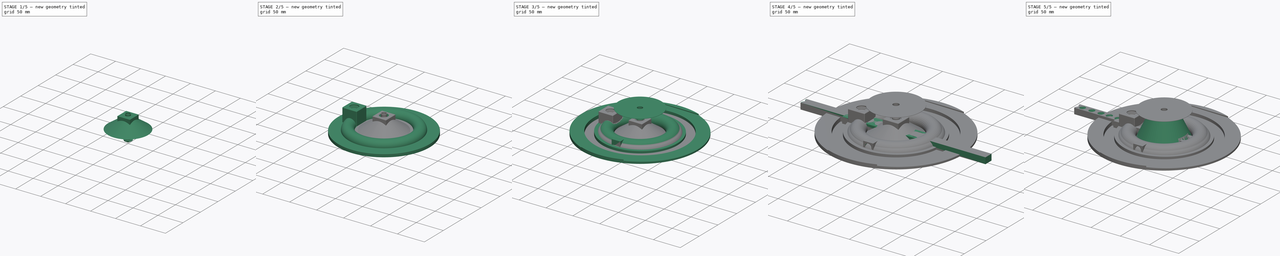
[diagram: build sequence overview — one tinted view per stage of 5, left to right]
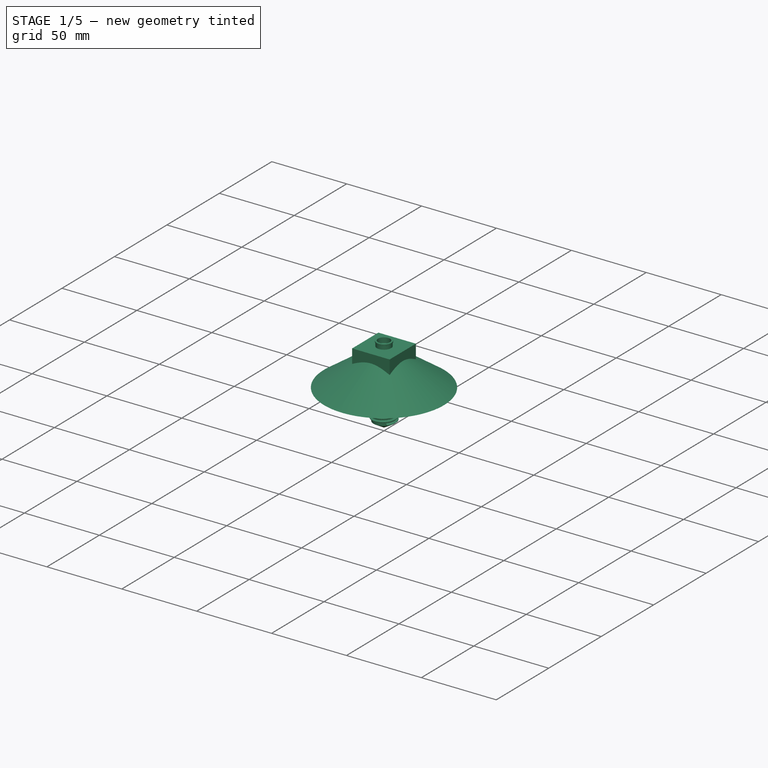
[diagram: stage 1 of 5 — iso view after this stage's code; geometry added in this stage tinted green]
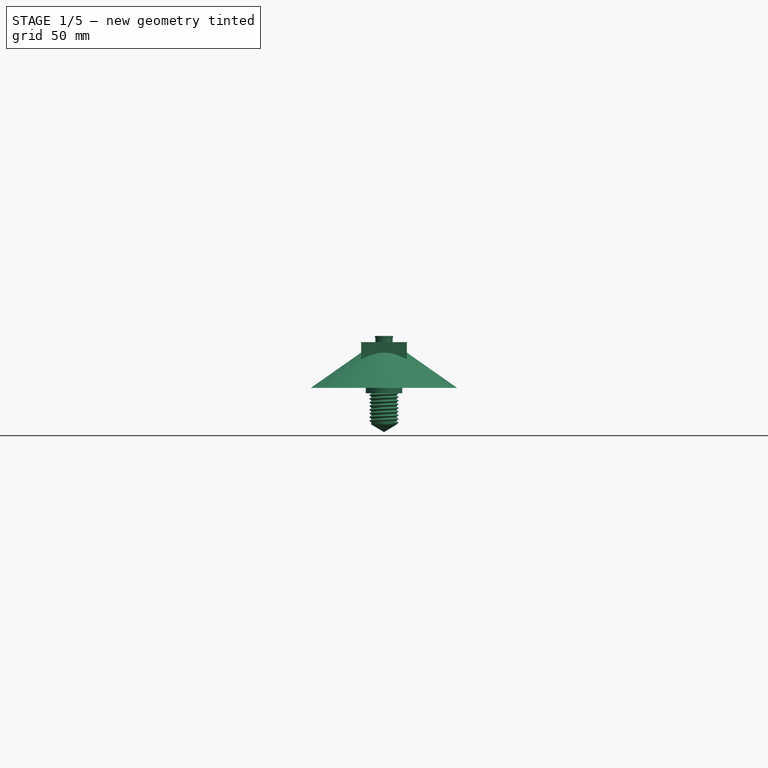
[diagram: stage 1 of 5 — front view after this stage's code; geometry added in this stage tinted green]
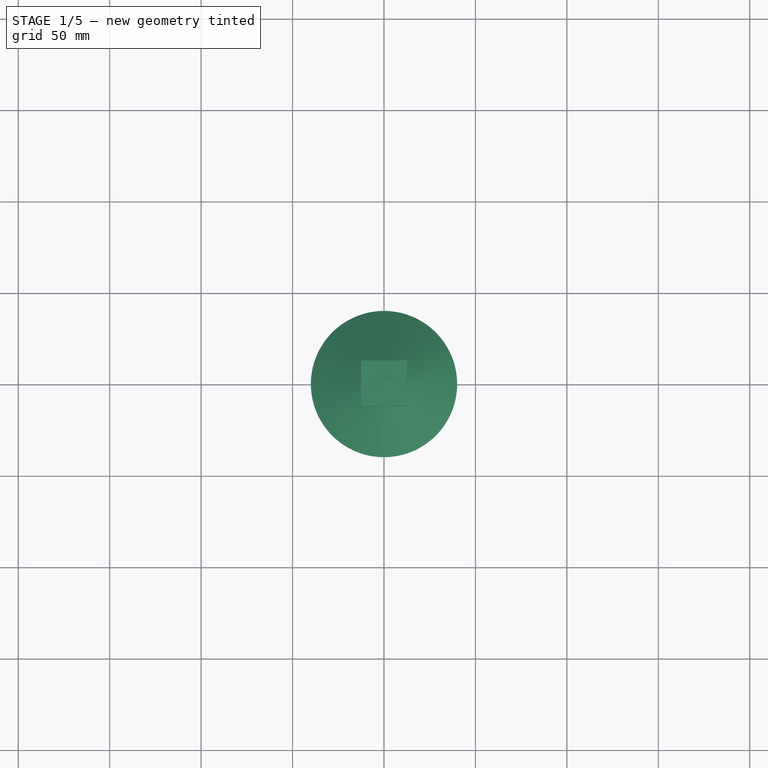
[diagram: stage 1 of 5 — top view after this stage's code; geometry added in this stage tinted green]
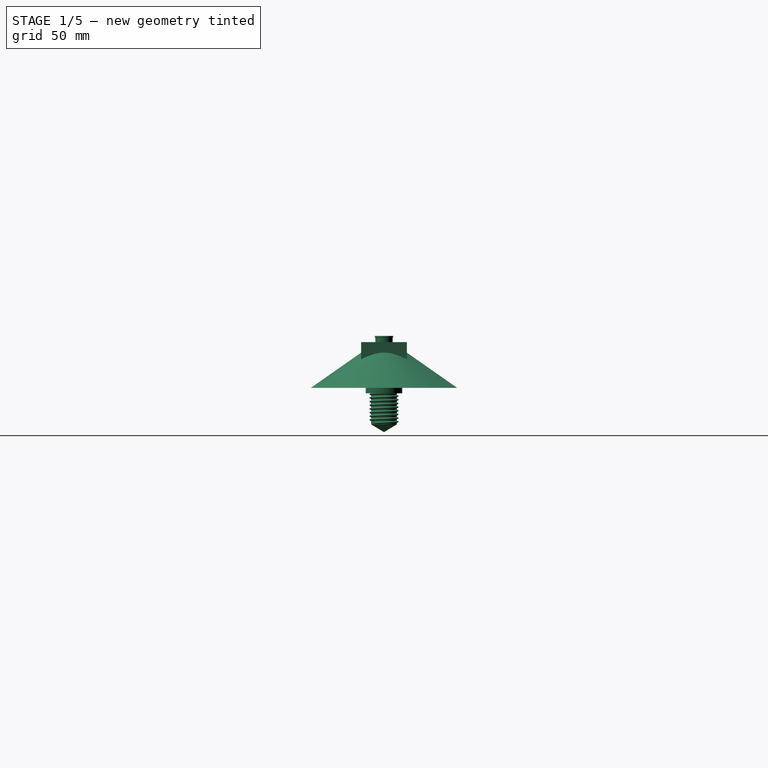
[diagram: stage 1 of 5 — right view after this stage's code; geometry added in this stage tinted green]
FCSTD DOCUMENT  (FreeCAD 2023.131R26244 +5365 (Git))
Label: Wasabi
License: All rights reserved
LicenseURL: http://en.wikipedia.org/wiki/All_rights_reserved
objects: Sketcher::SketchObject×62, PartDesign::Hole×25, PartDesign::Pad×15, PartDesign::Body×14, PartDesign::Pocket×13, PartDesign::Revolution×10, PartDesign::Fillet×3, PartDesign::PolarPattern×2, Spreadsheet::Sheet×1, PartDesign::Groove×1, PartDesign::Chamfer×1
note: 348 computed .brp shape members not serialized (recipe doc carries the construction recipe); baked Part::Feature solids carry a one-line shape summary decoded from their .brp

FEATURE [PartDesign::Body] Body010  label="1/4" OD Hose Insert"
  AutoGroupSolids = false
  ClaimAllChildren = false
  ExportMode = 0
  Group = -> [Sketch055,Revolution008,Sketch056,Hole021,Sketch057,Pocket010]
  InvalidShape = false
  Origin = -> Origin010
  Tip = -> Pocket010
  TreeRank = 66
  ValidateShape = true
  _ExportChildren = -> [Revolution008,Hole021,Pocket010]
  _GroupVersion = 1
FEATURE [Sketcher::SketchObject] Sketch058
  ArcFitTolerance = 1e-06
  AttachmentSupport = -> [XZ_Plane011]
  ExternalBSplineMaxDegree = 5
  ExternalBSplineTolerance = 0.0001
  FullyConstrained = true
  InternalTolerance = 1e-06
  InvalidShape = false
  MakeInternals = false
  MapMode = 5
  Placement = pos=(0,0,0) rot=(1,0,0;1.5708rad)
  Support = -> [XZ_Plane011]
  TreeRank = 254
  ValidateShape = true
  expr: Constraints[2] = <<Parameters>>.Resevoir_Width / 2
  sketch-geometry (4):
    g0: LineSegment StartX=0 StartY=0 StartZ=0 EndX=-40 EndY=0 EndZ=0
    g1: LineSegment StartX=-40 StartY=0 StartZ=0 EndX=-4.2963 EndY=25 EndZ=0
    g2: LineSegment StartX=-4.2963 StartY=25 StartZ=0 EndX=0 EndY=25 EndZ=0
    g3: LineSegment StartX=0 StartY=25 StartZ=0 EndX=0 EndY=0 EndZ=0
  constraints (11):
    c: PointOnObject(g0,g-1)
    c: Coincident(g1,g0)
    c: DistanceX(g0,g-1) = 40
    c: Coincident(g0,g-1)
    c: Angle(g0,g1) = 0.610865
    c: DistanceY(g0,g1) = 25
    c: Coincident(g2,g1)
    c: PointOnObject(g2,g-2)
    c: Horizontal(g2)
    c: Coincident(g3,g2)
    c: Coincident(g3,g0)
FEATURE [PartDesign::Revolution] Revolution009
  AddSubType = 0
  Angle = 360
  Axis = (0,2e-16,1)
  Base = (0,0,0)
  ClaimChildren = false
  Fit = 0
  FitJoin = 0
  InnerFit = 0
  InnerFitJoin = 0
  InvalidShape = false
  Linearize = true
  NewSolid = false
  Profile = -> Sketch058
  ReferenceAxis = -> Sketch058 [V_Axis]
  Suppress = false
  TreeRank = 255
  ValidateShape = true
  _ProfileBasedVersion = 1
FEATURE [PartDesign::Hole] Hole022
  AddSubType = 0
  BaseFeature = -> Revolution009
  ClaimChildren = false
  CustomThreadClearance = 0
  Depth = 20
  DepthType = 0
  Diameter = 14.038
  DrillForDepth = false
  DrillPoint = 1
  DrillPointAngle = 118
  Fit = 0
  FitJoin = 0
  HoleCutCountersinkAngle = 90
  HoleCutCustomValues = false
  HoleCutDepth = 0
  HoleCutDiameter = 14.14
  HoleCutType = 0
  InnerFit = 0
  InnerFitJoin = 0
  InvalidShape = false
  Linearize = true
  ModelThread = true
  NewSolid = false
  Profile = -> Revolution009 [Face1]
  Reversed = true
  Suppress = false
  Tapered = false
  TaperedAngle = 90
  ThreadClass = 0
  ThreadDepth = 20
  ThreadDepthType = 0
  ThreadDirection = 0
  ThreadFit = 0
  ThreadSize = 22
  ThreadType = 1
  Threaded = true
  TreeRank = 256
  UseCustomThreadClearance = false
  ValidateShape = true
  _ProfileBasedVersion = 1
  expr: Depth = <<Parameters>>.Hose_Barb_1_2_Thread_Length
FEATURE [Sketcher::SketchObject] Sketch059
  ArcFitTolerance = 1e-06
  AttachmentSupport = -> [XZ_Plane011]
  ExternalBSplineMaxDegree = 5
  ExternalBSplineTolerance = 0.0001
  FullyConstrained = true
  InternalTolerance = 1e-06
  InvalidShape = false
  MakeInternals = false
  MapMode = 5
  Placement = pos=(0,0,0) rot=(1,0,0;1.5708rad)
  Support = -> [XZ_Plane011]
  TreeRank = 258
  ValidateShape = true
  sketch-geometry (5):
    g0: LineSegment StartX=-12.5 StartY=0 StartZ=0 EndX=-12.5 EndY=25 EndZ=0
    g1: LineSegment StartX=-12.5 StartY=25 StartZ=0 EndX=12.5 EndY=25 EndZ=0
    g2: LineSegment StartX=12.5 StartY=25 StartZ=0 EndX=12.5 EndY=0 EndZ=0
    g3: LineSegment StartX=12.5 StartY=0 StartZ=0 EndX=-12.5 EndY=0 EndZ=0
    g4: GeomPoint [constr] X=0 Y=12.5 Z=0
  constraints (13):
    c: Coincident(g0,g1)
    c: Coincident(g1,g2)
    c: Coincident(g2,g3)
    c: Coincident(g3,g0)
    c: Horizontal(g1)
    c: Horizontal(g3)
    c: Vertical(g0)
    c: Vertical(g2)
    c: Symmetric(g1,g0,g4)
    c: PointOnObject(g4,g-2)
    c: Equal(g1,g2)
    c: DistanceX(g0,g1) = 25
    c: PointOnObject(g0,g-1)
FEATURE [PartDesign::Pad] Pad008
  AddSubType = 0
  AlongSketchNormal = false
  AutoTaperInnerAngle = true
  BaseFeature = -> Hole022
  CheckUpToFaceLimits = true
  ClaimChildren = false
  Direction = (0,-1,2e-16)
  Fit = 0
  FitJoin = 0
  InnerFit = 0
  InnerFitJoin = 0
  InvalidShape = false
  Length = 12.5
  Length2 = 12.5
  Linearize = true
  NewSolid = false
  Profile = -> Sketch059
  Suppress = false
  TaperInnerAngle = 0
  TaperInnerAngleRev = 0
  TreeRank = 259
  Type = 4
  ValidateShape = true
  _ProfileBasedVersion = 1
FEATURE [PartDesign::Body] Body011  label="1/2" OD Hose Insert - Wide Flange"
  AutoGroupSolids = false
  ClaimAllChildren = false
  ExportMode = 0
  Group = -> [Sketch058,Revolution009,Hole022,Sketch059,Pad008,Sketch060,Pocket011,Hole023,Fillet001]
  InvalidShape = false
  Origin = -> Origin011
  Tip = -> Fillet001
  TreeRank = 70
  ValidateShape = true
  _ExportChildren = -> [Revolution009,Hole022,Pad008,Pocket011,Hole023,Fillet001]
  _GroupVersion = 1
FEATURE [Sketcher::SketchObject] Sketch061
  ArcFitTolerance = 1e-06
  AttachmentSupport = -> [XY_Plane012]
  ExternalBSplineMaxDegree = 5
  ExternalBSplineTolerance = 0.0001
  FullyConstrained = true
  InternalTolerance = 1e-06
  InvalidShape = false
  MakeInternals = false
  MapMode = 5
  Support = -> [XY_Plane012]
  TreeRank = 274
  ValidateShape = true
  sketch-geometry (2):
    g0: Circle CenterX=0 CenterY=0 CenterZ=0 NormalX=0 NormalY=0 NormalZ=1 AngleXU=0 Radius=6.6
    g1: Circle CenterX=0 CenterY=0 CenterZ=0 NormalX=0 NormalY=0 NormalZ=1 AngleXU=0 Radius=5.125
  constraints (4):
    c: Coincident(g0,g-1)
    c: Diameter(g0) = 13.2
    c: Coincident(g1,g0)
    c: Diameter(g1) = 10.25
FEATURE [PartDesign::Pad] Pad009
  AddSubType = 0
  AlongSketchNormal = false
  AutoTaperInnerAngle = true
  CheckUpToFaceLimits = true
  ClaimChildren = false
  Direction = (0,0,1)
  Fit = 0
  FitJoin = 0
  InnerFit = 0
  InnerFitJoin = 0
  InvalidShape = false
  Length = 10
  Length2 = 100
  Linearize = true
  NewSolid = false
  Profile = -> Sketch061
  Suppress = false
  TaperInnerAngle = 0
  TaperInnerAngleRev = 0
  TreeRank = 275
  Type = 0
  ValidateShape = true
  _ProfileBasedVersion = 1
FEATURE [Sketcher::SketchObject] Sketch062
  ArcFitTolerance = 1e-06
  AttachmentSupport = -> [Pad009]
  ExternalBSplineMaxDegree = 5
  ExternalBSplineTolerance = 0.0001
  FullyConstrained = true
  InternalTolerance = 1e-06
  InvalidShape = false
  MakeInternals = false
  MapMode = 5
  Placement = pos=(0,0,10) rot=(0,0,1;0rad)
  Support = -> [Pad009]
  TreeRank = 276
  ValidateShape = true
  sketch-geometry (2):
    g0: Circle CenterX=0 CenterY=0 CenterZ=0 NormalX=0 NormalY=0 NormalZ=1 AngleXU=0 Radius=8
    g1: Circle CenterX=0 CenterY=0 CenterZ=0 NormalX=0 NormalY=0 NormalZ=1 AngleXU=0 Radius=4
  constraints (4):
    c: Coincident(g0,g-1)
    c: Diameter(g0) = 16
    c: Coincident(g1,g0)
    c: Diameter(g1) = 8
FEATURE [PartDesign::Pad] Pad010
  AddSubType = 0
  AlongSketchNormal = false
  AutoTaperInnerAngle = true
  BaseFeature = -> Pad009
  CheckUpToFaceLimits = true
  ClaimChildren = false
  Direction = (0,0,1)
  Fit = 0
  FitJoin = 0
  InnerFit = 0
  InnerFitJoin = 0
  InvalidShape = false
  Length = 1.9
  Length2 = 100
  Linearize = true
  NewSolid = false
  Profile = -> Sketch062
  Suppress = false
  TaperInnerAngle = 0
  TaperInnerAngleRev = 0
  TreeRank = 277
  Type = 0
  ValidateShape = true
  _ProfileBasedVersion = 1
FEATURE [Sketcher::SketchObject] Sketch063
  ArcFitTolerance = 1e-06
  AttachmentSupport = -> [Pad010]
  ExternalBSplineMaxDegree = 5
  ExternalBSplineTolerance = 0.0001
  FullyConstrained = true
  InternalTolerance = 1e-06
  InvalidShape = false
  MakeInternals = false
  MapMode = 5
  Placement = pos=(0,0,11.9) rot=(0,0,1;0rad)
  Support = -> [Pad010]
  TreeRank = 278
  ValidateShape = true
  sketch-geometry (2):
    g0: Circle CenterX=0 CenterY=0 CenterZ=0 NormalX=0 NormalY=0 NormalZ=1 AngleXU=0 Radius=4.75
    g1: Circle CenterX=0 CenterY=0 CenterZ=0 NormalX=0 NormalY=0 NormalZ=1 AngleXU=0 Radius=4
  constraints (4):
    c: Coincident(g0,g-1)
    c: Diameter(g0) = 9.5
    c: Coincident(g1,g0)
    c: Diameter(g1) = 8
FEATURE [PartDesign::Pad] Pad011
  AddSubType = 0
  AlongSketchNormal = false
  AutoTaperInnerAngle = true
  BaseFeature = -> Pad010
  CheckUpToFaceLimits = true
  ClaimChildren = false
  Direction = (0,0,1)
  Fit = 0
  FitJoin = 0
  InnerFit = 0
  InnerFitJoin = 0
  InvalidShape = false
  Length = 15.5
  Length2 = 100
  Linearize = true
  NewSolid = false
  Profile = -> Sketch063
  Suppress = false
  TaperInnerAngle = 0
  TaperInnerAngleRev = 0
  TreeRank = 279
  Type = 0
  ValidateShape = true
  _ProfileBasedVersion = 1
FEATURE [Sketcher::SketchObject] Sketch064
  ArcFitTolerance = 1e-06
  AttachmentSupport = -> [Pad011]
  ExternalBSplineMaxDegree = 5
  ExternalBSplineTolerance = 0.0001
  FullyConstrained = true
  InternalTolerance = 1e-06
  InvalidShape = false
  MakeInternals = false
  MapMode = 5
  Placement = pos=(0,0,27.4) rot=(0,0,1;0rad)
  Support = -> [Pad011]
  TreeRank = 280
  ValidateShape = true
  sketch-geometry (2):
    g0: Circle CenterX=0 CenterY=0 CenterZ=0 NormalX=0 NormalY=0 NormalZ=1 AngleXU=0 Radius=4
    g1: Circle CenterX=0 CenterY=0 CenterZ=0 NormalX=0 NormalY=0 NormalZ=1 AngleXU=0 Radius=5
  constraints (4):
    c: Coincident(g0,g-1)
    c: Diameter(g0) = 8
    c: Coincident(g1,g0)
    c: Diameter(g1) = 10
FEATURE [PartDesign::Pad] Pad012
  AddSubType = 0
  AlongSketchNormal = false
  AutoTaperInnerAngle = true
  BaseFeature = -> Pad011
  CheckUpToFaceLimits = true
  ClaimChildren = false
  Direction = (0,0,1)
  Fit = 0
  FitJoin = 0
  InnerFit = 0
  InnerFitJoin = 0
  InvalidShape = false
  Length = 1
  Length2 = 100
  Linearize = true
  NewSolid = false
  Profile = -> Sketch064
  Suppress = false
  TaperInnerAngle = 0
  TaperInnerAngleRev = 0
  TreeRank = 281
  Type = 0
  ValidateShape = true
  _ProfileBasedVersion = 1
FEATURE [PartDesign::Chamfer] Chamfer
  AddSubType = 0
  Angle = 45
  Base = -> Pad012 [Edge11]
  BaseFeature = -> Pad012
  ChamferType = 0
  FlipDirection = false
  InvalidShape = false
  NewSolid = false
  Size = 3.24
  Size2 = 1
  SupportTransform = false
  Suppress = false
  TreeRank = 282
  ValidateShape = true
FEATURE [PartDesign::Fillet] Fillet002
  AddSubType = 0
  Base = -> Chamfer [Edge14,Edge10,Edge12]
  BaseFeature = -> Chamfer
  InvalidShape = false
  NewSolid = false
  Radius = 0.2
  SupportTransform = false
  Suppress = false
  TreeRank = 283
  ValidateShape = true
FEATURE [Sketcher::SketchObject] Sketch065
  ArcFitTolerance = 1e-06
  AttachmentSupport = -> [XZ_Plane012]
  ExternalBSplineMaxDegree = 5
  ExternalBSplineTolerance = 0.0001
  FullyConstrained = false
  InternalTolerance = 1e-06
  InvalidShape = false
  MakeInternals = false
  MapMode = 5
  Placement = pos=(0,0,0) rot=(1,0,0;1.5708rad)
  Support = -> [XZ_Plane012]
  TreeRank = 284
  ValidateShape = true
  sketch-geometry (8):
    g0: LineSegment StartX=-6.6 StartY=0 StartZ=0 EndX=-17.8469 EndY=0 EndZ=0
    g1: LineSegment StartX=-17.8469 StartY=0 StartZ=0 EndX=-17.8469 EndY=18.5793 EndZ=0
    g2: LineSegment StartX=-17.8469 StartY=18.5793 StartZ=0 EndX=-6.6 EndY=18.5793 EndZ=0
    g3: LineSegment StartX=-6.6 StartY=18.5793 StartZ=0 EndX=-6.6 EndY=0 EndZ=0
    g4: LineSegment StartX=6.6 StartY=0 StartZ=0 EndX=16.9174 EndY=0 EndZ=0
    g5: LineSegment StartX=16.9174 StartY=0 StartZ=0 EndX=16.9174 EndY=19.4345 EndZ=0
    g6: LineSegment StartX=16.9174 StartY=19.4345 StartZ=0 EndX=6.6 EndY=19.4345 EndZ=0
    g7: LineSegment StartX=6.6 StartY=19.4345 StartZ=0 EndX=6.6 EndY=0 EndZ=0
  constraints (19):
    c: Coincident(g0,g1)
    c: Coincident(g1,g2)
    c: Coincident(g2,g3)
    c: Coincident(g3,g0)
    c: Horizontal(g0)
    c: Horizontal(g2)
    c: Vertical(g1)
    c: Vertical(g3)
    c: PointOnObject(g0,g-1)
    c: Coincident(g4,g5)
    c: Coincident(g5,g6)
    c: Coincident(g6,g7)
    c: Coincident(g7,g4)
    c: Horizontal(g4)
    c: Horizontal(g6)
    c: Vertical(g5)
    c: Vertical(g7)
    c: DistanceX(g0,g4) = 13.2
    c: Symmetric(g0,g4,g-1)
FEATURE [PartDesign::Pocket] Pocket012
  AddSubType = 1
  AutoTaperInnerAngle = true
  BaseFeature = -> Fillet002
  CheckUpToFaceLimits = true
  ClaimChildren = false
  Fit = 0
  FitJoin = 0
  InnerFit = 0
  InnerFitJoin = 0
  InvalidShape = false
  Length = 100
  Length2 = 100
  Linearize = true
  NewSolid = false
  Profile = -> Sketch065
  Suppress = false
  TaperInnerAngle = 0
  TaperInnerAngleRev = 0
  TreeRank = 285
  Type = 4
  ValidateShape = true
  _ProfileBasedVersion = 1
  _Version = 1
FEATURE [PartDesign::Body] Body012  label="3/8" OD Pump Insert"
  AutoGroupSolids = false
  ClaimAllChildren = false
  ExportMode = 0
  Group = -> [Sketch061,Pad009,Sketch062,Pad010,Sketch063,Pad011,Sketch064,Pad012,Chamfer,Fillet002,Sketch065,Pocket012]
  InvalidShape = false
  Origin = -> Origin012
  Tip = -> Pocket012
  TreeRank = 273
  ValidateShape = true
  _ExportChildren = -> [Pad009,Pad010,Pad011,Pad012,Chamfer,Fillet002,Pocket012]
  _GroupVersion = 1
FEATURE [Sketcher::SketchObject] Sketch066
  ArcFitTolerance = 1e-06
  AttachmentSupport = -> [XY_Plane013]
  ExternalBSplineMaxDegree = 5
  ExternalBSplineTolerance = 0.0001
  FullyConstrained = true
  InternalTolerance = 1e-06
  InvalidShape = false
  MakeInternals = false
  MapMode = 5
  Support = -> [XY_Plane013]
  TreeRank = 296
  ValidateShape = true
  sketch-geometry (1):
    g0: Circle CenterX=0 CenterY=0 CenterZ=0 NormalX=0 NormalY=0 NormalZ=1 AngleXU=0 Radius=10
  constraints (2):
    c: Coincident(g0,g-1)
    c: Diameter(g0) = 20
FEATURE [PartDesign::Pad] Pad013
  AddSubType = 0
  AlongSketchNormal = false
  AutoTaperInnerAngle = true
  CheckUpToFaceLimits = true
  ClaimChildren = false
  Direction = (0,0,1)
  Fit = 0
  FitJoin = 0
  InnerFit = 0
  InnerFitJoin = 0
  InvalidShape = false
  Length = 3
  Length2 = 100
  Linearize = true
  NewSolid = false
  Profile = -> Sketch066
  Reversed = true
  Suppress = false
  TaperInnerAngle = 0
  TaperInnerAngleRev = 0
  TreeRank = 297
  Type = 0
  ValidateShape = true
  _ProfileBasedVersion = 1
FEATURE [Sketcher::SketchObject] Sketch067
  ArcFitTolerance = 1e-06
  AttachmentSupport = -> [Pad013]
  ExternalBSplineMaxDegree = 5
  ExternalBSplineTolerance = 0.0001
  FullyConstrained = false
  InternalTolerance = 1e-06
  InvalidShape = false
  MakeInternals = false
  MapMode = 5
  Placement = pos=(0,0,-3) rot=(1,0,0;3.14159rad)
  Support = -> [Pad013]
  TreeRank = 298
  ValidateShape = true
  sketch-geometry (1):
    g0: Circle CenterX=0 CenterY=0 CenterZ=0 NormalX=0 NormalY=0 NormalZ=1 AngleXU=0 Radius=3.34117
  constraints (1):
    c: Coincident(g0,g-1)
FEATURE [PartDesign::Hole] Hole024
  AddSubType = 0
  BaseFeature = -> Pad013
  ClaimChildren = false
  CustomThreadClearance = 0
  Depth = 10
  DepthType = 0
  Diameter = 8.532
  DrillForDepth = false
  DrillPoint = 0
  DrillPointAngle = 118
  Fit = 0
  FitJoin = 0
  HoleCutCountersinkAngle = 90
  HoleCutCustomValues = false
  HoleCutDepth = 0
  HoleCutDiameter = 0
  HoleCutType = 0
  InnerFit = 0
  InnerFitJoin = 0
  InvalidShape = false
  Linearize = true
  ModelThread = true
  NewSolid = false
  Profile = -> Sketch067
  Reversed = true
  Suppress = false
  Tapered = false
  TaperedAngle = 90
  ThreadClass = 0
  ThreadDepth = 10
  ThreadDepthType = 0
  ThreadDirection = 0
  ThreadFit = 0
  ThreadSize = 18
  ThreadType = 1
  Threaded = true
  TreeRank = 299
  UseCustomThreadClearance = false
  ValidateShape = true
  _ProfileBasedVersion = 1
FEATURE [Sketcher::SketchObject] Sketch068
  ArcFitTolerance = 1e-06
  AttachmentSupport = -> [Hole024]
  ExternalBSplineMaxDegree = 5
  ExternalBSplineTolerance = 0.0001
  FullyConstrained = true
  InternalTolerance = 1e-06
  InvalidShape = false
  MakeInternals = false
  MapMode = 5
  Support = -> [Hole024]
  TreeRank = 300
  ValidateShape = true
  sketch-geometry (1):
    g0: Circle CenterX=0 CenterY=0 CenterZ=0 NormalX=0 NormalY=0 NormalZ=1 AngleXU=0 Radius=4
  constraints (2):
    c: Coincident(g0,g-1)
    c: Diameter(g0) = 8
FEATURE [PartDesign::Pad] Pad014
  AddSubType = 0
  AlongSketchNormal = false
  AutoTaperInnerAngle = true
  BaseFeature = -> Hole024
  CheckUpToFaceLimits = true
  ClaimChildren = false
  Direction = (0,0,1)
  Fit = 0
  FitJoin = 0
  InnerFit = 0
  InnerFitJoin = 0
  InvalidShape = false
  Length = 3
  Length2 = 100
  Linearize = true
  NewSolid = false
  Profile = -> Sketch068
  Suppress = false
  TaperInnerAngle = 0
  TaperInnerAngleRev = 0
  TreeRank = 301
  Type = 0
  ValidateShape = true
  _ProfileBasedVersion = 1
FEATURE [Sketcher::SketchObject] Sketch069
  ArcFitTolerance = 1e-06
  AttachmentSupport = -> [Pad014]
  ExternalBSplineMaxDegree = 5
  ExternalBSplineTolerance = 0.0001
  FullyConstrained = true
  InternalTolerance = 1e-06
  InvalidShape = false
  MakeInternals = false
  MapMode = 5
  Placement = pos=(0,0,3) rot=(0,0,1;0rad)
  Support = -> [Pad014]
  TreeRank = 302
  ValidateShape = true
  sketch-geometry (1):
    g0: Circle CenterX=0 CenterY=0 CenterZ=0 NormalX=0 NormalY=0 NormalZ=1 AngleXU=0 Radius=2
  constraints (2):
    c: Coincident(g0,g-1)
    c: Diameter(g0) = 4
FEATURE [PartDesign::Pocket] Pocket013
  AddSubType = 1
  AutoTaperInnerAngle = true
  BaseFeature = -> Pad014
  CheckUpToFaceLimits = true
  ClaimChildren = false
  Fit = 0
  FitJoin = 0
  InnerFit = 0
  InnerFitJoin = 0
  InvalidShape = false
  Length = 100
  Length2 = 100
  Linearize = true
  NewSolid = false
  Profile = -> Sketch069
  Suppress = false
  TaperInnerAngle = 0
  TaperInnerAngleRev = 0
  TreeRank = 303
  Type = 4
  ValidateShape = true
  _ProfileBasedVersion = 1
  _Version = 1
FEATURE [PartDesign::Body] Body013  label="1/2" ID Quick Disconnect - Bottom"
  AutoGroupSolids = false
  ClaimAllChildren = false
  ExportMode = 0
  Group = -> [Sketch066,Pad013,Sketch067,Hole024,Sketch068,Pad014,Sketch069,Pocket013]
  InvalidShape = false
  Origin = -> Origin013
  Tip = -> Pocket013
  TreeRank = 295
  ValidateShape = true
  _ExportChildren = -> [Pad013,Hole024,Pad014,Pocket013]
  _GroupVersion = 1
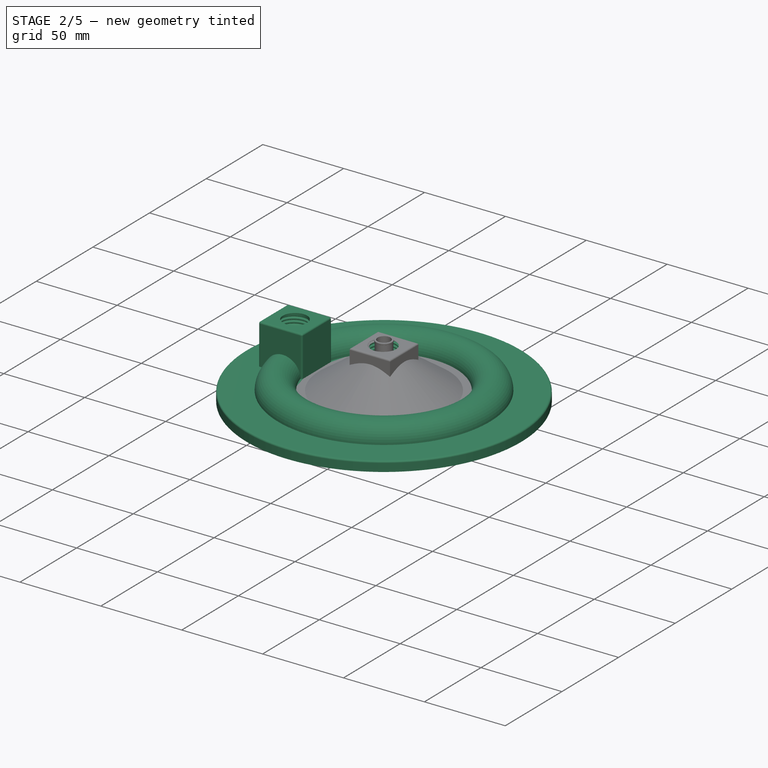
[diagram: stage 2 of 5 — iso view after this stage's code; geometry added in this stage tinted green]
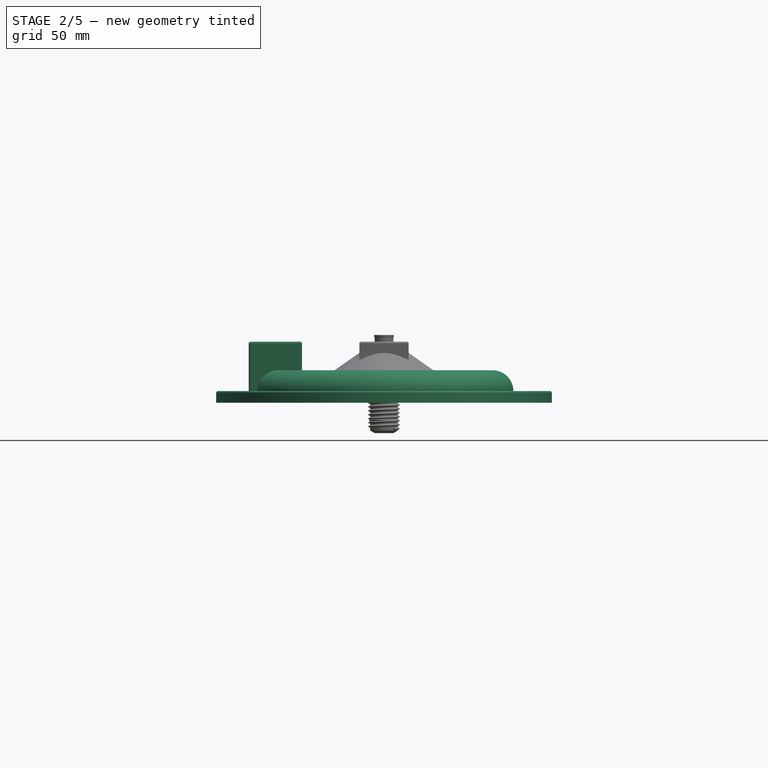
[diagram: stage 2 of 5 — front view after this stage's code; geometry added in this stage tinted green]
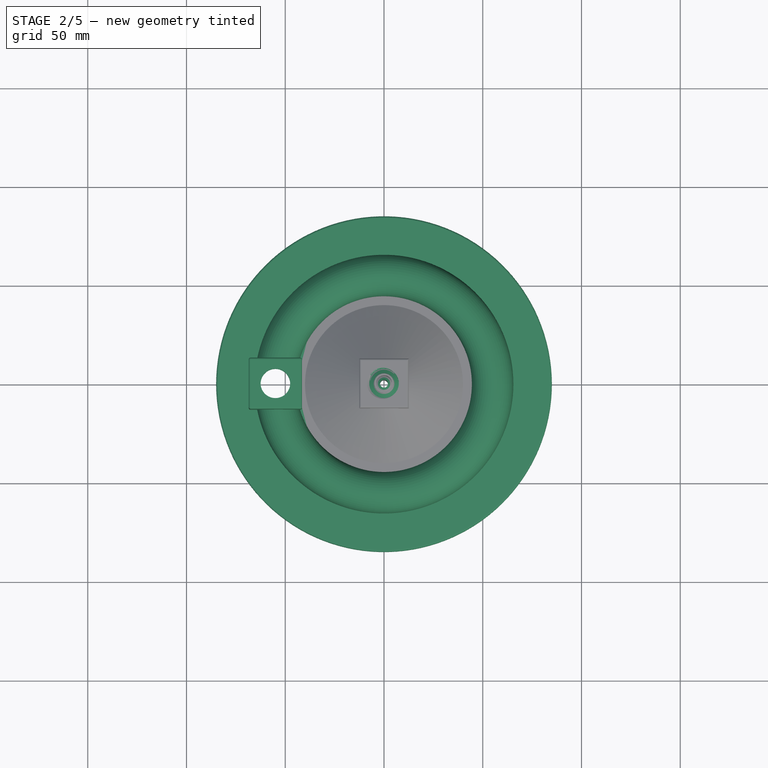
[diagram: stage 2 of 5 — top view after this stage's code; geometry added in this stage tinted green]
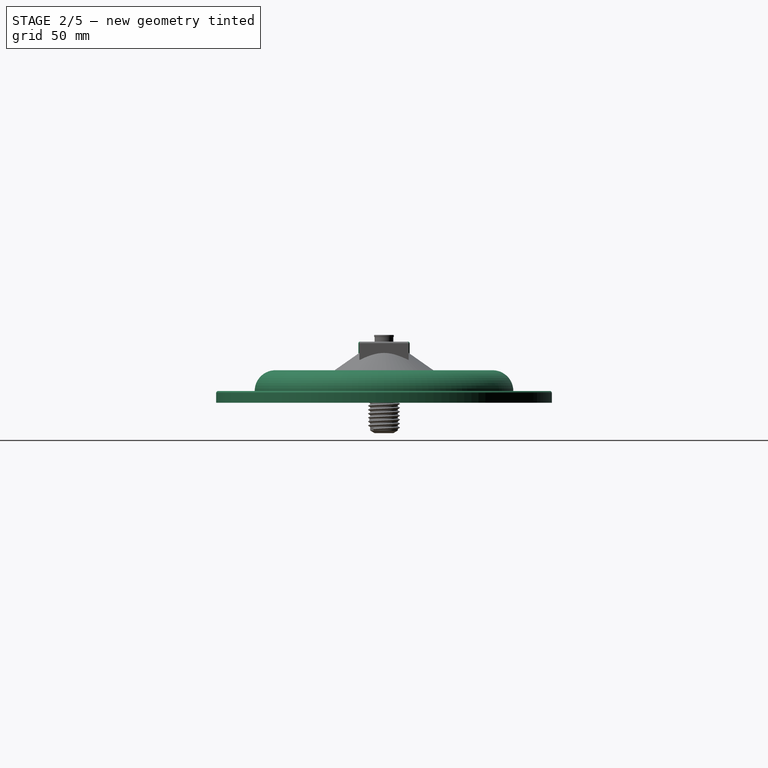
[diagram: stage 2 of 5 — right view after this stage's code; geometry added in this stage tinted green]
FEATURE [PartDesign::Body] Body007  label="Return"
  AutoGroupSolids = false
  ClaimAllChildren = false
  ExportMode = 0
  Group = -> [Sketch042,Pad004,Sketch043,Revolution005,Sketch044,Pad005,Sketch045,Hole018,Sketch046,Groove,Sketch047,Pocket008]
  InvalidShape = false
  Origin = -> Origin007
  Tip = -> Pocket008
  TreeRank = 193
  ValidateShape = true
  _ExportChildren = -> [Pad004,Revolution005,Pad005,Hole018,Groove,Pocket008]
  _GroupVersion = 1
FEATURE [Sketcher::SketchObject] Sketch048
  ArcFitTolerance = 1e-06
  AttachmentSupport = -> [XY_Plane008]
  ExternalBSplineMaxDegree = 5
  ExternalBSplineTolerance = 0.0001
  FullyConstrained = true
  InternalTolerance = 1e-06
  InvalidShape = false
  MakeInternals = false
  MapMode = 5
  Support = -> [XY_Plane008]
  TreeRank = 194
  ValidateShape = true
  expr: Constraints[1] = <<Parameters>>.Return_Inner_Diameter
  expr: Constraints[3] = <<Parameters>>.Return_Inner_Diameter + <<Parameters>>.Return_Trough_Diameter
  expr: Constraints[5] = <<Parameters>>.Return_Through_Hole_Diameter
  expr: Constraints[7] = <<Parameters>>.Return_Inner_Diameter + <<Parameters>>.Return_Trough_Diameter + <<Parameters>>.Return_Flange_Diameter
  sketch-geometry (4):
    g0: Circle CenterX=0 CenterY=0 CenterZ=0 NormalX=0 NormalY=0 NormalZ=1 AngleXU=0 Radius=47.5
    g1: Circle CenterX=0 CenterY=0 CenterZ=0 NormalX=0 NormalY=0 NormalZ=1 AngleXU=0 Radius=62.5
    g2: Circle CenterX=0 CenterY=0 CenterZ=0 NormalX=0 NormalY=0 NormalZ=1 AngleXU=0 Radius=8.25
    g3: Circle CenterX=0 CenterY=0 CenterZ=0 NormalX=0 NormalY=0 NormalZ=1 AngleXU=0 Radius=85
  constraints (8):
    c: Coincident(g0,g-1)
    c: Diameter(g0) = 95
    c: Coincident(g1,g0)
    c: Diameter(g1) = 125
    c: Coincident(g2,g0)
    c: Diameter(g2) = 16.5
    c: Coincident(g3,g0)
    c: Diameter(g3) = 170
FEATURE [PartDesign::Pad] Pad006
  AddSubType = 0
  AlongSketchNormal = false
  AutoTaperInnerAngle = true
  CheckUpToFaceLimits = true
  ClaimChildren = false
  Direction = (0,0,1)
  Fit = 0
  FitJoin = 0
  InnerFit = 0
  InnerFitJoin = 0
  InvalidShape = false
  Length = 6
  Length2 = 100
  Linearize = true
  NewSolid = false
  Profile = -> Sketch048
  Reversed = true
  Suppress = false
  TaperInnerAngle = 0
  TaperInnerAngleRev = 0
  TreeRank = 195
  Type = 0
  ValidateShape = true
  _ProfileBasedVersion = 1
  expr: Length = <<Parameters>>.Thickness * 2
FEATURE [Sketcher::SketchObject] Sketch049
  ArcFitTolerance = 1e-06
  AttachmentSupport = -> [XZ_Plane008]
  ExternalBSplineMaxDegree = 5
  ExternalBSplineTolerance = 0.0001
  FullyConstrained = true
  InternalTolerance = 1e-06
  InvalidShape = false
  MakeInternals = false
  MapMode = 5
  Placement = pos=(0,0,0) rot=(1,0,0;1.5708rad)
  Support = -> [XZ_Plane008]
  TreeRank = 207
  ValidateShape = true
  expr: Constraints[12] = <<Parameters>>.Thickness
  expr: Constraints[3] = <<Parameters>>.Return_Trough_Diameter / 4
  expr: Constraints[4] = <<Parameters>>.Return_Inner_Diameter / 2
  sketch-geometry (4):
    g0: ArcOfCircle CenterX=-55 CenterY=0 CenterZ=0 NormalX=0 NormalY=0 NormalZ=1 AngleXU=0 Radius=7.5 StartAngle=-4.88e-14 EndAngle=3.14159
    g1: ArcOfCircle CenterX=-55 CenterY=0 CenterZ=0 NormalX=0 NormalY=0 NormalZ=1 AngleXU=0 Radius=10.5 StartAngle=-5.15e-14 EndAngle=3.14159
    g2: LineSegment StartX=-65.5 StartY=0 StartZ=0 EndX=-62.5 EndY=0 EndZ=0
    g3: LineSegment StartX=-47.5 StartY=0 StartZ=0 EndX=-44.5 EndY=0 EndZ=0
  constraints (13):
    c: PointOnObject(g0,g-1)
    c: PointOnObject(g0,g-1)
    c: PointOnObject(g0,g-1)
    c: Radius(g0) = 7.5
    c: DistanceX(g0,g-1) = 47.5
    c: Coincident(g1,g0)
    c: PointOnObject(g1,g-1)
    c: PointOnObject(g1,g-1)
    c: Coincident(g2,g1)
    c: Coincident(g2,g0)
    c: Coincident(g3,g0)
    c: Coincident(g3,g1)
    c: DistanceX(g0,g1) = 3
FEATURE [PartDesign::Revolution] Revolution006
  AddSubType = 0
  Angle = 360
  Axis = (0,-2e-16,1)
  Base = (0,0,0)
  BaseFeature = -> Pad006
  ClaimChildren = false
  Fit = 0
  FitJoin = 0
  InnerFit = 0
  InnerFitJoin = 0
  InvalidShape = false
  Linearize = true
  NewSolid = false
  Profile = -> Sketch049
  ReferenceAxis = -> Sketch049 [V_Axis]
  Suppress = false
  TreeRank = 208
  ValidateShape = true
  _ProfileBasedVersion = 1
FEATURE [Sketcher::SketchObject] Sketch050
  ArcFitTolerance = 1e-06
  AttachmentSupport = -> [XZ_Plane008]
  ExternalBSplineMaxDegree = 5
  ExternalBSplineTolerance = 0.0001
  FullyConstrained = true
  InternalTolerance = 1e-06
  InvalidShape = false
  MakeInternals = false
  MapMode = 5
  Placement = pos=(0,0,0) rot=(1,0,0;1.5708rad)
  Support = -> [XZ_Plane008]
  TreeRank = 209
  ValidateShape = true
  expr: Constraints[15] = <<Parameters>>.Thickness * 2
  expr: Constraints[6] = <<Parameters>>.Return_Trough_Diameter / 2 + <<Parameters>>.Thickness * 4
  expr: Constraints[7] = <<Parameters>>.Hose_Barb_1_2_Thread_Length + 5
  expr: Constraints[9] = <<Parameters>>.Return_Inner_Diameter / 2 - <<Parameters>>.Thickness * 2
  sketch-geometry (6):
    g0: LineSegment StartX=-41.5 StartY=0 StartZ=0 EndX=-41.5 EndY=25 EndZ=0
    g1: LineSegment StartX=-41.5 StartY=25 StartZ=0 EndX=-68.5 EndY=25 EndZ=0
    g2: LineSegment StartX=-68.5 StartY=25 StartZ=0 EndX=-68.5 EndY=0 EndZ=0
    g3: LineSegment StartX=-68.5 StartY=0 StartZ=0 EndX=-62.5 EndY=0 EndZ=0
    g4: LineSegment StartX=-41.5 StartY=0 StartZ=0 EndX=-47.5 EndY=0 EndZ=0
    g5: ArcOfCircle CenterX=-55 CenterY=0 CenterZ=0 NormalX=0 NormalY=0 NormalZ=1 AngleXU=0 Radius=7.5 StartAngle=0 EndAngle=3.14159
  constraints (19):
    c: Coincident(g0,g1)
    c: Coincident(g1,g2)
    c: Horizontal(g1)
    c: Vertical(g0)
    c: Vertical(g2)
    c: PointOnObject(g2,g-1)
    c: DistanceX(g2,g0) = 27
    c: DistanceY(g0,g0) = 25
    c: PointOnObject(g0,g-1)
    c: DistanceX(g0,g-1) = 41.5
    c: Coincident(g3,g2)
    c: Horizontal(g3)
    c: Coincident(g4,g0)
    c: Horizontal(g4)
    c: Equal(g3,g4)
    c: DistanceX(g4,g0) = 6
    c: PointOnObject(g5,g-1)
    c: Coincident(g5,g3)
    c: Coincident(g5,g4)
FEATURE [PartDesign::Pad] Pad007
  AddSubType = 0
  AlongSketchNormal = false
  AutoTaperInnerAngle = true
  BaseFeature = -> Revolution006
  CheckUpToFaceLimits = true
  ClaimChildren = false
  Direction = (0,-1,-2e-16)
  Fit = 0
  FitJoin = 0
  InnerFit = 0
  InnerFitJoin = 0
  InvalidShape = false
  Length = 13
  Length2 = 13
  Linearize = true
  NewSolid = false
  Profile = -> Sketch050
  Suppress = false
  TaperInnerAngle = 0
  TaperInnerAngleRev = 0
  TreeRank = 210
  Type = 4
  ValidateShape = true
  _ProfileBasedVersion = 1
  expr: Length = (<<Parameters>>.Return_Trough_Diameter / 2 + <<Parameters>>.Thickness * 2 + 5) / 2
  expr: Length2 = (<<Parameters>>.Return_Trough_Diameter / 2 + <<Parameters>>.Thickness * 2 + 5) / 2
FEATURE [Sketcher::SketchObject] Sketch051
  ArcFitTolerance = 1e-06
  AttachmentSupport = -> [XY_Plane008]
  ExternalBSplineMaxDegree = 5
  ExternalBSplineTolerance = 0.0001
  FullyConstrained = true
  InternalTolerance = 1e-06
  InvalidShape = false
  MakeInternals = false
  MapMode = 5
  Support = -> [XY_Plane008]
  TreeRank = 211
  ValidateShape = true
  expr: Constraints[1] = <<Parameters>>.Return_Inner_Diameter / 2 + <<Parameters>>.Return_Trough_Diameter / 4
  sketch-geometry (1):
    g0: Circle CenterX=-55 CenterY=0 CenterZ=0 NormalX=0 NormalY=0 NormalZ=1 AngleXU=0 Radius=5
  constraints (3):
    c: PointOnObject(g0,g-1)
    c: DistanceX(g0,g-1) = 55
    c: Diameter(g0) = 10
FEATURE [PartDesign::Hole] Hole019
  AddSubType = 1
  BaseFeature = -> Pad007
  ClaimChildren = false
  CustomThreadClearance = 1
  Depth = 25
  DepthType = 0
  Diameter = 15
  DrillForDepth = false
  DrillPoint = 1
  DrillPointAngle = 118
  Fit = 0
  FitJoin = 0
  HoleCutCountersinkAngle = 90
  HoleCutCustomValues = false
  HoleCutDepth = 0
  HoleCutDiameter = 15.1
  HoleCutType = 0
  InnerFit = 0
  InnerFitJoin = 0
  InvalidShape = false
  Linearize = true
  ModelThread = true
  NewSolid = false
  Profile = -> Sketch051
  Reversed = true
  Suppress = false
  Tapered = false
  TaperedAngle = 90
  ThreadClass = 0
  ThreadDepth = 25
  ThreadDepthType = 0
  ThreadDirection = 0
  ThreadFit = 0
  ThreadSize = 22
  ThreadType = 1
  Threaded = true
  TreeRank = 212
  UseCustomThreadClearance = true
  ValidateShape = true
  _ProfileBasedVersion = 1
  expr: CustomThreadClearance = <<Parameters>>.Hose_Barb_1_2_Thread_Clearance
FEATURE [PartDesign::Fillet] Fillet
  AddSubType = 0
  Base = -> Hole019 [Edge17,Edge29,Edge10,Edge14,Edge15,Edge16,Edge11,Edge9,Edge2]
  BaseFeature = -> Hole019
  InvalidShape = false
  NewSolid = false
  Radius = 1
  SupportTransform = false
  Suppress = false
  TreeRank = 213
  ValidateShape = true
FEATURE [PartDesign::Body] Body008  label="Return Single Piece"
  AutoGroupSolids = false
  ClaimAllChildren = false
  ExportMode = 0
  Group = -> [Sketch048,Pad006,Sketch049,Revolution006,Sketch050,Pad007,Sketch051,Hole019,Fillet]
  InvalidShape = false
  Origin = -> Origin008
  Tip = -> Fillet
  TreeRank = 206
  ValidateShape = true
  _ExportChildren = -> [Pad006,Revolution006,Pad007,Hole019,Fillet]
  _GroupVersion = 1
FEATURE [Sketcher::SketchObject] Sketch052
  ArcFitTolerance = 1e-06
  AttachmentSupport = -> [XZ_Plane009]
  ExternalBSplineMaxDegree = 5
  ExternalBSplineTolerance = 0.0001
  FullyConstrained = true
  InternalTolerance = 1e-06
  InvalidShape = false
  MakeInternals = false
  MapMode = 5
  Placement = pos=(0,0,0) rot=(1,0,0;1.5708rad)
  Support = -> [XZ_Plane009]
  TreeRank = 224
  ValidateShape = true
  sketch-geometry (6):
    g0: LineSegment StartX=-5.25 StartY=0 StartZ=0 EndX=-5.25 EndY=-15.5 EndZ=0
    g1: LineSegment StartX=-5.25 StartY=-15.5 StartZ=0 EndX=-6.75 EndY=-15.5 EndZ=0
    g2: LineSegment StartX=-6.75 StartY=-14 StartZ=0 EndX=-6.75 EndY=-2 EndZ=0
    g3: ArcOfCircle CenterX=-6.75 CenterY=-14.75 CenterZ=0 NormalX=0 NormalY=0 NormalZ=1 AngleXU=0 Radius=0.75 StartAngle=1.5708 EndAngle=4.71239
    g4: LineSegment StartX=-6.75 StartY=-2 StartZ=0 EndX=-10.25 EndY=0 EndZ=0
    g5: LineSegment StartX=-10.25 StartY=0 StartZ=0 EndX=-5.25 EndY=0 EndZ=0
  constraints (19):
    c: Coincident(g0,g1)
    c: Horizontal(g1)
    c: Vertical(g0)
    c: Vertical(g2)
    c: DistanceX(g2,g0) = 1.5
    c: DistanceX(g2,g-1) = 6.75
    c: Coincident(g3,g1)
    c: PointOnObject(g3,g2)
    c: DistanceY(g1,g3) = 1.5
    c: Coincident(g2,g3)
    c: PointOnObject(g4,g-1)
    c: Coincident(g5,g4)
    c: Horizontal(g5)
    c: Coincident(g0,g5)
    c: Coincident(g2,g4)
    c: DistanceY(g2,g2) = 12
    c: DistanceY(g2,g0) = 2
    c: DistanceX(g4,g0) = 5
    c: DistanceX(g2,g1) = 0
FEATURE [PartDesign::Revolution] Revolution007
  AddSubType = 0
  Angle = 360
  Axis = (0,-2e-16,1)
  Base = (0,0,0)
  ClaimChildren = false
  Fit = 0
  FitJoin = 0
  InnerFit = 0
  InnerFitJoin = 0
  InvalidShape = false
  Linearize = true
  NewSolid = false
  Profile = -> Sketch052
  ReferenceAxis = -> Sketch052 [V_Axis]
  Suppress = false
  TreeRank = 225
  ValidateShape = true
  _ProfileBasedVersion = 1
FEATURE [Sketcher::SketchObject] Sketch053
  ArcFitTolerance = 1e-06
  AttachmentSupport = -> [Revolution007]
  ExternalBSplineMaxDegree = 5
  ExternalBSplineTolerance = 0.0001
  FullyConstrained = false
  InternalTolerance = 1e-06
  InvalidShape = false
  MakeInternals = false
  MapMode = 5
  Support = -> [Revolution007]
  TreeRank = 226
  ValidateShape = true
  sketch-geometry (1):
    g0: Circle CenterX=0 CenterY=0 CenterZ=0 NormalX=0 NormalY=0 NormalZ=1 AngleXU=0 Radius=1.60001
  constraints (1):
    c: Coincident(g0,g-1)
FEATURE [PartDesign::Hole] Hole020
  AddSubType = 0
  BaseFeature = -> Revolution007
  ClaimChildren = false
  CustomThreadClearance = 0
  Depth = 15
  DepthType = 0
  Diameter = 14.038
  DrillForDepth = false
  DrillPoint = 1
  DrillPointAngle = 118
  Fit = 0
  FitJoin = 0
  HoleCutCountersinkAngle = 90
  HoleCutCustomValues = false
  HoleCutDepth = 0
  HoleCutDiameter = 14.14
  HoleCutType = 0
  InnerFit = 0
  InnerFitJoin = 0
  InvalidShape = false
  Linearize = true
  ModelThread = true
  NewSolid = false
  Profile = -> Sketch053
  Reversed = true
  Suppress = false
  Tapered = false
  TaperedAngle = 90
  ThreadClass = 0
  ThreadDepth = 15
  ThreadDepthType = 0
  ThreadDirection = 0
  ThreadFit = 0
  ThreadSize = 22
  ThreadType = 1
  Threaded = true
  TreeRank = 227
  UseCustomThreadClearance = false
  ValidateShape = true
  _ProfileBasedVersion = 1
FEATURE [Sketcher::SketchObject] Sketch054
  ArcFitTolerance = 1e-06
  AttachmentSupport = -> [Hole020]
  ExternalBSplineMaxDegree = 5
  ExternalBSplineTolerance = 0.0001
  FullyConstrained = true
  InternalTolerance = 1e-06
  InvalidShape = false
  MakeInternals = false
  MapMode = 5
  Placement = pos=(0,0,0) rot=(1,0,0;3.14159rad)
  Support = -> [Hole020]
  TreeRank = 228
  ValidateShape = true
  sketch-geometry (1):
    g0: Circle CenterX=0 CenterY=0 CenterZ=0 NormalX=0 NormalY=0 NormalZ=1 AngleXU=0 Radius=5.25
  constraints (2):
    c: Coincident(g0,g-1)
    c: Diameter(g0) = 10.5
FEATURE [PartDesign::Pocket] Pocket009
  AddSubType = 1
  AutoTaperInnerAngle = true
  BaseFeature = -> Hole020
  CheckUpToFaceLimits = true
  ClaimChildren = false
  Fit = 0
  FitJoin = 0
  InnerFit = 0
  InnerFitJoin = 0
  InvalidShape = false
  Length = 100
  Length2 = 100
  Linearize = true
  NewSolid = false
  Profile = -> Sketch054
  Suppress = false
  TaperInnerAngle = 0
  TaperInnerAngleRev = 0
  TreeRank = 229
  Type = 4
  ValidateShape = true
  _ProfileBasedVersion = 1
  _Version = 1
FEATURE [PartDesign::Body] Body009  label="1/2" OD Hose Insert"
  AutoGroupSolids = false
  ClaimAllChildren = false
  ExportMode = 0
  Group = -> [Sketch052,Revolution007,Sketch053,Hole020,Sketch054,Pocket009]
  InvalidShape = false
  Origin = -> Origin009
  Tip = -> Pocket009
  TreeRank = 71
  ValidateShape = true
  _ExportChildren = -> [Revolution007,Hole020,Pocket009]
  _GroupVersion = 1
FEATURE [Sketcher::SketchObject] Sketch055
  ArcFitTolerance = 1e-06
  AttachmentSupport = -> [XZ_Plane010]
  ExternalBSplineMaxDegree = 5
  ExternalBSplineTolerance = 0.0001
  FullyConstrained = true
  InternalTolerance = 1e-06
  InvalidShape = false
  MakeInternals = false
  MapMode = 5
  Placement = pos=(0,0,0) rot=(1,0,0;1.5708rad)
  Support = -> [XZ_Plane010]
  TreeRank = 239
  ValidateShape = true
  sketch-geometry (6):
    g0: LineSegment StartX=-2 StartY=0 StartZ=0 EndX=-2 EndY=-14 EndZ=0
    g1: LineSegment StartX=-2 StartY=-14 StartZ=0 EndX=-3 EndY=-14 EndZ=0
    g2: LineSegment StartX=-3 StartY=-13 StartZ=0 EndX=-3 EndY=-2 EndZ=0
    g3: LineSegment StartX=-2 StartY=0 StartZ=0 EndX=-7 EndY=0 EndZ=0
    g4: LineSegment StartX=-7 StartY=0 StartZ=0 EndX=-3 EndY=-2 EndZ=0
    g5: ArcOfCircle CenterX=-3 CenterY=-13.5 CenterZ=0 NormalX=0 NormalY=0 NormalZ=1 AngleXU=0 Radius=0.5 StartAngle=1.5708 EndAngle=4.71239
  constraints (19):
    c: Coincident(g0,g1)
    c: Horizontal(g1)
    c: Vertical(g0)
    c: Vertical(g2)
    c: DistanceX(g2,g0) = 1
    c: PointOnObject(g0,g-1)
    c: Coincident(g3,g0)
    c: PointOnObject(g3,g-1)
    c: Coincident(g4,g3)
    c: Coincident(g4,g2)
    c: DistanceX(g2,g-1) = 3
    c: DistanceX(g5,g5) = 0
    c: Coincident(g5,g1)
    c: PointOnObject(g5,g2)
    c: DistanceY(g1,g5) = 1
    c: DistanceY(g1,g2) = 12
    c: Coincident(g5,g2)
    c: DistanceY(g2,g0) = 2
    c: DistanceX(g3,g0) = 5
FEATURE [PartDesign::Revolution] Revolution008
  AddSubType = 0
  Angle = 360
  Axis = (0,2e-16,1)
  Base = (0,0,0)
  ClaimChildren = false
  Fit = 0
  FitJoin = 0
  InnerFit = 0
  InnerFitJoin = 0
  InvalidShape = false
  Linearize = true
  NewSolid = false
  Profile = -> Sketch055
  ReferenceAxis = -> Sketch055 [V_Axis]
  Suppress = false
  TreeRank = 240
  ValidateShape = true
  _ProfileBasedVersion = 1
FEATURE [Sketcher::SketchObject] Sketch056
  ArcFitTolerance = 1e-06
  AttachmentSupport = -> [Revolution008]
  ExternalBSplineMaxDegree = 5
  ExternalBSplineTolerance = 0.0001
  FullyConstrained = false
  InternalTolerance = 1e-06
  InvalidShape = false
  MakeInternals = false
  MapMode = 5
  Support = -> [Revolution008]
  TreeRank = 241
  ValidateShape = true
  sketch-geometry (1):
    g0: Circle CenterX=0 CenterY=0 CenterZ=0 NormalX=0 NormalY=0 NormalZ=1 AngleXU=0 Radius=3.26414
  constraints (1):
    c: Coincident(g0,g-1)
FEATURE [PartDesign::Hole] Hole021
  AddSubType = 0
  BaseFeature = -> Revolution008
  ClaimChildren = false
  CustomThreadClearance = 0
  Depth = 12
  DepthType = 0
  Diameter = 8.532
  DrillForDepth = false
  DrillPoint = 1
  DrillPointAngle = 118
  Fit = 0
  FitJoin = 0
  HoleCutCountersinkAngle = 90
  HoleCutCustomValues = false
  HoleCutDepth = 0
  HoleCutDiameter = 6.1
  HoleCutType = 0
  InnerFit = 0
  InnerFitJoin = 0
  InvalidShape = false
  Linearize = true
  ModelThread = true
  NewSolid = false
  Profile = -> Sketch056
  Reversed = true
  Suppress = false
  Tapered = false
  TaperedAngle = 90
  ThreadClass = 0
  ThreadDepth = 12
  ThreadDepthType = 0
  ThreadDirection = 0
  ThreadFit = 0
  ThreadSize = 18
  ThreadType = 1
  Threaded = true
  TreeRank = 242
  UseCustomThreadClearance = false
  ValidateShape = true
  _ProfileBasedVersion = 1
FEATURE [Sketcher::SketchObject] Sketch057
  ArcFitTolerance = 1e-06
  AttachmentSupport = -> [Hole021]
  ExternalBSplineMaxDegree = 5
  ExternalBSplineTolerance = 0.0001
  FullyConstrained = true
  InternalTolerance = 1e-06
  InvalidShape = false
  MakeInternals = false
  MapMode = 5
  Placement = pos=(0,0,0) rot=(1,0,0;3.14159rad)
  Support = -> [Hole021]
  TreeRank = 243
  ValidateShape = true
  sketch-geometry (1):
    g0: Circle CenterX=0 CenterY=0 CenterZ=0 NormalX=0 NormalY=0 NormalZ=1 AngleXU=0 Radius=2
  constraints (2):
    c: Coincident(g0,g-1)
    c: Diameter(g0) = 4
FEATURE [PartDesign::Pocket] Pocket010
  AddSubType = 1
  AutoTaperInnerAngle = true
  BaseFeature = -> Hole021
  CheckUpToFaceLimits = true
  ClaimChildren = false
  Fit = 0
  FitJoin = 0
  InnerFit = 0
  InnerFitJoin = 0
  InvalidShape = false
  Length = 100
  Length2 = 100
  Linearize = true
  NewSolid = false
  Profile = -> Sketch057
  Suppress = false
  TaperInnerAngle = 0
  TaperInnerAngleRev = 0
  TreeRank = 244
  Type = 4
  ValidateShape = true
  _ProfileBasedVersion = 1
  _Version = 1
FEATURE [Sketcher::SketchObject] Sketch060
  ArcFitTolerance = 1e-06
  AttachmentSupport = -> [Pad008]
  ExternalBSplineMaxDegree = 5
  ExternalBSplineTolerance = 0.0001
  FullyConstrained = true
  InternalTolerance = 1e-06
  InvalidShape = false
  MakeInternals = false
  MapMode = 5
  Placement = pos=(0,5.6e-15,25) rot=(0,0,1;0rad)
  Support = -> [Pad008]
  TreeRank = 260
  ValidateShape = true
  expr: Constraints[1] = <<Parameters>>.Hose_Barb_1_2_Inner
  sketch-geometry (1):
    g0: Circle CenterX=0 CenterY=0 CenterZ=0 NormalX=0 NormalY=0 NormalZ=1 AngleXU=0 Radius=4.7625
  constraints (2):
    c: Coincident(g0,g-1)
    c: Diameter(g0) = 9.525
FEATURE [PartDesign::Pocket] Pocket011
  AddSubType = 1
  AutoTaperInnerAngle = true
  BaseFeature = -> Pad008
  CheckUpToFaceLimits = true
  ClaimChildren = false
  Fit = 0
  FitJoin = 0
  InnerFit = 0
  InnerFitJoin = 0
  InvalidShape = false
  Length = 100
  Length2 = 100
  Linearize = true
  NewSolid = false
  Profile = -> Sketch060
  Suppress = false
  TaperInnerAngle = 0
  TaperInnerAngleRev = 0
  TreeRank = 261
  Type = 4
  ValidateShape = true
  _ProfileBasedVersion = 1
  _Version = 1
FEATURE [PartDesign::Hole] Hole023
  AddSubType = 1
  BaseFeature = -> Pocket011
  ClaimChildren = false
  CustomThreadClearance = 1
  Depth = 20
  DepthType = 0
  Diameter = 15
  DrillForDepth = false
  DrillPoint = 0
  DrillPointAngle = 118
  Fit = 0
  FitJoin = 0
  HoleCutCountersinkAngle = 90
  HoleCutCustomValues = false
  HoleCutDepth = 0
  HoleCutDiameter = 14.14
  HoleCutType = 0
  InnerFit = 0
  InnerFitJoin = 0
  InvalidShape = false
  Linearize = true
  ModelThread = true
  NewSolid = false
  Profile = -> Pocket011 [Face13]
  Suppress = false
  Tapered = false
  TaperedAngle = 90
  ThreadClass = 0
  ThreadDepth = 20
  ThreadDepthType = 0
  ThreadDirection = 0
  ThreadFit = 0
  ThreadSize = 22
  ThreadType = 1
  Threaded = true
  TreeRank = 262
  UseCustomThreadClearance = true
  ValidateShape = true
  _ProfileBasedVersion = 1
  expr: CustomThreadClearance = <<Parameters>>.Hose_Barb_1_2_Thread_Clearance
FEATURE [PartDesign::Fillet] Fillet001
  AddSubType = 0
  Base = -> Hole023 [Edge24,Edge23,Edge21,Edge18]
  BaseFeature = -> Hole023
  InvalidShape = false
  NewSolid = false
  Radius = 1
  SupportTransform = false
  Suppress = false
  TreeRank = 263
  ValidateShape = true
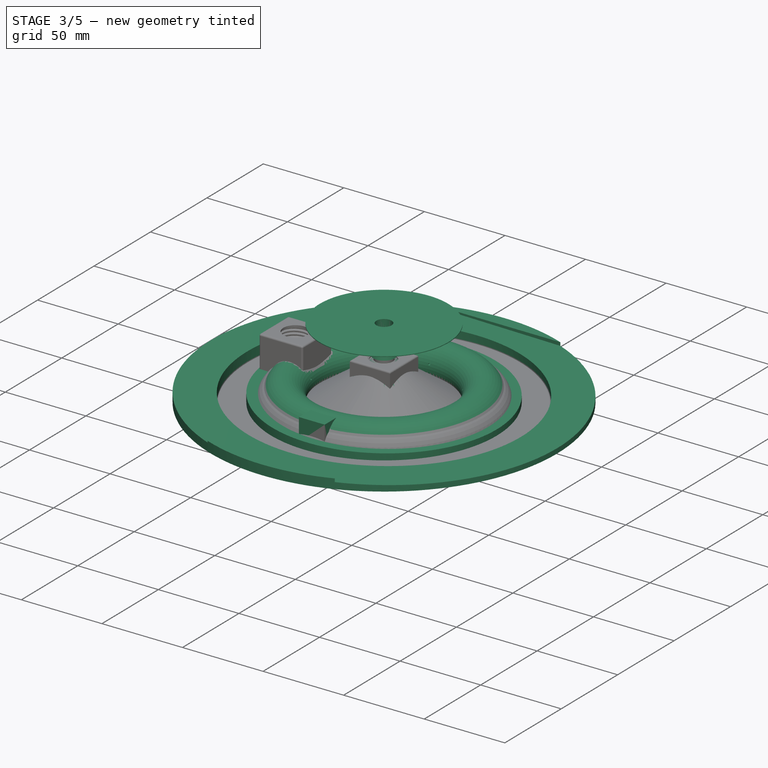
[diagram: stage 3 of 5 — iso view after this stage's code; geometry added in this stage tinted green]
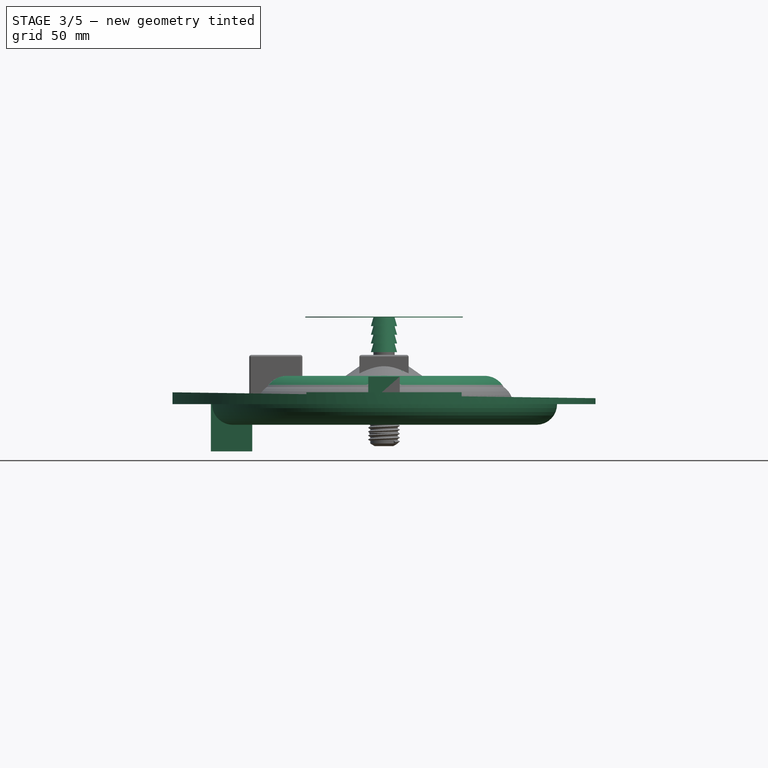
[diagram: stage 3 of 5 — front view after this stage's code; geometry added in this stage tinted green]
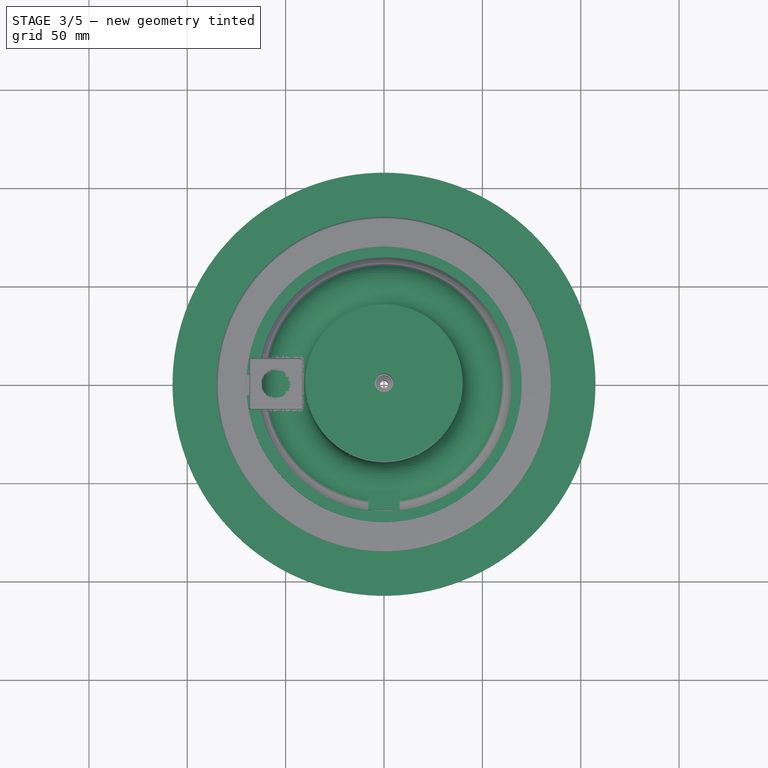
[diagram: stage 3 of 5 — top view after this stage's code; geometry added in this stage tinted green]
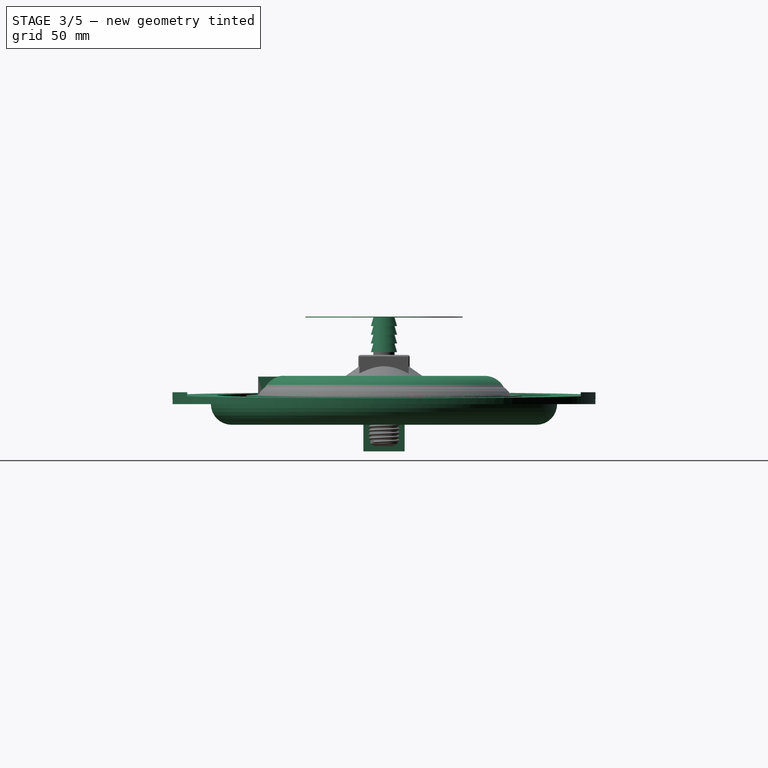
[diagram: stage 3 of 5 — right view after this stage's code; geometry added in this stage tinted green]
FEATURE [PartDesign::Body] Body004  label="M16 Clearance Block"
  AutoGroupSolids = false
  ClaimAllChildren = false
  ExportMode = 0
  Group = -> [Sketch024,Pad001,Sketch025,Hole010,Sketch026,Hole011,Sketch027,Hole012,Sketch028,Hole013,Sketch029,Hole014,Sketch030,Hole015,Sketch031,Pocket004]
  InvalidShape = false
  Origin = -> Origin004
  Tip = -> Pocket004
  TreeRank = 142
  ValidateShape = true
  _ExportChildren = -> [Pad001,Hole010,Hole011,Hole012,Hole013,Hole014,Hole015,Pocket004]
  _GroupVersion = 1
FEATURE [Sketcher::SketchObject] Sketch032
  ArcFitTolerance = 1e-06
  AttachmentSupport = -> [YZ_Plane005]
  ExternalBSplineMaxDegree = 5
  ExternalBSplineTolerance = 0.0001
  FullyConstrained = true
  InternalTolerance = 1e-06
  InvalidShape = false
  MakeInternals = false
  MapMode = 5
  Placement = pos=(0,0,0) rot=(0.57735,0.57735,0.57735;2.0944rad)
  Support = -> [YZ_Plane005]
  TreeRank = 169
  ValidateShape = true
  expr: Constraints[12] = <<Parameters>>.Ring_Bubbler_Diameter / 2
  expr: Constraints[4] = <<Parameters>>.Ring_Bubbler_Tube_Diameter * 2
  expr: Constraints[6] = <<Parameters>>.Thickness
  expr: Constraints[7] = <<Parameters>>.Ring_Bubbler_Tube_Diameter * 2 + 2 * <<Parameters>>.Thickness
  sketch-geometry (4):
    g0: ArcOfCircle CenterX=-51 CenterY=3 CenterZ=0 NormalX=0 NormalY=0 NormalZ=1 AngleXU=0 Radius=8 StartAngle=1e-16 EndAngle=3.14159
    g1: LineSegment StartX=-59 StartY=3 StartZ=0 EndX=-43 EndY=3 EndZ=0
    g2: LineSegment StartX=-62 StartY=0 StartZ=0 EndX=-40 EndY=0 EndZ=0
    g3: ArcOfCircle CenterX=-51 CenterY=3 CenterZ=0 NormalX=0 NormalY=0 NormalZ=1 AngleXU=0 Radius=11.4018 StartAngle=6.01693 EndAngle=9.69103
  constraints (13):
    c: Horizontal(g1)
    c: PointOnObject(g0,g1)
    c: Coincident(g0,g1)
    c: Coincident(g0,g1)
    c: DistanceX(g0,g0) = 16
    c: Horizontal(g2)
    c: DistanceY(g2,g0) = 3
    c: DistanceX(g2,g2) = 22
    c: Coincident(g3,g0)
    c: Coincident(g3,g2)
    c: Coincident(g3,g2)
    c: PointOnObject(g2,g-1)
    c: DistanceX(g2,g-1) = 40
FEATURE [PartDesign::Revolution] Revolution003
  AddSubType = 0
  Angle = 360
  Axis = (-2e-16,3e-16,1)
  Base = (0,0,0)
  ClaimChildren = false
  Fit = 0
  FitJoin = 0
  InnerFit = 0
  InnerFitJoin = 0
  InvalidShape = false
  Linearize = true
  NewSolid = false
  Profile = -> Sketch032
  ReferenceAxis = -> Sketch032 [V_Axis]
  Suppress = false
  TreeRank = 170
  ValidateShape = true
  _ProfileBasedVersion = 1
FEATURE [Sketcher::SketchObject] Sketch033
  ArcFitTolerance = 1e-06
  AttachmentSupport = -> [XZ_Plane005]
  ExternalBSplineMaxDegree = 5
  ExternalBSplineTolerance = 0.0001
  FullyConstrained = true
  InternalTolerance = 1e-06
  InvalidShape = false
  MakeInternals = false
  MapMode = 5
  Placement = pos=(0,0,0) rot=(1,0,0;1.5708rad)
  Support = -> [XZ_Plane005]
  TreeRank = 171
  ValidateShape = true
  expr: Constraints[0] = <<Parameters>>.Ring_Bubbler_Hold_Diameter
  expr: Constraints[2] = <<Parameters>>.Ring_Bubbler_Tube_Diameter / 4 * <<Parameters>>.Thickness
  sketch-geometry (1):
    g0: Circle CenterX=0 CenterY=6 CenterZ=0 NormalX=0 NormalY=0 NormalZ=1 AngleXU=0 Radius=0.6
  constraints (3):
    c: Diameter(g0) = 1.2
    c: PointOnObject(g0,g-2)
    c: DistanceY(g-1,g0) = 6
FEATURE [PartDesign::Pocket] Pocket
  AddSubType = 1
  AutoTaperInnerAngle = true
  BaseFeature = -> Revolution003
  CheckUpToFaceLimits = true
  ClaimChildren = false
  Fit = 0
  FitJoin = 0
  InnerFit = 0
  InnerFitJoin = 0
  InvalidShape = false
  Length = 53.3333
  Length2 = 100
  Linearize = true
  NewSolid = false
  Profile = -> Sketch033
  Suppress = false
  TaperInnerAngle = 0
  TaperInnerAngleRev = 0
  TreeRank = 172
  Type = 0
  ValidateShape = true
  _ProfileBasedVersion = 1
  _Version = 1
  expr: Length = <<Parameters>>.Ring_Bubbler_Diameter * 2 / 3
FEATURE [PartDesign::PolarPattern] PolarPattern001
  AddSubType = 0
  Angle = 360
  Axis = -> Z_Axis005
  BaseFeature = -> Pocket
  CopyShape = false
  InvalidShape = false
  NewSolid = false
  Occurrences = 7
  OriginalSubs = -> [Pocket]
  Originals = -> [Pocket]
  ParallelTransform = true
  SubTransform = true
  Suppress = false
  TreeRank = 173
  ValidateShape = true
  _Version = 3
  expr: Occurrences = <<Parameters>>.Ring_Bubbler_Hold_Count
FEATURE [Sketcher::SketchObject] Sketch034
  ArcFitTolerance = 1e-06
  AttachmentSupport = -> [XY_Plane005]
  ExternalBSplineMaxDegree = 5
  ExternalBSplineTolerance = 0.0001
  FullyConstrained = true
  InternalTolerance = 1e-06
  InvalidShape = false
  MakeInternals = false
  MapMode = 5
  Support = -> [XY_Plane005]
  TreeRank = 174
  ValidateShape = true
  expr: Constraints[10] = 2 * <<Parameters>>.Ring_Bubbler_Tube_Diameter
  expr: Constraints[8] = <<Parameters>>.Ring_Bubbler_Diameter / 2 + <<Parameters>>.Ring_Bubbler_Tube_Diameter * 1.5
  expr: Constraints[9] = <<Parameters>>.Ring_Bubbler_Tube_Diameter * 1.5
  sketch-geometry (4):
    g0: LineSegment StartX=-8 StartY=-52 StartZ=0 EndX=8 EndY=-52 EndZ=0
    g1: LineSegment StartX=8 StartY=-52 StartZ=0 EndX=8 EndY=-64 EndZ=0
    g2: LineSegment StartX=8 StartY=-64 StartZ=0 EndX=-8 EndY=-64 EndZ=0
    g3: LineSegment StartX=-8 StartY=-64 StartZ=0 EndX=-8 EndY=-52 EndZ=0
  constraints (11):
    c: Coincident(g0,g1)
    c: Coincident(g1,g2)
    c: Coincident(g2,g3)
    c: Coincident(g3,g0)
    c: Horizontal(g2)
    c: Vertical(g1)
    c: Vertical(g3)
    c: Symmetric(g0,g0,g-2)
    c: DistanceY(g0,g-1) = 52
    c: DistanceY(g1,g0) = 12
    c: DistanceX(g2,g1) = 16
FEATURE [PartDesign::Pad] Pad002
  AddSubType = 0
  AlongSketchNormal = false
  AutoTaperInnerAngle = true
  BaseFeature = -> PolarPattern001
  CheckUpToFaceLimits = true
  ClaimChildren = false
  Direction = (0,0,1)
  Fit = 0
  FitJoin = 0
  InnerFit = 0
  InnerFitJoin = 0
  InvalidShape = false
  Length = 14
  Length2 = 100
  Linearize = true
  NewSolid = false
  Profile = -> Sketch034
  Suppress = false
  TaperInnerAngle = 0
  TaperInnerAngleRev = 0
  TreeRank = 175
  Type = 0
  ValidateShape = true
  _ProfileBasedVersion = 1
  expr: Length = <<Parameters>>.Ring_Bubbler_Tube_Diameter + 2 * <<Parameters>>.Thickness
FEATURE [PartDesign::Body] Body005  label="Ring Bubbler"
  AutoGroupSolids = false
  ClaimAllChildren = false
  ExportMode = 0
  Group = -> [Sketch032,Revolution003,Sketch033,Pocket,PolarPattern001,Sketch034,Pad002,Sketch035,Hole016,Sketch037,Pocket006]
  InvalidShape = false
  Origin = -> Origin005
  Tip = -> Pocket006
  TreeRank = 168
  ValidateShape = true
  _ExportChildren = -> [Revolution003,Pocket,PolarPattern001,Pad002,Hole016,Pocket006]
  _GroupVersion = 1
FEATURE [Sketcher::SketchObject] Sketch038
  ArcFitTolerance = 1e-06
  AttachmentSupport = -> [XZ_Plane006]
  ExternalBSplineMaxDegree = 5
  ExternalBSplineTolerance = 0.0001
  FullyConstrained = true
  InternalTolerance = 1e-06
  InvalidShape = false
  MakeInternals = false
  MapMode = 5
  Placement = pos=(0,0,0) rot=(1,0,0;1.5708rad)
  Support = -> [XZ_Plane006]
  TreeRank = 127
  ValidateShape = true
  expr: Constraints[10] = <<Parameters>>.Hose_Barb_1_2_Lip / 2
  expr: Constraints[11] = <<Parameters>>.Hose_Barb_1_2_Outer / 2
  expr: Constraints[35] = <<Parameters>>.Hose_Barb_1_2_Height / 5 * 6
  expr: Constraints[36] = <<Parameters>>.Hose_Barb_1_2_Height / 5 * 7
  expr: Constraints[37] = <<Parameters>>.Hose_Barb_1_2_Height / 5 * 8
  expr: Constraints[38] = <<Parameters>>.Hose_Barb_1_2_Height / 5 * 9
  expr: Constraints[40] = <<Parameters>>.Resevoir_Width / 2
  expr: Constraints[47] = <<Parameters>>.Hose_Barb_1_2_Height / 5 * 5.5
  expr: Constraints[6] = <<Parameters>>.Hose_Barb_1_2_Height / 5 * 10
  expr: Constraints[9] = <<Parameters>>.Hose_Barb_1_2_Inner / 2
  sketch-geometry (16):
    g0: LineSegment [constr] StartX=-4.7625 StartY=44.0436 StartZ=0 EndX=-4.7625 EndY=0 EndZ=0
    g1: LineSegment [constr] StartX=-5.3975 StartY=44.0436 StartZ=0 EndX=-5.3975 EndY=0 EndZ=0
    g2: LineSegment [constr] StartX=-6.6675 StartY=44.0436 StartZ=0 EndX=-6.6675 EndY=0 EndZ=0
    g3: LineSegment StartX=-4.7625 StartY=44.0436 StartZ=0 EndX=-5.3975 EndY=44.0436 EndZ=0
    g4: LineSegment StartX=-5.3975 StartY=44.0436 StartZ=0 EndX=-6.6675 EndY=39.6392 EndZ=0
    g5: LineSegment StartX=-6.6675 StartY=39.6392 StartZ=0 EndX=-5.3975 EndY=39.6392 EndZ=0
    g6: LineSegment StartX=-5.3975 StartY=39.6392 StartZ=0 EndX=-6.6675 EndY=35.2349 EndZ=0
    g7: LineSegment StartX=-6.6675 StartY=35.2349 StartZ=0 EndX=-5.3975 EndY=35.2349 EndZ=0
    g8: LineSegment StartX=-5.3975 StartY=35.2349 StartZ=0 EndX=-6.6675 EndY=30.8305 EndZ=0
    g9: LineSegment StartX=-6.6675 StartY=30.8305 StartZ=0 EndX=-5.3975 EndY=30.8305 EndZ=0
    g10: LineSegment StartX=-5.3975 StartY=30.8305 StartZ=0 EndX=-6.6675 EndY=26.4262 EndZ=0
    g11: LineSegment StartX=-5.3975 StartY=24.224 StartZ=0 EndX=-40 EndY=-3.6e-15 EndZ=0
    g12: LineSegment StartX=-40 StartY=-1.8e-15 StartZ=0 EndX=-4.7625 EndY=0 EndZ=0
    g13: LineSegment StartX=-4.7625 StartY=0 StartZ=0 EndX=-4.7625 EndY=44.0436 EndZ=0
    g14: LineSegment StartX=-6.6675 StartY=26.4262 StartZ=0 EndX=-5.3975 EndY=26.4262 EndZ=0
    g15: LineSegment StartX=-5.3975 StartY=26.4262 StartZ=0 EndX=-5.3975 EndY=24.224 EndZ=0
  constraints (48):
    c: Vertical(g0)
    c: Vertical(g1)
    c: Vertical(g2)
    c: PointOnObject(g0,g-1)
    c: PointOnObject(g1,g-1)
    c: PointOnObject(g2,g-1)
    c: DistanceY(g-1,g0) = 44.0436
    c: Equal(g0,g1)
    c: Equal(g0,g2)
    c: DistanceX(g0,g-1) = 4.7625
    c: DistanceX(g1,g-1) = 5.3975
    c: DistanceX(g2,g-1) = 6.6675
    c: Coincident(g3,g0)
    c: Coincident(g3,g1)
    c: Coincident(g4,g3)
    c: PointOnObject(g4,g2)
    c: Coincident(g5,g4)
    c: PointOnObject(g5,g1)
    c: Horizontal(g5)
    c: Coincident(g6,g5)
    c: PointOnObject(g6,g2)
    c: Coincident(g7,g6)
    c: PointOnObject(g7,g1)
    c: Horizontal(g7)
    c: Coincident(g8,g7)
    c: PointOnObject(g8,g2)
    c: Coincident(g9,g8)
    c: PointOnObject(g9,g1)
    c: Coincident(g10,g9)
    c: PointOnObject(g10,g2)
    c: PointOnObject(g11,g-1)
    c: Coincident(g12,g11)
    c: Coincident(g12,g0)
    c: Coincident(g13,g12)
    c: Coincident(g13,g3)
    c: DistanceY(g-1,g10) = 26.4262
    c: DistanceY(g-1,g8) = 30.8305
    c: DistanceY(g-1,g6) = 35.2349
    c: DistanceY(g-1,g4) = 39.6392
    c: Horizontal(g9)
    c: DistanceX(g11,g-1) = 40
    c: PointOnObject(g11,g1)
    c: Coincident(g14,g10)
    c: PointOnObject(g14,g1)
    c: Horizontal(g14)
    c: Coincident(g15,g14)
    c: Coincident(g15,g11)
    c: DistanceY(g-1,g11) = 24.224
FEATURE [PartDesign::Revolution] Revolution004
  AddSubType = 0
  Angle = 360
  Axis = (0,-2e-16,1)
  Base = (0,0,0)
  ClaimChildren = false
  Fit = 0
  FitJoin = 0
  InnerFit = 0
  InnerFitJoin = 0
  InvalidShape = false
  Linearize = true
  NewSolid = false
  Profile = -> Sketch038
  ReferenceAxis = -> Sketch038 [V_Axis]
  Suppress = false
  TreeRank = 128
  ValidateShape = true
  _ProfileBasedVersion = 1
FEATURE [Sketcher::SketchObject] Sketch039
  ArcFitTolerance = 1e-06
  AttachmentSupport = -> [Revolution004]
  ExternalBSplineMaxDegree = 5
  ExternalBSplineTolerance = 0.0001
  FullyConstrained = false
  InternalTolerance = 1e-06
  InvalidShape = false
  MakeInternals = false
  MapMode = 5
  Placement = pos=(0,0,-1.8e-15) rot=(1,0,0;3.14159rad)
  Support = -> [Revolution004]
  TreeRank = 129
  ValidateShape = true
  sketch-geometry (1):
    g0: Circle CenterX=0 CenterY=0 CenterZ=0 NormalX=0 NormalY=0 NormalZ=1 AngleXU=0 Radius=1.60594
  constraints (1):
    c: Coincident(g0,g-1)
FEATURE [PartDesign::Hole] Hole017
  AddSubType = 0
  BaseFeature = -> Revolution004
  ClaimChildren = false
  CustomThreadClearance = 0
  Depth = 20
  DepthType = 0
  Diameter = 14.038
  DrillForDepth = false
  DrillPoint = 1
  DrillPointAngle = 118
  Fit = 0
  FitJoin = 0
  HoleCutCountersinkAngle = 90
  HoleCutCustomValues = false
  HoleCutDepth = 0
  HoleCutDiameter = 14.14
  HoleCutType = 0
  InnerFit = 0
  InnerFitJoin = 0
  InvalidShape = false
  Linearize = true
  ModelThread = true
  NewSolid = false
  Profile = -> Sketch039
  Reversed = true
  Suppress = false
  Tapered = false
  TaperedAngle = 90
  ThreadClass = 0
  ThreadDepth = 20
  ThreadDepthType = 0
  ThreadDirection = 0
  ThreadFit = 0
  ThreadSize = 22
  ThreadType = 1
  Threaded = true
  TreeRank = 130
  UseCustomThreadClearance = false
  ValidateShape = true
  _ProfileBasedVersion = 1
  expr: Depth = <<Parameters>>.Hose_Barb_1_2_Thread_Length
FEATURE [Sketcher::SketchObject] Sketch040
  ArcFitTolerance = 1e-06
  AttachmentSupport = -> [Hole017]
  ExternalBSplineMaxDegree = 5
  ExternalBSplineTolerance = 0.0001
  FullyConstrained = true
  InternalTolerance = 1e-06
  InvalidShape = false
  MakeInternals = false
  MapMode = 5
  Placement = pos=(0,0,-1.8e-15) rot=(0,0,1;0rad)
  Support = -> [Hole017]
  TreeRank = 131
  ValidateShape = true
  expr: Constraints[1] = <<Parameters>>.Hose_Barb_1_2_Inner
  sketch-geometry (1):
    g0: Circle CenterX=0 CenterY=0 CenterZ=0 NormalX=0 NormalY=0 NormalZ=1 AngleXU=0 Radius=4.7625
  constraints (2):
    c: Coincident(g0,g-1)
    c: Diameter(g0) = 9.525
FEATURE [PartDesign::Pocket] Pocket007
  AddSubType = 1
  AutoTaperInnerAngle = true
  BaseFeature = -> Hole017
  CheckUpToFaceLimits = true
  ClaimChildren = false
  Fit = 0
  FitJoin = 0
  InnerFit = 0
  InnerFitJoin = 0
  InvalidShape = false
  Length = 100
  Length2 = 100
  Linearize = true
  NewSolid = false
  Profile = -> Sketch040
  Suppress = false
  TaperInnerAngle = 0
  TaperInnerAngleRev = 0
  TreeRank = 132
  Type = 4
  ValidateShape = true
  _ProfileBasedVersion = 1
  _Version = 1
FEATURE [Sketcher::SketchObject] Sketch041
  ArcFitTolerance = 1e-06
  AttachmentSupport = -> [Pocket007]
  ExternalBSplineMaxDegree = 5
  ExternalBSplineTolerance = 0.0001
  FullyConstrained = true
  InternalTolerance = 1e-06
  InvalidShape = false
  MakeInternals = false
  MapMode = 5
  Placement = pos=(0,-9.8e-15,44.0436) rot=(0,0,1;0rad)
  Support = -> [Pocket007]
  TreeRank = 182
  ValidateShape = true
  expr: Constraints[1] = <<Parameters>>.Resevoir_Width
  expr: Constraints[3] = <<Parameters>>.Hose_Barb_1_2_Inner
  sketch-geometry (2):
    g0: Circle CenterX=0 CenterY=0 CenterZ=0 NormalX=0 NormalY=0 NormalZ=1 AngleXU=0 Radius=40
    g1: Circle CenterX=0 CenterY=0 CenterZ=0 NormalX=0 NormalY=0 NormalZ=1 AngleXU=0 Radius=4.7625
  constraints (4):
    c: Coincident(g0,g-1)
    c: Diameter(g0) = 80
    c: Coincident(g1,g0)
    c: Diameter(g1) = 9.525
FEATURE [PartDesign::Pad] Pad003
  AddSubType = 0
  AlongSketchNormal = false
  AutoTaperInnerAngle = true
  BaseFeature = -> Pocket007
  CheckUpToFaceLimits = true
  ClaimChildren = false
  Direction = (0,-2e-16,1)
  Fit = 0
  FitJoin = 0
  InnerFit = 0
  InnerFitJoin = 0
  InvalidShape = false
  Length = 0.4
  Length2 = 100
  Linearize = true
  NewSolid = false
  Profile = -> Sketch041
  Suppress = false
  TaperInnerAngle = 0
  TaperInnerAngleRev = 0
  TreeRank = 183
  Type = 0
  ValidateShape = true
  _ProfileBasedVersion = 1
FEATURE [PartDesign::Body] Body006  label="1/2" OD Hose Barb - Wide Flange"
  AutoGroupSolids = false
  ClaimAllChildren = false
  ExportMode = 0
  Group = -> [Sketch038,Revolution004,Sketch039,Hole017,Sketch040,Pocket007,Sketch041,Pad003]
  InvalidShape = false
  Origin = -> Origin006
  Tip = -> Pad003
  TreeRank = 68
  ValidateShape = true
  _ExportChildren = -> [Revolution004,Hole017,Pocket007,Pad003]
  _GroupVersion = 1
FEATURE [Sketcher::SketchObject] Sketch042
  ArcFitTolerance = 1e-06
  AttachmentSupport = -> [XY_Plane007]
  ExternalBSplineMaxDegree = 5
  ExternalBSplineTolerance = 0.0001
  FullyConstrained = true
  InternalTolerance = 1e-06
  InvalidShape = false
  MakeInternals = false
  MapMode = 5
  Support = -> [XY_Plane007]
  TreeRank = 194
  ValidateShape = true
  expr: Constraints[1] = <<Parameters>>.Return_Inner_Diameter
  expr: Constraints[3] = <<Parameters>>.Return_Inner_Diameter + <<Parameters>>.Return_Flange_Diameter
  expr: Constraints[5] = <<Parameters>>.Return_Inner_Diameter + <<Parameters>>.Return_Flange_Diameter + <<Parameters>>.Return_Trough_Diameter
  expr: Constraints[7] = <<Parameters>>.Return_Inner_Diameter + <<Parameters>>.Return_Flange_Diameter + <<Parameters>>.Return_Trough_Diameter + <<Parameters>>.Return_Flange_Diameter
  sketch-geometry (4):
    g0: Circle CenterX=0 CenterY=0 CenterZ=0 NormalX=0 NormalY=0 NormalZ=1 AngleXU=0 Radius=47.5
    g1: Circle CenterX=0 CenterY=0 CenterZ=0 NormalX=0 NormalY=0 NormalZ=1 AngleXU=0 Radius=70
    g2: Circle CenterX=0 CenterY=0 CenterZ=0 NormalX=0 NormalY=0 NormalZ=1 AngleXU=0 Radius=85
    g3: Circle CenterX=0 CenterY=0 CenterZ=0 NormalX=0 NormalY=0 NormalZ=1 AngleXU=0 Radius=107.5
  constraints (8):
    c: Coincident(g0,g-1)
    c: Diameter(g0) = 95
    c: Coincident(g1,g0)
    c: Diameter(g1) = 140
    c: Coincident(g2,g0)
    c: Diameter(g2) = 170
    c: Coincident(g3,g0)
    c: Diameter(g3) = 215
FEATURE [PartDesign::Pad] Pad004
  AddSubType = 0
  AlongSketchNormal = false
  AutoTaperInnerAngle = true
  CheckUpToFaceLimits = true
  ClaimChildren = false
  Direction = (0,0,1)
  Fit = 0
  FitJoin = 0
  InnerFit = 0
  InnerFitJoin = 0
  InvalidShape = false
  Length = 6
  Length2 = 100
  Linearize = true
  NewSolid = false
  Profile = -> Sketch042
  Suppress = false
  TaperInnerAngle = 0
  TaperInnerAngleRev = 0
  TreeRank = 195
  Type = 0
  ValidateShape = true
  _ProfileBasedVersion = 1
  expr: Length = <<Parameters>>.Thickness * 2
FEATURE [Sketcher::SketchObject] Sketch043
  ArcFitTolerance = 1e-06
  AttachmentSupport = -> [XZ_Plane007]
  ExternalBSplineMaxDegree = 5
  ExternalBSplineTolerance = 0.0001
  FullyConstrained = true
  InternalTolerance = 1e-06
  InvalidShape = false
  MakeInternals = false
  MapMode = 5
  Placement = pos=(0,0,0) rot=(1,0,0;1.5708rad)
  Support = -> [XZ_Plane007]
  TreeRank = 196
  ValidateShape = true
  expr: Constraints[2] = (<<Parameters>>.Return_Inner_Diameter + <<Parameters>>.Return_Flange_Diameter) / 2 - <<Parameters>>.Thickness
  expr: Constraints[8] = <<Parameters>>.Return_Trough_Diameter / 2 + 2 * <<Parameters>>.Thickness
  sketch-geometry (4):
    g0: GeomPoint [constr] X=-67 Y=0 Z=0
    g1: GeomPoint [constr] X=-88 Y=0 Z=0
    g2: ArcOfCircle CenterX=-77.5 CenterY=0 CenterZ=0 NormalX=0 NormalY=0 NormalZ=1 AngleXU=0 Radius=10.5 StartAngle=3.14159 EndAngle=6.28319
    g3: LineSegment StartX=-88 StartY=0 StartZ=0 EndX=-67 EndY=0 EndZ=0
  constraints (9):
    c: PointOnObject(g0,g-1)
    c: PointOnObject(g1,g-1)
    c: DistanceX(g0,g-1) = 67
    c: Coincident(g2,g1)
    c: Coincident(g2,g0)
    c: Coincident(g3,g2)
    c: Coincident(g3,g2)
    c: PointOnObject(g2,g-1)
    c: DistanceX(g2,g2) = 21
FEATURE [PartDesign::Revolution] Revolution005
  AddSubType = 0
  Angle = 360
  Axis = (0,-2e-16,1)
  Base = (0,0,0)
  BaseFeature = -> Pad004
  ClaimChildren = false
  Fit = 0
  FitJoin = 0
  InnerFit = 0
  InnerFitJoin = 0
  InvalidShape = false
  Linearize = true
  NewSolid = false
  Profile = -> Sketch043
  ReferenceAxis = -> Sketch043 [V_Axis]
  Suppress = false
  TreeRank = 197
  ValidateShape = true
  _ProfileBasedVersion = 1
FEATURE [Sketcher::SketchObject] Sketch044
  ArcFitTolerance = 1e-06
  AttachmentSupport = -> [XZ_Plane007]
  ExternalBSplineMaxDegree = 5
  ExternalBSplineTolerance = 0.0001
  FullyConstrained = true
  InternalTolerance = 1e-06
  InvalidShape = false
  MakeInternals = false
  MapMode = 5
  Placement = pos=(0,0,0) rot=(1,0,0;1.5708rad)
  Support = -> [XZ_Plane007]
  TreeRank = 198
  ValidateShape = true
  expr: Constraints[10] = (<<Parameters>>.Return_Inner_Diameter + <<Parameters>>.Return_Flange_Diameter) / 2 - <<Parameters>>.Thickness
  expr: Constraints[11] = <<Parameters>>.Hose_Barb_1_2_Thread_Length * 1.2
  expr: Constraints[8] = <<Parameters>>.Return_Trough_Diameter / 2 + 2 * <<Parameters>>.Thickness
  sketch-geometry (4):
    g0: LineSegment StartX=-88 StartY=0 StartZ=0 EndX=-67 EndY=0 EndZ=0
    g1: LineSegment StartX=-67 StartY=0 StartZ=0 EndX=-67 EndY=-24 EndZ=0
    g2: LineSegment StartX=-67 StartY=-24 StartZ=0 EndX=-88 EndY=-24 EndZ=0
    g3: LineSegment StartX=-88 StartY=-24 StartZ=0 EndX=-88 EndY=0 EndZ=0
  constraints (12):
    c: Coincident(g0,g1)
    c: Coincident(g1,g2)
    c: Coincident(g2,g3)
    c: Coincident(g3,g0)
    c: Horizontal(g0)
    c: Horizontal(g2)
    c: Vertical(g1)
    c: Vertical(g3)
    c: DistanceX(g0,g0) = 21
    c: PointOnObject(g0,g-1)
    c: DistanceX(g0,g-1) = 67
    c: DistanceY(g1,g0) = 24
FEATURE [PartDesign::Pad] Pad005
  AddSubType = 0
  AlongSketchNormal = false
  AutoTaperInnerAngle = true
  BaseFeature = -> Revolution005
  CheckUpToFaceLimits = true
  ClaimChildren = false
  Direction = (0,-1,-2e-16)
  Fit = 0
  FitJoin = 0
  InnerFit = 0
  InnerFitJoin = 0
  InvalidShape = false
  Length = 10.5
  Length2 = 10.5
  Linearize = true
  NewSolid = false
  Profile = -> Sketch044
  Suppress = false
  TaperInnerAngle = 0
  TaperInnerAngleRev = 0
  TreeRank = 199
  Type = 4
  ValidateShape = true
  _ProfileBasedVersion = 1
  expr: Length = (<<Parameters>>.Return_Trough_Diameter / 2 + 2 * <<Parameters>>.Thickness) / 2
  expr: Length2 = (<<Parameters>>.Return_Trough_Diameter / 2 + 2 * <<Parameters>>.Thickness) / 2
FEATURE [Sketcher::SketchObject] Sketch045
  ArcFitTolerance = 1e-06
  AttachmentSupport = -> [Pad005]
  ExternalBSplineMaxDegree = 5
  ExternalBSplineTolerance = 0.0001
  FullyConstrained = false
  InternalTolerance = 1e-06
  InvalidShape = false
  MakeInternals = false
  MapMode = 5
  Placement = pos=(0,5.3e-15,-24) rot=(1,0,0;3.14159rad)
  Support = -> [Pad005]
  TreeRank = 200
  ValidateShape = true
  expr: Constraints[1] = (<<Parameters>>.Return_Inner_Diameter + <<Parameters>>.Return_Flange_Diameter + <<Parameters>>.Return_Trough_Diameter / 2) / 2
  sketch-geometry (1):
    g0: Circle CenterX=-77.5 CenterY=0 CenterZ=0 NormalX=0 NormalY=0 NormalZ=1 AngleXU=0 Radius=5.59888
  constraints (2):
    c: PointOnObject(g0,g-1)
    c: DistanceX(g0,g-1) = 77.5
FEATURE [PartDesign::Hole] Hole018
  AddSubType = 1
  BaseFeature = -> Pad005
  ClaimChildren = false
  CustomThreadClearance = 1
  Depth = 22.0218
  DepthType = 0
  Diameter = 15
  DrillForDepth = false
  DrillPoint = 1
  DrillPointAngle = 118
  Fit = 0
  FitJoin = 0
  HoleCutCountersinkAngle = 90
  HoleCutCustomValues = false
  HoleCutDepth = 0
  HoleCutDiameter = 15.1
  HoleCutType = 0
  InnerFit = 0
  InnerFitJoin = 0
  InvalidShape = false
  Linearize = true
  ModelThread = true
  NewSolid = false
  Profile = -> Sketch045
  Suppress = false
  Tapered = false
  TaperedAngle = 90
  ThreadClass = 0
  ThreadDepth = 22.0218
  ThreadDepthType = 0
  ThreadDirection = 0
  ThreadFit = 0
  ThreadSize = 22
  ThreadType = 1
  Threaded = true
  TreeRank = 201
  UseCustomThreadClearance = true
  ValidateShape = true
  _ProfileBasedVersion = 1
  expr: Depth = <<Parameters>>.Hose_Barb_1_2_Height
FEATURE [Sketcher::SketchObject] Sketch046
  ArcFitTolerance = 1e-06
  AttachmentSupport = -> [XZ_Plane007]
  ExternalBSplineMaxDegree = 5
  ExternalBSplineTolerance = 0.0001
  FullyConstrained = true
  InternalTolerance = 1e-06
  InvalidShape = false
  MakeInternals = false
  MapMode = 5
  Placement = pos=(0,0,0) rot=(1,0,0;1.5708rad)
  Support = -> [XZ_Plane007]
  TreeRank = 202
  ValidateShape = true
  expr: Constraints[2] = <<Parameters>>.Return_Trough_Diameter / 2
  expr: Constraints[6] = (<<Parameters>>.Return_Inner_Diameter + <<Parameters>>.Return_Flange_Diameter) / 2
  sketch-geometry (2):
    g0: LineSegment StartX=-85 StartY=0 StartZ=0 EndX=-70 EndY=0 EndZ=0
    g1: ArcOfCircle CenterX=-77.5 CenterY=5e-16 CenterZ=0 NormalX=0 NormalY=0 NormalZ=1 AngleXU=0 Radius=7.5 StartAngle=3.14159 EndAngle=6.28319
  constraints (7):
    c: PointOnObject(g0,g-1)
    c: PointOnObject(g0,g-1)
    c: DistanceX(g0,g0) = 15
    c: Coincident(g1,g0)
    c: Coincident(g1,g0)
    c: PointOnObject(g1,g0)
    c: DistanceX(g0,g-1) = 70
FEATURE [PartDesign::Groove] Groove
  AddSubType = 1
  Angle = 360
  Axis = (0,-2e-16,1)
  Base = (0,0,0)
  BaseFeature = -> Hole018
  ClaimChildren = false
  Fit = 0
  FitJoin = 0
  InnerFit = 0
  InnerFitJoin = 0
  InvalidShape = false
  Linearize = true
  NewSolid = false
  Profile = -> Sketch046
  ReferenceAxis = -> Sketch046 [V_Axis]
  Reversed = true
  Suppress = false
  TreeRank = 203
  ValidateShape = true
  _ProfileBasedVersion = 1
FEATURE [Sketcher::SketchObject] Sketch047
  ArcFitTolerance = 1e-06
  AttachmentSupport = -> [XZ_Plane007]
  ExternalBSplineMaxDegree = 5
  ExternalBSplineTolerance = 0.0001
  FullyConstrained = false
  InternalTolerance = 1e-06
  InvalidShape = false
  MakeInternals = false
  MapMode = 5
  Placement = pos=(0,0,0) rot=(1,0,0;1.5708rad)
  Support = -> [XZ_Plane007]
  TreeRank = 204
  ValidateShape = true
  expr: Constraints[0] = <<Parameters>>.Thickness
  expr: Constraints[1] = <<Parameters>>.Thickness * 2
  expr: Constraints[2] = (<<Parameters>>.Return_Inner_Diameter + <<Parameters>>.Return_Flange_Diameter + <<Parameters>>.Return_Trough_Diameter + <<Parameters>>.Return_Flange_Diameter) / 2
  expr: Constraints[3] = (<<Parameters>>.Return_Inner_Diameter + <<Parameters>>.Return_Flange_Diameter + <<Parameters>>.Return_Trough_Diameter + <<Parameters>>.Return_Flange_Diameter) / 2
  sketch-geometry (4):
    g0: LineSegment StartX=-107.5 StartY=6 StartZ=0 EndX=107.5 EndY=3 EndZ=0
    g1: LineSegment StartX=-107.5 StartY=6 StartZ=0 EndX=-107.5 EndY=81.6064 EndZ=0
    g2: LineSegment StartX=107.5 StartY=3 StartZ=0 EndX=107.5 EndY=81.6064 EndZ=0
    g3: LineSegment StartX=-107.5 StartY=81.6064 StartZ=0 EndX=107.5 EndY=81.6064 EndZ=0
  constraints (11):
    c: DistanceY(g-1,g0) = 3
    c: DistanceY(g-1,g0) = 6
    c: DistanceX(g-1,g0) = 107.5
    c: DistanceX(g0,g-1) = 107.5
    c: Coincident(g1,g0)
    c: Vertical(g1)
    c: Coincident(g2,g0)
    c: Vertical(g2)
    c: Coincident(g3,g1)
    c: Horizontal(g3)
    c: Coincident(g2,g3)
FEATURE [PartDesign::Pocket] Pocket008
  AddSubType = 1
  AutoTaperInnerAngle = true
  BaseFeature = -> Groove
  CheckUpToFaceLimits = true
  ClaimChildren = false
  Fit = 0
  FitJoin = 0
  InnerFit = 0
  InnerFitJoin = 0
  InvalidShape = false
  Length = 100
  Length2 = 100
  Linearize = true
  NewSolid = false
  Profile = -> Sketch047
  Suppress = false
  TaperInnerAngle = 0
  TaperInnerAngleRev = 0
  TreeRank = 205
  Type = 4
  ValidateShape = true
  _ProfileBasedVersion = 1
  _Version = 1
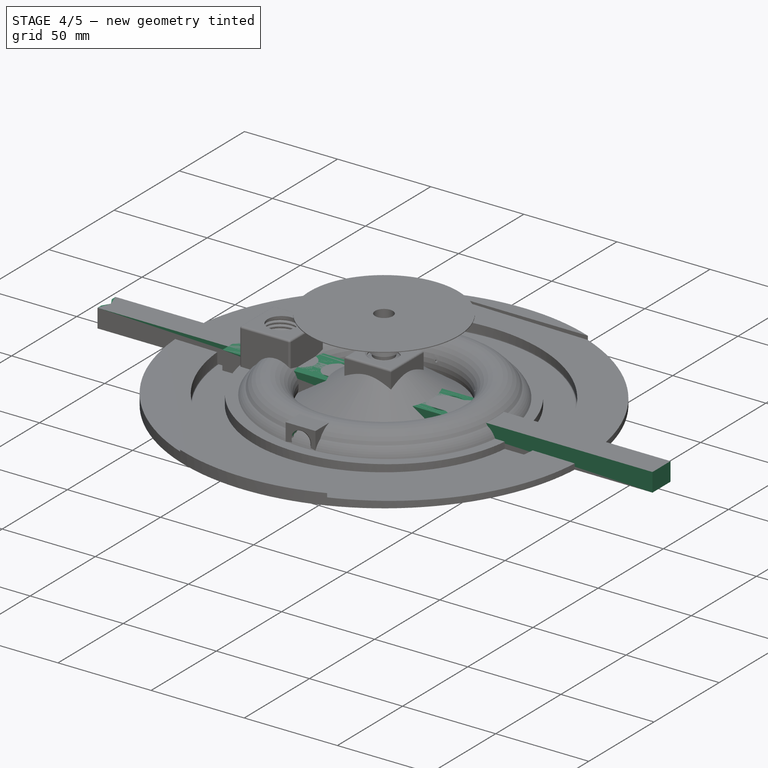
[diagram: stage 4 of 5 — iso view after this stage's code; geometry added in this stage tinted green]
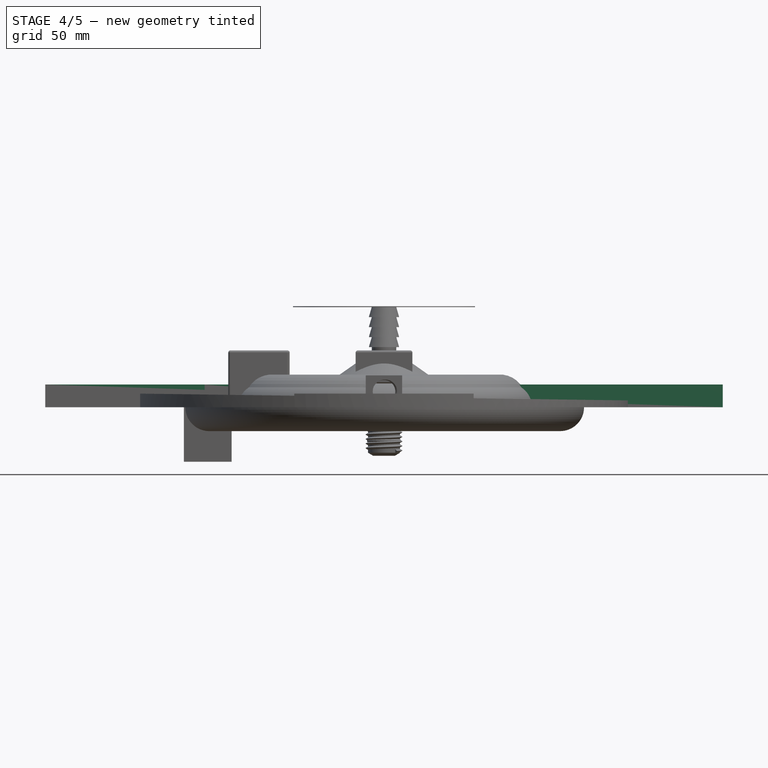
[diagram: stage 4 of 5 — front view after this stage's code; geometry added in this stage tinted green]
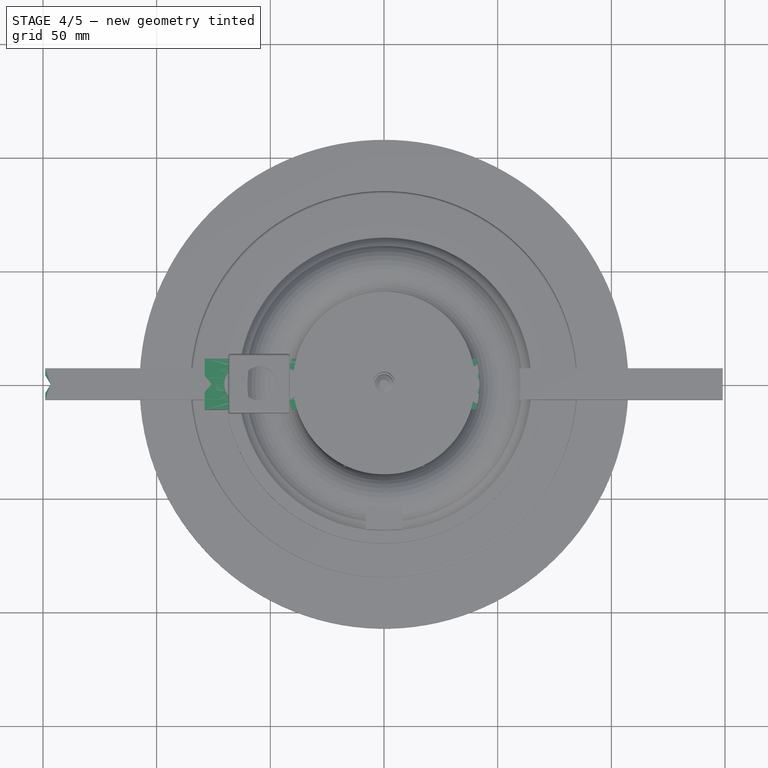
[diagram: stage 4 of 5 — top view after this stage's code; geometry added in this stage tinted green]
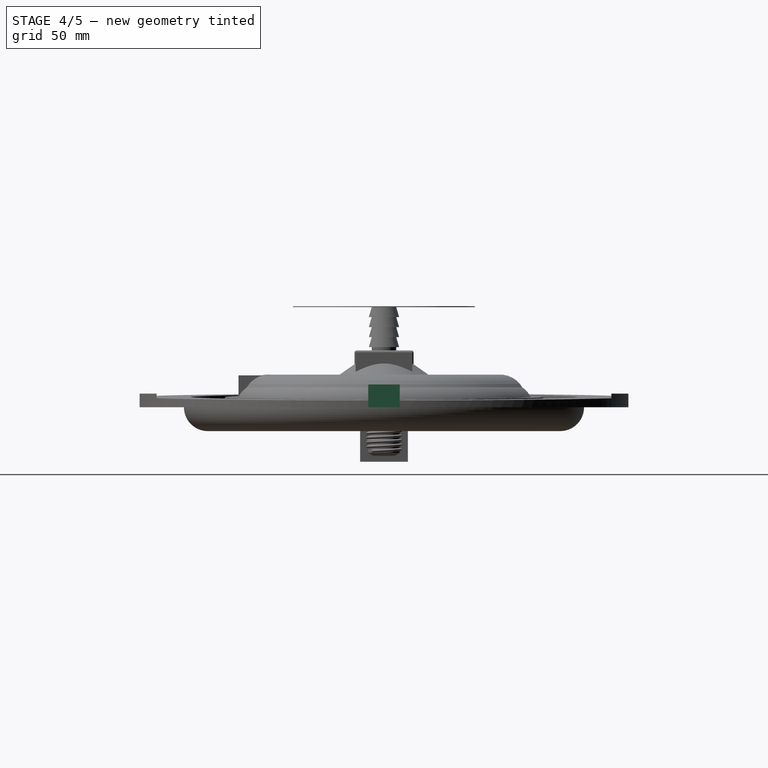
[diagram: stage 4 of 5 — right view after this stage's code; geometry added in this stage tinted green]
FEATURE [PartDesign::Body] Body  label="1/4" OD Hose Barb"
  AutoGroupSolids = false
  ClaimAllChildren = false
  ExportMode = 0
  Group = -> [Sketch,Revolution001,Sketch010,Hole002,Pocket001,Sketch011]
  InvalidShape = false
  Origin = -> Origin
  Tip = -> Pocket001
  TreeRank = 65
  ValidateShape = true
  _ExportChildren = -> [Revolution001,Hole002,Pocket001]
  _GroupVersion = 1
FEATURE [Sketcher::SketchObject] Sketch013
  ArcFitTolerance = 1e-06
  AttachmentSupport = -> [XY_Plane002]
  ExternalBSplineMaxDegree = 5
  ExternalBSplineTolerance = 0.0001
  FullyConstrained = false
  InternalTolerance = 1e-06
  InvalidShape = false
  MakeInternals = false
  MapMode = 5
  Support = -> [XY_Plane002]
  TreeRank = 102
  ValidateShape = true
  sketch-geometry (8):
    g0: LineSegment StartX=148.99 StartY=-6.91439 StartZ=0 EndX=148.99 EndY=6.91439 EndZ=0
    g1: LineSegment StartX=148.99 StartY=6.91439 StartZ=0 EndX=-148.99 EndY=6.91439 EndZ=0
    g2: LineSegment StartX=-148.99 StartY=6.91439 StartZ=0 EndX=-148.99 EndY=4.0282 EndZ=0
    g3: LineSegment StartX=-148.99 StartY=-6.91439 StartZ=0 EndX=148.99 EndY=-6.91439 EndZ=0
    g4: GeomPoint [constr] X=0 Y=0 Z=0
    g5: LineSegment StartX=-148.99 StartY=4.0282 StartZ=0 EndX=-146.607 EndY=0 EndZ=0
    g6: LineSegment StartX=-146.607 StartY=0 StartZ=0 EndX=-148.99 EndY=-4.0282 EndZ=0
    g7: LineSegment StartX=-148.99 StartY=-4.0282 StartZ=0 EndX=-148.99 EndY=-6.91439 EndZ=0
  constraints (15):
    c: Coincident(g0,g1)
    c: Coincident(g1,g2)
    c: Coincident(g7,g3)
    c: Coincident(g3,g0)
    c: Horizontal(g1)
    c: Horizontal(g3)
    c: Vertical(g0)
    c: Vertical(g2)
    c: Symmetric(g1,g0,g4)
    c: Coincident(g4,g-1)
    c: PointOnObject(g5,g-1)
    c: Coincident(g6,g5)
    c: Equal(g5,g6)
    c: Coincident(g2,g5)
    c: Coincident(g7,g6)
FEATURE [PartDesign::Pad] Pad
  AddSubType = 0
  AlongSketchNormal = false
  AutoTaperInnerAngle = true
  CheckUpToFaceLimits = true
  ClaimChildren = false
  Direction = (0,0,1)
  Fit = 0
  FitJoin = 0
  InnerFit = 0
  InnerFitJoin = 0
  InvalidShape = false
  Length = 10
  Length2 = 100
  Linearize = true
  NewSolid = false
  Profile = -> Sketch013
  Suppress = false
  TaperInnerAngle = 0
  TaperInnerAngleRev = 0
  TreeRank = 103
  Type = 0
  ValidateShape = true
  _ProfileBasedVersion = 1
FEATURE [PartDesign::Body] Body002  label="M10 Clearance Block"
  AutoGroupSolids = false
  ClaimAllChildren = false
  ExportMode = 0
  Group = -> [Sketch013,Pad,Sketch014,Hole003,Sketch015,Hole004,Sketch016,Hole005,Sketch017,Hole006,Sketch018,Hole007,Sketch019,Hole008,Sketch020,Pocket002]
  InvalidShape = false
  Origin = -> Origin002
  Tip = -> Pocket002
  TreeRank = 101
  ValidateShape = true
  _ExportChildren = -> [Pad,Hole003,Hole004,Hole005,Hole006,Hole007,Hole008,Pocket002]
  _GroupVersion = 1
FEATURE [Sketcher::SketchObject] Sketch021
  ArcFitTolerance = 1e-06
  AttachmentSupport = -> [XZ_Plane003]
  ExternalBSplineMaxDegree = 5
  ExternalBSplineTolerance = 0.0001
  FullyConstrained = true
  InternalTolerance = 1e-06
  InvalidShape = false
  MakeInternals = false
  MapMode = 5
  Placement = pos=(0,0,0) rot=(1,0,0;1.5708rad)
  Support = -> [XZ_Plane003]
  TreeRank = 127
  ValidateShape = true
  expr: Constraints[10] = <<Parameters>>.Hose_Barb_1_2_Lip / 2
  expr: Constraints[11] = <<Parameters>>.Hose_Barb_1_2_Outer / 2
  expr: Constraints[39] = <<Parameters>>.Hose_Barb_1_2_Height / 5 * 1
  expr: Constraints[40] = <<Parameters>>.Hose_Barb_1_2_Height / 5 * 2
  expr: Constraints[41] = <<Parameters>>.Hose_Barb_1_2_Height / 5 * 3
  expr: Constraints[42] = <<Parameters>>.Hose_Barb_1_2_Height / 5 * 4
  expr: Constraints[6] = <<Parameters>>.Hose_Barb_1_2_Height
  expr: Constraints[9] = <<Parameters>>.Hose_Barb_1_2_Inner / 2
  sketch-geometry (15):
    g0: LineSegment [constr] StartX=-4.7625 StartY=22.0218 StartZ=0 EndX=-4.7625 EndY=0 EndZ=0
    g1: LineSegment [constr] StartX=-5.3975 StartY=22.0218 StartZ=0 EndX=-5.3975 EndY=0 EndZ=0
    g2: LineSegment [constr] StartX=-6.6675 StartY=22.0218 StartZ=0 EndX=-6.6675 EndY=0 EndZ=0
    g3: LineSegment StartX=-4.7625 StartY=22.0218 StartZ=0 EndX=-5.3975 EndY=22.0218 EndZ=0
    g4: LineSegment StartX=-5.3975 StartY=22.0218 StartZ=0 EndX=-6.6675 EndY=17.6174 EndZ=0
    g5: LineSegment StartX=-6.6675 StartY=17.6174 StartZ=0 EndX=-5.3975 EndY=17.6174 EndZ=0
    g6: LineSegment StartX=-5.3975 StartY=17.6174 StartZ=0 EndX=-6.6675 EndY=13.2131 EndZ=0
    g7: LineSegment StartX=-6.6675 StartY=13.2131 StartZ=0 EndX=-5.3975 EndY=13.2131 EndZ=0
    g8: LineSegment StartX=-5.3975 StartY=13.2131 StartZ=0 EndX=-6.6675 EndY=8.80872 EndZ=0
    g9: LineSegment StartX=-6.6675 StartY=8.80872 StartZ=0 EndX=-5.3975 EndY=8.80872 EndZ=0
    g10: LineSegment StartX=-5.3975 StartY=8.80872 StartZ=0 EndX=-6.6675 EndY=4.40436 EndZ=0
    g11: LineSegment StartX=-6.6675 StartY=4.40436 StartZ=0 EndX=-5.3975 EndY=4.40436 EndZ=0
    g12: LineSegment StartX=-5.3975 StartY=4.40436 StartZ=0 EndX=-9 EndY=0 EndZ=0
    g13: LineSegment StartX=-9 StartY=0 StartZ=0 EndX=-4.7625 EndY=0 EndZ=0
    g14: LineSegment StartX=-4.7625 StartY=0 StartZ=0 EndX=-4.7625 EndY=22.0218 EndZ=0
  constraints (45):
    c: Vertical(g0)
    c: Vertical(g1)
    c: Vertical(g2)
    c: PointOnObject(g0,g-1)
    c: PointOnObject(g1,g-1)
    c: PointOnObject(g2,g-1)
    c: DistanceY(g-1,g0) = 22.0218
    c: Equal(g0,g1)
    c: Equal(g0,g2)
    c: DistanceX(g0,g-1) = 4.7625
    c: DistanceX(g1,g-1) = 5.3975
    c: DistanceX(g2,g-1) = 6.6675
    c: Coincident(g3,g0)
    c: Coincident(g3,g1)
    c: Coincident(g4,g3)
    c: PointOnObject(g4,g2)
    c: Coincident(g5,g4)
    c: PointOnObject(g5,g1)
    c: Horizontal(g5)
    c: Coincident(g6,g5)
    c: PointOnObject(g6,g2)
    c: Coincident(g7,g6)
    c: PointOnObject(g7,g1)
    c: Horizontal(g7)
    c: Coincident(g8,g7)
    c: PointOnObject(g8,g2)
    c: Coincident(g9,g8)
    c: PointOnObject(g9,g1)
    c: Coincident(g10,g9)
    c: PointOnObject(g10,g2)
    c: Coincident(g11,g10)
    c: PointOnObject(g11,g1)
    c: Horizontal(g11)
    c: Coincident(g12,g11)
    c: PointOnObject(g12,g-1)
    c: Coincident(g13,g12)
    c: Coincident(g13,g0)
    c: Coincident(g14,g13)
    c: Coincident(g14,g3)
    c: DistanceY(g-1,g10) = 4.40436
    c: DistanceY(g-1,g8) = 8.80872
    c: DistanceY(g-1,g6) = 13.2131
    c: DistanceY(g-1,g4) = 17.6174
    c: Horizontal(g9)
    c: DistanceX(g12,g-1) = 9
FEATURE [PartDesign::Revolution] Revolution002
  AddSubType = 0
  Angle = 360
  Axis = (0,2e-16,1)
  Base = (0,0,0)
  ClaimChildren = false
  Fit = 0
  FitJoin = 0
  InnerFit = 0
  InnerFitJoin = 0
  InvalidShape = false
  Linearize = true
  NewSolid = false
  Profile = -> Sketch021
  ReferenceAxis = -> Sketch021 [V_Axis]
  Suppress = false
  TreeRank = 128
  ValidateShape = true
  _ProfileBasedVersion = 1
FEATURE [Sketcher::SketchObject] Sketch022
  ArcFitTolerance = 1e-06
  AttachmentSupport = -> [Revolution002]
  ExternalBSplineMaxDegree = 5
  ExternalBSplineTolerance = 0.0001
  FullyConstrained = false
  InternalTolerance = 1e-06
  InvalidShape = false
  MakeInternals = false
  MapMode = 5
  Placement = pos=(0,0,0) rot=(1,0,0;3.14159rad)
  Support = -> [Revolution002]
  TreeRank = 129
  ValidateShape = true
  sketch-geometry (1):
    g0: Circle CenterX=0 CenterY=0 CenterZ=0 NormalX=0 NormalY=0 NormalZ=1 AngleXU=0 Radius=1.60594
  constraints (1):
    c: Coincident(g0,g-1)
FEATURE [PartDesign::Hole] Hole009
  AddSubType = 0
  BaseFeature = -> Revolution002
  ClaimChildren = false
  CustomThreadClearance = 0
  Depth = 20
  DepthType = 0
  Diameter = 14.038
  DrillForDepth = false
  DrillPoint = 1
  DrillPointAngle = 118
  Fit = 0
  FitJoin = 0
  HoleCutCountersinkAngle = 90
  HoleCutCustomValues = false
  HoleCutDepth = 0
  HoleCutDiameter = 6.1
  HoleCutType = 0
  InnerFit = 0
  InnerFitJoin = 0
  InvalidShape = false
  Linearize = true
  ModelThread = true
  NewSolid = false
  Profile = -> Sketch022
  Reversed = true
  Suppress = false
  Tapered = false
  TaperedAngle = 90
  ThreadClass = 0
  ThreadDepth = 20
  ThreadDepthType = 0
  ThreadDirection = 0
  ThreadFit = 0
  ThreadSize = 22
  ThreadType = 1
  Threaded = true
  TreeRank = 130
  UseCustomThreadClearance = false
  ValidateShape = true
  _ProfileBasedVersion = 1
  expr: Depth = <<Parameters>>.Hose_Barb_1_2_Thread_Length
FEATURE [Sketcher::SketchObject] Sketch023
  ArcFitTolerance = 1e-06
  AttachmentSupport = -> [Hole009]
  ExternalBSplineMaxDegree = 5
  ExternalBSplineTolerance = 0.0001
  FullyConstrained = true
  InternalTolerance = 1e-06
  InvalidShape = false
  MakeInternals = false
  MapMode = 5
  Support = -> [Hole009]
  TreeRank = 131
  ValidateShape = true
  expr: Constraints[1] = <<Parameters>>.Hose_Barb_1_2_Inner
  sketch-geometry (1):
    g0: Circle CenterX=0 CenterY=0 CenterZ=0 NormalX=0 NormalY=0 NormalZ=1 AngleXU=0 Radius=4.7625
  constraints (2):
    c: Coincident(g0,g-1)
    c: Diameter(g0) = 9.525
FEATURE [PartDesign::Pocket] Pocket003
  AddSubType = 1
  AutoTaperInnerAngle = true
  BaseFeature = -> Hole009
  CheckUpToFaceLimits = true
  ClaimChildren = false
  Fit = 0
  FitJoin = 0
  InnerFit = 0
  InnerFitJoin = 0
  InvalidShape = false
  Length = 100
  Length2 = 100
  Linearize = true
  NewSolid = false
  Profile = -> Sketch023
  Suppress = false
  TaperInnerAngle = 0
  TaperInnerAngleRev = 0
  TreeRank = 132
  Type = 4
  ValidateShape = true
  _ProfileBasedVersion = 1
  _Version = 1
FEATURE [PartDesign::Body] Body003  label="1/2" OD Hose Barb"
  AutoGroupSolids = false
  ClaimAllChildren = false
  ExportMode = 0
  Group = -> [Sketch021,Revolution002,Sketch022,Hole009,Sketch023,Pocket003]
  InvalidShape = false
  Origin = -> Origin003
  Tip = -> Pocket003
  TreeRank = 67
  ValidateShape = true
  _ExportChildren = -> [Revolution002,Hole009,Pocket003]
  _GroupVersion = 1
FEATURE [Sketcher::SketchObject] Sketch024
  ArcFitTolerance = 1e-06
  AttachmentSupport = -> [XY_Plane004]
  ExternalBSplineMaxDegree = 5
  ExternalBSplineTolerance = 0.0001
  FullyConstrained = false
  InternalTolerance = 1e-06
  InvalidShape = false
  MakeInternals = false
  MapMode = 5
  Support = -> [XY_Plane004]
  TreeRank = 143
  ValidateShape = true
  sketch-geometry (8):
    g0: LineSegment StartX=78.8915 StartY=-11.2403 StartZ=0 EndX=78.8915 EndY=11.2403 EndZ=0
    g1: LineSegment StartX=78.8915 StartY=11.2403 StartZ=0 EndX=-78.8915 EndY=11.2403 EndZ=0
    g2: LineSegment StartX=-78.8915 StartY=11.2403 StartZ=0 EndX=-78.8915 EndY=3.49949 EndZ=0
    g3: LineSegment StartX=-78.8915 StartY=-11.2403 StartZ=0 EndX=78.8915 EndY=-11.2403 EndZ=0
    g4: GeomPoint [constr] X=0 Y=0 Z=0
    g5: LineSegment StartX=-78.8915 StartY=3.49949 StartZ=0 EndX=-75.8216 EndY=0 EndZ=0
    g6: LineSegment StartX=-75.8216 StartY=0 StartZ=0 EndX=-78.8915 EndY=-3.49949 EndZ=0
    g7: LineSegment StartX=-78.8915 StartY=-3.49949 StartZ=0 EndX=-78.8915 EndY=-11.2403 EndZ=0
  constraints (17):
    c: Coincident(g0,g1)
    c: Coincident(g1,g2)
    c: Coincident(g7,g3)
    c: Coincident(g3,g0)
    c: Horizontal(g1)
    c: Horizontal(g3)
    c: Vertical(g0)
    c: Vertical(g2)
    c: Symmetric(g1,g0,g4)
    c: Coincident(g4,g-1)
    c: PointOnObject(g5,g-1)
    c: Coincident(g6,g5)
    c: Coincident(g2,g5)
    c: Coincident(g7,g6)
    c: Equal(g5,g6)
    c: Vertical(g7)
    c: DistanceX(g2,g6) = 0
FEATURE [PartDesign::Pad] Pad001
  AddSubType = 0
  AlongSketchNormal = false
  AutoTaperInnerAngle = true
  CheckUpToFaceLimits = true
  ClaimChildren = false
  Direction = (0,0,1)
  Fit = 0
  FitJoin = 0
  InnerFit = 0
  InnerFitJoin = 0
  InvalidShape = false
  Length = 10
  Length2 = 100
  Linearize = true
  NewSolid = false
  Profile = -> Sketch024
  Suppress = false
  TaperInnerAngle = 0
  TaperInnerAngleRev = 0
  TreeRank = 144
  Type = 0
  ValidateShape = true
  _ProfileBasedVersion = 1
FEATURE [Sketcher::SketchObject] Sketch025
  ArcFitTolerance = 1e-06
  AttachmentSupport = -> [Pad001]
  ExternalBSplineMaxDegree = 5
  ExternalBSplineTolerance = 0.0001
  FullyConstrained = false
  InternalTolerance = 1e-06
  InvalidShape = false
  MakeInternals = false
  MapMode = 5
  Placement = pos=(0,0,10) rot=(0,0,1;0rad)
  Support = -> [Pad001]
  TreeRank = 145
  ValidateShape = true
  sketch-geometry (1):
    g0: Circle CenterX=-62.278 CenterY=0 CenterZ=0 NormalX=0 NormalY=0 NormalZ=1 AngleXU=0 Radius=3.80787
  constraints (1):
    c: PointOnObject(g0,g-1)
FEATURE [PartDesign::Hole] Hole010
  AddSubType = 1
  BaseFeature = -> Pad001
  ClaimChildren = false
  CustomThreadClearance = 0
  Depth = 25
  DepthType = 0
  Diameter = 14.038
  DrillForDepth = false
  DrillPoint = 1
  DrillPointAngle = 118
  Fit = 0
  FitJoin = 0
  HoleCutCountersinkAngle = 90
  HoleCutCustomValues = false
  HoleCutDepth = 0
  HoleCutDiameter = 6.1
  HoleCutType = 0
  InnerFit = 0
  InnerFitJoin = 0
  InvalidShape = false
  Linearize = true
  ModelThread = true
  NewSolid = false
  Profile = -> Sketch025
  Suppress = false
  Tapered = false
  TaperedAngle = 90
  ThreadClass = 0
  ThreadDepth = 25
  ThreadDepthType = 0
  ThreadDirection = 0
  ThreadFit = 0
  ThreadSize = 22
  ThreadType = 1
  Threaded = true
  TreeRank = 146
  UseCustomThreadClearance = false
  ValidateShape = true
  _ProfileBasedVersion = 1
FEATURE [Sketcher::SketchObject] Sketch026
  ArcFitTolerance = 1e-06
  AttachmentSupport = -> [Hole010]
  ExternalBSplineMaxDegree = 5
  ExternalBSplineTolerance = 0.0001
  FullyConstrained = false
  InternalTolerance = 1e-06
  InvalidShape = false
  MakeInternals = false
  MapMode = 5
  Placement = pos=(0,0,10) rot=(0,0,1;0rad)
  Support = -> [Hole010]
  TreeRank = 147
  ValidateShape = true
  sketch-geometry (1):
    g0: Circle CenterX=-43.8586 CenterY=0 CenterZ=0 NormalX=0 NormalY=0 NormalZ=1 AngleXU=0 Radius=7.81515
  constraints (1):
    c: PointOnObject(g0,g-1)
FEATURE [PartDesign::Hole] Hole011
  AddSubType = 1
  BaseFeature = -> Hole010
  ClaimChildren = false
  CustomThreadClearance = 0.2
  Depth = 25
  DepthType = 0
  Diameter = 14.2
  DrillForDepth = false
  DrillPoint = 1
  DrillPointAngle = 118
  Fit = 0
  FitJoin = 0
  HoleCutCountersinkAngle = 90
  HoleCutCustomValues = false
  HoleCutDepth = 0
  HoleCutDiameter = 6.1
  HoleCutType = 0
  InnerFit = 0
  InnerFitJoin = 0
  InvalidShape = false
  Linearize = true
  ModelThread = true
  NewSolid = false
  Profile = -> Sketch026
  Suppress = false
  Tapered = false
  TaperedAngle = 90
  ThreadClass = 0
  ThreadDepth = 25
  ThreadDepthType = 0
  ThreadDirection = 0
  ThreadFit = 0
  ThreadSize = 22
  ThreadType = 1
  Threaded = true
  TreeRank = 148
  UseCustomThreadClearance = true
  ValidateShape = true
  _ProfileBasedVersion = 1
FEATURE [Sketcher::SketchObject] Sketch027
  ArcFitTolerance = 1e-06
  AttachmentSupport = -> [Hole011]
  ExternalBSplineMaxDegree = 5
  ExternalBSplineTolerance = 0.0001
  FullyConstrained = false
  InternalTolerance = 1e-06
  InvalidShape = false
  MakeInternals = false
  MapMode = 5
  Placement = pos=(0,0,10) rot=(0,0,1;0rad)
  Support = -> [Hole011]
  TreeRank = 149
  ValidateShape = true
  sketch-geometry (1):
    g0: Circle CenterX=-24.1751 CenterY=0 CenterZ=0 NormalX=0 NormalY=0 NormalZ=1 AngleXU=0 Radius=7.77223
  constraints (1):
    c: PointOnObject(g0,g-1)
FEATURE [PartDesign::Hole] Hole012
  AddSubType = 1
  BaseFeature = -> Hole011
  ClaimChildren = false
  CustomThreadClearance = 0.4
  Depth = 25
  DepthType = 0
  Diameter = 14.4
  DrillForDepth = false
  DrillPoint = 1
  DrillPointAngle = 118
  Fit = 0
  FitJoin = 0
  HoleCutCountersinkAngle = 90
  HoleCutCustomValues = false
  HoleCutDepth = 0
  HoleCutDiameter = 6.1
  HoleCutType = 0
  InnerFit = 0
  InnerFitJoin = 0
  InvalidShape = false
  Linearize = true
  ModelThread = true
  NewSolid = false
  Profile = -> Sketch027
  Suppress = false
  Tapered = false
  TaperedAngle = 90
  ThreadClass = 0
  ThreadDepth = 25
  ThreadDepthType = 0
  ThreadDirection = 0
  ThreadFit = 0
  ThreadSize = 22
  ThreadType = 1
  Threaded = true
  TreeRank = 150
  UseCustomThreadClearance = true
  ValidateShape = true
  _ProfileBasedVersion = 1
FEATURE [Sketcher::SketchObject] Sketch028
  ArcFitTolerance = 1e-06
  AttachmentSupport = -> [Hole012]
  ExternalBSplineMaxDegree = 5
  ExternalBSplineTolerance = 0.0001
  FullyConstrained = false
  InternalTolerance = 1e-06
  InvalidShape = false
  MakeInternals = false
  MapMode = 5
  Placement = pos=(0,0,10) rot=(0,0,1;0rad)
  Support = -> [Hole012]
  TreeRank = 151
  ValidateShape = true
  sketch-geometry (1):
    g0: Circle CenterX=-4.31111 CenterY=0 CenterZ=0 NormalX=0 NormalY=0 NormalZ=1 AngleXU=0 Radius=8.06391
  constraints (1):
    c: PointOnObject(g0,g-1)
FEATURE [PartDesign::Hole] Hole013
  AddSubType = 1
  BaseFeature = -> Hole012
  ClaimChildren = false
  CustomThreadClearance = 0.6
  Depth = 25
  DepthType = 0
  Diameter = 14.6
  DrillForDepth = false
  DrillPoint = 1
  DrillPointAngle = 118
  Fit = 0
  FitJoin = 0
  HoleCutCountersinkAngle = 90
  HoleCutCustomValues = false
  HoleCutDepth = 0
  HoleCutDiameter = 6.1
  HoleCutType = 0
  InnerFit = 0
  InnerFitJoin = 0
  InvalidShape = false
  Linearize = true
  ModelThread = true
  NewSolid = false
  Profile = -> Sketch028
  Suppress = false
  Tapered = false
  TaperedAngle = 90
  ThreadClass = 0
  ThreadDepth = 25
  ThreadDepthType = 0
  ThreadDirection = 0
  ThreadFit = 0
  ThreadSize = 22
  ThreadType = 1
  Threaded = true
  TreeRank = 152
  UseCustomThreadClearance = true
  ValidateShape = true
  _ProfileBasedVersion = 1
FEATURE [Sketcher::SketchObject] Sketch029
  ArcFitTolerance = 1e-06
  AttachmentSupport = -> [Hole013]
  ExternalBSplineMaxDegree = 5
  ExternalBSplineTolerance = 0.0001
  FullyConstrained = false
  InternalTolerance = 1e-06
  InvalidShape = false
  MakeInternals = false
  MapMode = 5
  Placement = pos=(0,0,10) rot=(0,0,1;0rad)
  Support = -> [Hole013]
  TreeRank = 153
  ValidateShape = true
  sketch-geometry (1):
    g0: Circle CenterX=15.0112 CenterY=0 CenterZ=0 NormalX=0 NormalY=0 NormalZ=1 AngleXU=0 Radius=7.8433
  constraints (1):
    c: PointOnObject(g0,g-1)
FEATURE [PartDesign::Hole] Hole014
  AddSubType = 1
  BaseFeature = -> Hole013
  ClaimChildren = false
  CustomThreadClearance = 0.8
  Depth = 25
  DepthType = 0
  Diameter = 14.8
  DrillForDepth = false
  DrillPoint = 1
  DrillPointAngle = 118
  Fit = 0
  FitJoin = 0
  HoleCutCountersinkAngle = 90
  HoleCutCustomValues = false
  HoleCutDepth = 0
  HoleCutDiameter = 6.1
  HoleCutType = 0
  InnerFit = 0
  InnerFitJoin = 0
  InvalidShape = false
  Linearize = true
  ModelThread = true
  NewSolid = false
  Profile = -> Sketch029
  Suppress = false
  Tapered = false
  TaperedAngle = 90
  ThreadClass = 0
  ThreadDepth = 25
  ThreadDepthType = 0
  ThreadDirection = 0
  ThreadFit = 0
  ThreadSize = 22
  ThreadType = 1
  Threaded = true
  TreeRank = 154
  UseCustomThreadClearance = true
  ValidateShape = true
  _ProfileBasedVersion = 1
FEATURE [Sketcher::SketchObject] Sketch030
  ArcFitTolerance = 1e-06
  AttachmentSupport = -> [Hole014]
  ExternalBSplineMaxDegree = 5
  ExternalBSplineTolerance = 0.0001
  FullyConstrained = false
  InternalTolerance = 1e-06
  InvalidShape = false
  MakeInternals = false
  MapMode = 5
  Placement = pos=(0,0,10) rot=(0,0,1;0rad)
  Support = -> [Hole014]
  TreeRank = 155
  ValidateShape = true
  sketch-geometry (1):
    g0: Circle CenterX=34.514 CenterY=0 CenterZ=0 NormalX=0 NormalY=0 NormalZ=1 AngleXU=0 Radius=7.18234
  constraints (1):
    c: PointOnObject(g0,g-1)
FEATURE [PartDesign::Hole] Hole015
  AddSubType = 1
  BaseFeature = -> Hole014
  ClaimChildren = false
  CustomThreadClearance = 1
  Depth = 25
  DepthType = 0
  Diameter = 15
  DrillForDepth = false
  DrillPoint = 1
  DrillPointAngle = 118
  Fit = 0
  FitJoin = 0
  HoleCutCountersinkAngle = 90
  HoleCutCustomValues = false
  HoleCutDepth = 0
  HoleCutDiameter = 6.1
  HoleCutType = 0
  InnerFit = 0
  InnerFitJoin = 0
  InvalidShape = false
  Linearize = true
  ModelThread = true
  NewSolid = false
  Profile = -> Sketch030
  Suppress = false
  Tapered = false
  TaperedAngle = 90
  ThreadClass = 0
  ThreadDepth = 25
  ThreadDepthType = 0
  ThreadDirection = 0
  ThreadFit = 0
  ThreadSize = 22
  ThreadType = 1
  Threaded = true
  TreeRank = 156
  UseCustomThreadClearance = true
  ValidateShape = true
  _ProfileBasedVersion = 1
FEATURE [Sketcher::SketchObject] Sketch031
  ArcFitTolerance = 1e-06
  AttachmentSupport = -> [Hole015]
  ExternalBSplineMaxDegree = 5
  ExternalBSplineTolerance = 0.0001
  FullyConstrained = false
  InternalTolerance = 1e-06
  InvalidShape = false
  MakeInternals = false
  MapMode = 5
  Placement = pos=(0,0,10) rot=(0,0,1;0rad)
  Support = -> [Hole015]
  TreeRank = 157
  ValidateShape = true
  sketch-geometry (4):
    g0: LineSegment StartX=45.1684 StartY=28.9616 StartZ=0 EndX=92.6615 EndY=28.9616 EndZ=0
    g1: LineSegment StartX=92.6615 StartY=28.9616 StartZ=0 EndX=92.6615 EndY=-27.3801 EndZ=0
    g2: LineSegment StartX=92.6615 StartY=-27.3801 StartZ=0 EndX=45.1684 EndY=-27.3801 EndZ=0
    g3: LineSegment StartX=45.1684 StartY=-27.3801 StartZ=0 EndX=45.1684 EndY=28.9616 EndZ=0
  constraints (8):
    c: Coincident(g0,g1)
    c: Coincident(g1,g2)
    c: Coincident(g2,g3)
    c: Coincident(g3,g0)
    c: Horizontal(g0)
    c: Horizontal(g2)
    c: Vertical(g1)
    c: Vertical(g3)
FEATURE [PartDesign::Pocket] Pocket004
  AddSubType = 1
  AutoTaperInnerAngle = true
  BaseFeature = -> Hole015
  CheckUpToFaceLimits = true
  ClaimChildren = false
  Fit = 0
  FitJoin = 0
  InnerFit = 0
  InnerFitJoin = 0
  InvalidShape = false
  Length = 100
  Length2 = 100
  Linearize = true
  NewSolid = false
  Profile = -> Sketch031
  Suppress = false
  TaperInnerAngle = 0
  TaperInnerAngleRev = 0
  TreeRank = 158
  Type = 4
  ValidateShape = true
  _ProfileBasedVersion = 1
  _Version = 1
FEATURE [Sketcher::SketchObject] Sketch035
  ArcFitTolerance = 1e-06
  AttachmentSupport = -> [Pad002]
  ExternalBSplineMaxDegree = 5
  ExternalBSplineTolerance = 0.0001
  FullyConstrained = false
  InternalTolerance = 1e-06
  InvalidShape = false
  MakeInternals = false
  MapMode = 5
  Placement = pos=(0,-64,0) rot=(1,0,0;1.5708rad)
  Support = -> [Pad002]
  TreeRank = 176
  ValidateShape = true
  expr: Constraints[1] = (<<Parameters>>.Ring_Bubbler_Tube_Diameter + 2 * <<Parameters>>.Thickness) / 2
  sketch-geometry (1):
    g0: Circle CenterX=0 CenterY=7 CenterZ=0 NormalX=0 NormalY=0 NormalZ=1 AngleXU=0 Radius=2.73245
  constraints (2):
    c: PointOnObject(g0,g-2)
    c: DistanceY(g-1,g0) = 7
FEATURE [PartDesign::Hole] Hole016
  AddSubType = 1
  BaseFeature = -> Pad002
  ClaimChildren = false
  CustomThreadClearance = 1.4
  Depth = 13
  DepthType = 0
  Diameter = 9.9
  DrillForDepth = false
  DrillPoint = 0
  DrillPointAngle = 118
  Fit = 0
  FitJoin = 0
  HoleCutCountersinkAngle = 90
  HoleCutCustomValues = false
  HoleCutDepth = 0
  HoleCutDiameter = 9.3
  HoleCutType = 0
  InnerFit = 0
  InnerFitJoin = 0
  InvalidShape = false
  Linearize = true
  ModelThread = true
  NewSolid = false
  Profile = -> Sketch035
  Suppress = false
  Tapered = false
  TaperedAngle = 90
  ThreadClass = 0
  ThreadDepth = 13
  ThreadDepthType = 0
  ThreadDirection = 0
  ThreadFit = 0
  ThreadSize = 18
  ThreadType = 1
  Threaded = true
  TreeRank = 177
  UseCustomThreadClearance = true
  ValidateShape = true
  _ProfileBasedVersion = 1
  expr: CustomThreadClearance = <<Parameters>>.Hose_Barb_1_4_Thread_Clearance
  expr: Depth = <<Parameters>>.Ring_Bubbler_Tube_Diameter * 1.5 + 1
FEATURE [Sketcher::SketchObject] Sketch037
  ArcFitTolerance = 1e-06
  AttachmentSupport = -> [Hole016]
  ExternalBSplineMaxDegree = 5
  ExternalBSplineTolerance = 0.0001
  FullyConstrained = true
  InternalTolerance = 1e-06
  InvalidShape = false
  MakeInternals = false
  MapMode = 5
  Placement = pos=(8,0,0) rot=(0.57735,0.57735,0.57735;2.0944rad)
  Support = -> [Hole016]
  TreeRank = 180
  ValidateShape = true
  expr: Constraints[4] = <<Parameters>>.Ring_Bubbler_Tube_Diameter
  expr: Constraints[5] = <<Parameters>>.Thickness
  expr: Constraints[6] = <<Parameters>>.Ring_Bubbler_Diameter / 2 + <<Parameters>>.Thickness
  sketch-geometry (2):
    g0: ArcOfCircle CenterX=-51 CenterY=3 CenterZ=0 NormalX=0 NormalY=0 NormalZ=1 AngleXU=0 Radius=8 StartAngle=8.5462e-12 EndAngle=3.14159
    g1: LineSegment StartX=-59 StartY=3 StartZ=0 EndX=-43 EndY=3 EndZ=0
  constraints (7):
    c: Horizontal(g1)
    c: PointOnObject(g0,g1)
    c: Coincident(g0,g1)
    c: Coincident(g0,g1)
    c: Radius(g0) = 8
    c: DistanceY(g-1,g0) = 3
    c: DistanceX(g0,g-1) = 43
FEATURE [PartDesign::Pocket] Pocket006
  AddSubType = 1
  AutoTaperInnerAngle = true
  BaseFeature = -> Hole016
  CheckUpToFaceLimits = true
  ClaimChildren = false
  Fit = 0
  FitJoin = 0
  InnerFit = 0
  InnerFitJoin = 0
  InvalidShape = false
  Length = 16
  Length2 = 100
  Linearize = true
  NewSolid = false
  Profile = -> Sketch037
  Suppress = false
  TaperInnerAngle = 0
  TaperInnerAngleRev = 0
  TreeRank = 181
  Type = 0
  ValidateShape = true
  _ProfileBasedVersion = 1
  _Version = 1
  expr: Length = 2 * <<Parameters>>.Ring_Bubbler_Tube_Diameter
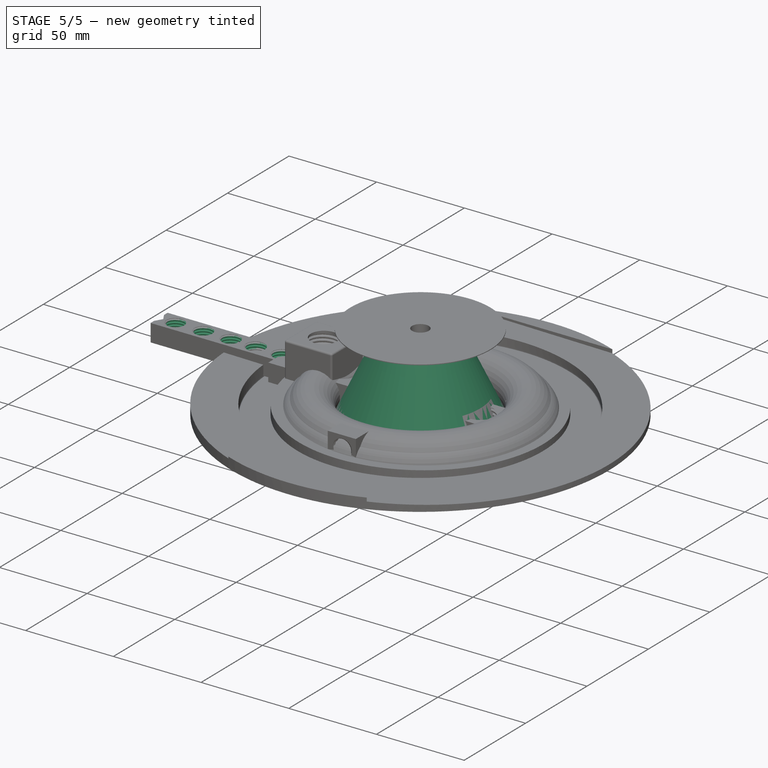
[diagram: stage 5 of 5 — iso view after this stage's code; geometry added in this stage tinted green]
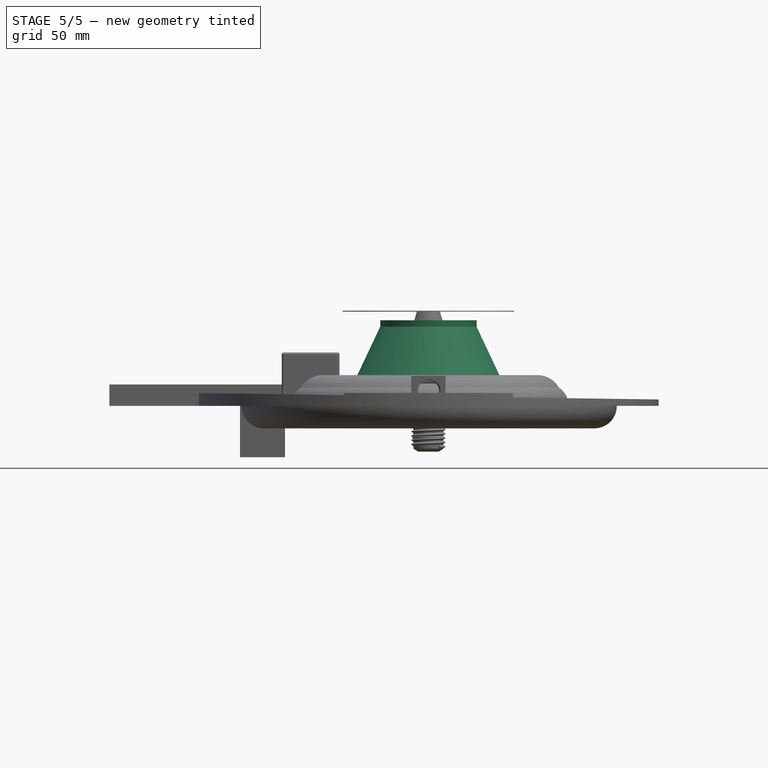
[diagram: stage 5 of 5 — front view after this stage's code; geometry added in this stage tinted green]
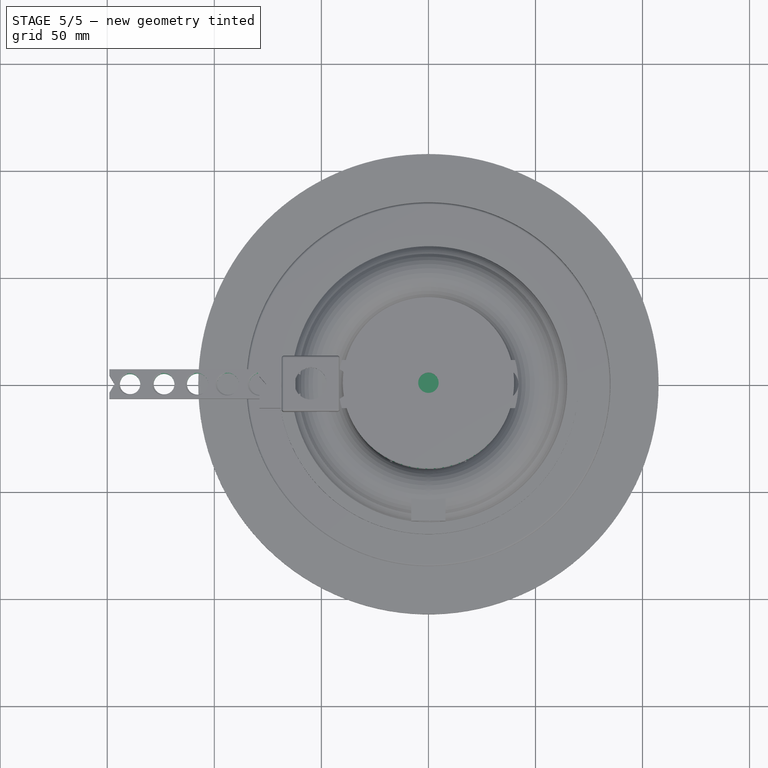
[diagram: stage 5 of 5 — top view after this stage's code; geometry added in this stage tinted green]
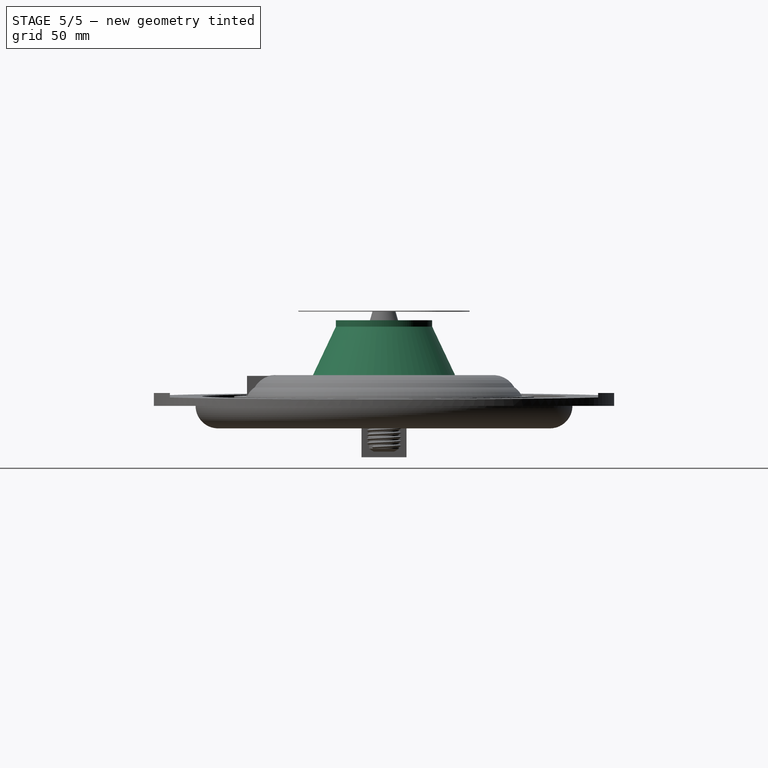
[diagram: stage 5 of 5 — right view after this stage's code; geometry added in this stage tinted green]
FEATURE [Spreadsheet::Sheet] Spreadsheet  label="Parameters"
  PythonMode = false
  ShowCells = 0
  TreeRank = 10
  cells = A1=Wall thickness; B1(Thickness)=3; A3=Reservoir Width; B3(Resevoir_Width)=80; D3=The overall width of the reservoir; A4=Reservoir Height; B4(Resevoir_Height)=40; D4=The overall height of the reservoir; A5=Reservoir Bottom Insert Height; B5(Resevoir_Insert_Height)=20; A6=Reservoir Bottom Insert Diameter; B6(Resevoir_Insert_Diameter)=20; A7=Reservoir Top Minimum Diameter; B7(Resevoir_Top_Min_Diameter)=45; A8=Reservoir Barb Spots; B8(Resevoir_Barb_Slots)=4; D8=How many plants?; A10=1/4" OD Hose Barb Height; B10(Hose_Barb_1_4_Height)=20.5; D10=M10; A11=1/4" OD Hose Barb Inner Dimension; B11(Hose_Barb_1_4_Inner)=4.35; D11=4.75; A12=1/4" OD Hose Barb Lip Diameter; B12(Hose_Barb_1_4_Lip)==Hose_Barb_1_4_Inner + (Hose_Barb_1_4_Outer - Hose_Barb_1_4_Inner) / 3; D12==Hose_Barb_1_4_Inner + (Hose_Barb_1_4_Outer - Hose_Barb_1_4_Inner) / 3; A13=1/4" OD Hose Barb Outer Dimension; B13(Hose_Barb_1_4_Outer)=7; D13=7.4; A14=1/4" OD Hose Barb Thread Length; B14(Hose_Barb_1_4_Thread_Length)=12; D14=12; A15=1/4" OD Hose Barb Thread Clearance; B15(Hose_Barb_1_4_Thread_Clearance)=1.4; D15=0.7; A17=1/2" OD Hose Barb Height; B17(Hose_Barb_1_2_Height)=22.0218; D17=M16; A18=1/2" OD Hose Barb Inner Dimension; B18(Hose_Barb_1_2_Inner)=9.525; A19=1/2" OD Hose Barb Lip Diameter; B19(Hose_Barb_1_2_Lip)==Hose_Barb_1_2_Inner + (Hose_Barb_1_2_Outer - Hose_Barb_1_2_Inner) / 3; A20=1/2" OD Hose Barb Outer Dimension; B20(Hose_Barb_1_2_Outer)=13.335; A21=1/2" OD Hose Barb Thread Length; B21(Hose_Barb_1_2_Thread_Length)==Resevoir_Insert_Height; A22=1/2" OD Hose Barb Thread Clearance; B22(Hose_Barb_1_2_Thread_Clearance)=1; A26=Ring Bubbler Diameter; B26(Ring_Bubbler_Diameter)=80; A27=Ring Bubble Tube Diameter; B27(Ring_Bubbler_Tube_Diameter)=8; A28=Ring Bubble Hole Count; B28(Ring_Bubbler_Hold_Count)=7; D28=Should be odd; A29=Ring Bubble Hole Diameter; B29(Ring_Bubbler_Hold_Diameter)=1.2; A31=Return Inner Diameter; B31(Return_Inner_Diameter)=95; A32=Return Flange Diameter; B32(Return_Flange_Diameter)=45; A33=Return Trough Diameter; B33(Return_Trough_Diameter)=30; A34=Return Through Hole Diameter; B34(Return_Through_Hole_Diameter)=16.5; A35=Return Outer Diameter; B35(Return_Outer_Diameter)==Return_Inner_Diameter + 2 * Return_Flange_Diameter + Return_Trough_Diameter
FEATURE [Sketcher::SketchObject] Sketch005
  ArcFitTolerance = 1e-06
  AttachmentSupport = -> [XZ_Plane001]
  ExternalBSplineMaxDegree = 5
  ExternalBSplineTolerance = 0.0001
  FullyConstrained = true
  InternalTolerance = 1e-06
  InvalidShape = false
  MakeInternals = false
  MapMode = 5
  Placement = pos=(0,0,0) rot=(1,0,0;1.5708rad)
  Support = -> [XZ_Plane001]
  TreeRank = 39
  ValidateShape = true
  expr: Constraints[12] = <<Parameters>>.Resevoir_Width / 2
  expr: Constraints[13] = <<Parameters>>.Resevoir_Insert_Height
  expr: Constraints[14] = <<Parameters>>.Resevoir_Insert_Diameter / 2
  expr: Constraints[15] = max(<<Parameters>>.Resevoir_Width / 4, <<Parameters>>.Resevoir_Top_Min_Diameter / 2)
  expr: Constraints[16] = <<Parameters>>.Thickness
  expr: Constraints[19] = <<Parameters>>.Resevoir_Height
  expr: Constraints[20] = <<Parameters>>.Resevoir_Width / 2 - 2 * <<Parameters>>.Thickness
  expr: Constraints[22] = <<Parameters>>.Thickness
  expr: Constraints[28] = <<Parameters>>.Thickness
  expr: Constraints[29] = (<<Parameters>>.Resevoir_Width / 2 - 2 * <<Parameters>>.Thickness) / 2.5
  sketch-geometry (10):
    g0: LineSegment StartX=0 StartY=0 StartZ=0 EndX=-40 EndY=0 EndZ=0
    g1: LineSegment StartX=0 StartY=0 StartZ=0 EndX=0 EndY=20 EndZ=0
    g2: LineSegment StartX=0 StartY=20 StartZ=0 EndX=-10 EndY=20 EndZ=0
    g3: LineSegment StartX=0 StartY=40 StartZ=0 EndX=-22.5 EndY=40 EndZ=0
    g4: LineSegment StartX=-22.5 StartY=40 StartZ=0 EndX=-22.5 EndY=37 EndZ=0
    g5: LineSegment StartX=0 StartY=40 StartZ=0 EndX=0 EndY=37 EndZ=0
    g6: LineSegment StartX=-40 StartY=0 StartZ=0 EndX=-22.5 EndY=37 EndZ=0
    g7: ArcOfCircle CenterX=3 CenterY=0 CenterZ=0 NormalX=0 NormalY=0 NormalZ=1 AngleXU=0 Radius=37.1214 StartAngle=1.6517 EndAngle=3.06069
    g8: LineSegment StartX=-34 StartY=3 StartZ=0 EndX=-13.6 EndY=3 EndZ=0
    g9: LineSegment StartX=-13.6 StartY=3 StartZ=0 EndX=-10 EndY=20 EndZ=0
  constraints (30):
    c: Coincident(g0,g-1)
    c: PointOnObject(g0,g-1)
    c: Coincident(g1,g0)
    c: PointOnObject(g1,g-2)
    c: Coincident(g2,g1)
    c: Horizontal(g2)
    c: PointOnObject(g3,g-2)
    c: Horizontal(g3)
    c: Coincident(g4,g3)
    c: Vertical(g4)
    c: Coincident(g5,g3)
    c: Vertical(g5)
    c: DistanceX(g0,g0) = 40
    c: DistanceY(g0,g1) = 20
    c: DistanceX(g2,g1) = 10
    c: DistanceX(g3,g3) = 22.5
    c: DistanceY(g5,g3) = 3
    c: Coincident(g6,g0)
    c: Coincident(g6,g4)
    c: DistanceY(g0,g3) = 40
    c: DistanceX(g7,g0) = 34
    c: Coincident(g7,g5)
    c: DistanceY(g4,g3) = 3
    c: PointOnObject(g7,g-1)
    c: Horizontal(g8)
    c: Coincident(g9,g8)
    c: Coincident(g9,g2)
    c: Coincident(g8,g7)
    c: DistanceY(g0,g8) = 3
    c: DistanceX(g8,g0) = 13.6
FEATURE [PartDesign::Revolution] Revolution  label="Reservoir Body"
  AddSubType = 0
  Angle = 360
  Axis = (0,-2e-16,1)
  Base = (0,0,0)
  ClaimChildren = false
  Fit = 0
  FitJoin = 0
  InnerFit = 0
  InnerFitJoin = 0
  InvalidShape = false
  Linearize = true
  NewSolid = false
  Profile = -> Sketch005
  ReferenceAxis = -> Sketch005 [V_Axis]
  Suppress = false
  TreeRank = 40
  ValidateShape = true
  _ProfileBasedVersion = 1
FEATURE [Sketcher::SketchObject] Sketch
  ArcFitTolerance = 1e-06
  AttachmentSupport = -> [XZ_Plane]
  ExternalBSplineMaxDegree = 5
  ExternalBSplineTolerance = 0.0001
  FullyConstrained = false
  InternalTolerance = 1e-06
  InvalidShape = false
  MakeInternals = false
  MapMode = 5
  Placement = pos=(0,0,0) rot=(1,0,0;1.5708rad)
  Support = -> [XZ_Plane]
  TreeRank = 55
  ValidateShape = true
  expr: Constraints[10] = <<Parameters>>.Hose_Barb_1_4_Lip / 2
  expr: Constraints[2] = <<Parameters>>.Hose_Barb_1_4_Height
  expr: Constraints[37] = <<Parameters>>.Hose_Barb_1_4_Height / 5
  expr: Constraints[38] = <<Parameters>>.Hose_Barb_1_4_Height / 5 * 2
  expr: Constraints[39] = <<Parameters>>.Hose_Barb_1_4_Height / 5 * 3
  expr: Constraints[3] = <<Parameters>>.Hose_Barb_1_4_Inner / 2
  expr: Constraints[40] = <<Parameters>>.Hose_Barb_1_4_Height / 5 * 4
  expr: Constraints[5] = <<Parameters>>.Hose_Barb_1_4_Height
  expr: Constraints[6] = <<Parameters>>.Hose_Barb_1_4_Outer / 2
  expr: Constraints[9] = <<Parameters>>.Hose_Barb_1_4_Height
  sketch-geometry (14):
    g0: LineSegment StartX=-2.175 StartY=0 StartZ=0 EndX=-2.175 EndY=20.5 EndZ=0
    g1: LineSegment [constr] StartX=-3.5 StartY=0 StartZ=0 EndX=-3.5 EndY=20.5 EndZ=0
    g2: LineSegment [constr] StartX=-2.61667 StartY=0 StartZ=0 EndX=-2.61667 EndY=20.5 EndZ=0
    g3: LineSegment StartX=-2.175 StartY=20.5 StartZ=0 EndX=-2.61667 EndY=20.5 EndZ=0
    g4: LineSegment StartX=-2.61667 StartY=20.5 StartZ=0 EndX=-3.5 EndY=16.4 EndZ=0
    g5: LineSegment StartX=-3.5 StartY=16.4 StartZ=0 EndX=-2.61667 EndY=16.4 EndZ=0
    g6: LineSegment StartX=-2.61667 StartY=16.4 StartZ=0 EndX=-3.5 EndY=12.3 EndZ=0
    g7: LineSegment StartX=-3.5 StartY=12.3 StartZ=0 EndX=-2.61667 EndY=12.3 EndZ=0
    g8: LineSegment StartX=-2.61667 StartY=12.3 StartZ=0 EndX=-3.5 EndY=8.2 EndZ=0
    g9: LineSegment StartX=-3.5 StartY=8.2 StartZ=0 EndX=-2.61667 EndY=8.2 EndZ=0
    g10: LineSegment StartX=-2.61667 StartY=8.2 StartZ=0 EndX=-3.5 EndY=4.1 EndZ=0
    g11: LineSegment StartX=-3.5 StartY=4.1 StartZ=0 EndX=-2.61667 EndY=4.1 EndZ=0
    g12: LineSegment StartX=-2.61667 StartY=4.1 StartZ=0 EndX=-5.6 EndY=0 EndZ=0
    g13: LineSegment StartX=-5.6 StartY=0 StartZ=0 EndX=-2.175 EndY=0 EndZ=0
  constraints (42):
    c: PointOnObject(g0,g-1)
    c: Vertical(g0)
    c: DistanceY(g0,g0) = 20.5
    c: DistanceX(g0,g-1) = 2.175
    c: Vertical(g1)
    c: DistanceY(g1,g1) = 20.5
    c: DistanceX(g1,g-1) = 3.5
    c: PointOnObject(g2,g-1)
    c: Vertical(g2)
    c: DistanceY(g2,g2) = 20.5
    c: DistanceX(g2,g-1) = 2.61667
    c: Coincident(g3,g0)
    c: Coincident(g3,g2)
    c: Coincident(g4,g3)
    c: PointOnObject(g4,g1)
    c: Coincident(g5,g4)
    c: PointOnObject(g5,g2)
    c: Horizontal(g5)
    c: Coincident(g6,g5)
    c: PointOnObject(g6,g1)
    c: Coincident(g7,g6)
    c: PointOnObject(g7,g2)
    c: Horizontal(g7)
    c: PointOnObject(g8,g1)
    c: Coincident(g9,g8)
    c: PointOnObject(g9,g2)
    c: Horizontal(g9)
    c: Coincident(g10,g9)
    c: PointOnObject(g10,g1)
    c: Coincident(g11,g10)
    c: PointOnObject(g11,g2)
    c: Horizontal(g11)
    c: Coincident(g12,g11)
    c: Coincident(g13,g12)
    c: Coincident(g13,g0)
    c: Horizontal(g13)
    c: Coincident(g8,g7)
    c: DistanceY(g-1,g10) = 4.1
    c: DistanceY(g-1,g8) = 8.2
    c: DistanceY(g-1,g6) = 12.3
    c: DistanceY(g-1,g4) = 16.4
    c: DistanceX(g12,g-1) = 5.6
FEATURE [PartDesign::Revolution] Revolution001
  AddSubType = 0
  Angle = 360
  Axis = (0,-2e-16,1)
  Base = (0,0,0)
  ClaimChildren = false
  Fit = 0
  FitJoin = 0
  InnerFit = 0
  InnerFitJoin = 0
  InvalidShape = false
  Linearize = true
  NewSolid = false
  Profile = -> Sketch
  ReferenceAxis = -> Sketch [V_Axis]
  Suppress = false
  TreeRank = 56
  ValidateShape = true
  _ProfileBasedVersion = 1
FEATURE [Sketcher::SketchObject] Sketch006
  ArcFitTolerance = 1e-06
  ExternalBSplineMaxDegree = 5
  ExternalBSplineTolerance = 0.0001
  FullyConstrained = true
  InternalTolerance = 1e-06
  InvalidShape = false
  MakeInternals = false
  MapMode = 2
  Placement = pos=(0,0,46) rot=(0,0,1;0rad)
  TreeRank = 73
  ValidateShape = true
  expr: Placement.Base.z = <<Parameters>>.Resevoir_Height + 2 * <<Parameters>>.Thickness
  expr: Constraints[1] = <<Parameters>>.Hose_Barb_1_4_Outer
  expr: Constraints[2] = <<Parameters>>.Hose_Barb_1_4_Outer * 2
  sketch-geometry (1):
    g0: Circle CenterX=0 CenterY=14 CenterZ=0 NormalX=0 NormalY=0 NormalZ=1 AngleXU=0 Radius=3.5
  constraints (3):
    c: PointOnObject(g0,g-2)
    c: Diameter(g0) = 7
    c: DistanceY(g-1,g0) = 14
FEATURE [PartDesign::Hole] Hole  label="Top Threaded Hole"
  AddSubType = 1
  BaseFeature = -> Revolution
  ClaimChildren = false
  CustomThreadClearance = 1.4
  Depth = 18
  DepthType = 0
  Diameter = 9.9
  DrillForDepth = false
  DrillPoint = 1
  DrillPointAngle = 118
  Fit = 0
  FitJoin = 0
  HoleCutCountersinkAngle = 90
  HoleCutCustomValues = false
  HoleCutDepth = 0
  HoleCutDiameter = 0
  HoleCutType = 0
  InnerFit = 0
  InnerFitJoin = 0
  InvalidShape = false
  Linearize = true
  ModelThread = true
  NewSolid = false
  Profile = -> Sketch006
  Suppress = false
  Tapered = false
  TaperedAngle = 90
  ThreadClass = 0
  ThreadDepth = 18
  ThreadDepthType = 0
  ThreadDirection = 0
  ThreadFit = 0
  ThreadSize = 18
  ThreadType = 1
  Threaded = true
  TreeRank = 74
  UseCustomThreadClearance = true
  ValidateShape = true
  _ProfileBasedVersion = 1
  expr: CustomThreadClearance = <<Parameters>>.Hose_Barb_1_4_Thread_Clearance
  expr: Depth = <<Parameters>>.Thickness * 6
FEATURE [PartDesign::PolarPattern] PolarPattern  label="Threaded Hole Pattern"
  AddSubType = 0
  Angle = 360
  Axis = -> Sketch006 [N_Axis]
  BaseFeature = -> Hole
  CopyShape = false
  InvalidShape = false
  NewSolid = false
  Occurrences = 4
  OriginalSubs = -> [Hole]
  Originals = -> [Hole]
  ParallelTransform = true
  SubTransform = true
  Suppress = false
  TreeRank = 75
  ValidateShape = true
  _Version = 3
  expr: Occurrences = <<Parameters>>.Resevoir_Barb_Slots
FEATURE [Sketcher::SketchObject] Sketch008
  ArcFitTolerance = 1e-06
  ExternalBSplineMaxDegree = 5
  ExternalBSplineTolerance = 0.0001
  FullyConstrained = false
  InternalTolerance = 1e-06
  InvalidShape = false
  MakeInternals = false
  MapMode = 5
  Placement = pos=(0,0,0) rot=(1,0,0;3.14159rad)
  TreeRank = 78
  ValidateShape = true
  sketch-geometry (1):
    g0: Circle CenterX=0 CenterY=0 CenterZ=0 NormalX=0 NormalY=0 NormalZ=1 AngleXU=0 Radius=9.81587
  constraints (1):
    c: Coincident(g0,g-1)
FEATURE [PartDesign::Hole] Hole001  label="Bottom Threaded Hole"
  AddSubType = 1
  BaseFeature = -> PolarPattern
  ClaimChildren = false
  CustomThreadClearance = 1
  Depth = 23
  DepthType = 0
  Diameter = 15
  DrillForDepth = false
  DrillPoint = 1
  DrillPointAngle = 118
  Fit = 0
  FitJoin = 0
  HoleCutCountersinkAngle = 90
  HoleCutCustomValues = false
  HoleCutDepth = 0
  HoleCutDiameter = 14.14
  HoleCutType = 0
  InnerFit = 0
  InnerFitJoin = 0
  InvalidShape = false
  Linearize = true
  ModelThread = true
  NewSolid = false
  Profile = -> Sketch008
  Suppress = false
  Tapered = false
  TaperedAngle = 90
  ThreadClass = 0
  ThreadDepth = 23
  ThreadDepthType = 0
  ThreadDirection = 0
  ThreadFit = 0
  ThreadSize = 22
  ThreadType = 1
  Threaded = true
  TreeRank = 79
  UseCustomThreadClearance = true
  ValidateShape = true
  _ProfileBasedVersion = 1
  expr: CustomThreadClearance = <<Parameters>>.Hose_Barb_1_2_Thread_Clearance
  expr: Depth = <<Parameters>>.Resevoir_Insert_Height + <<Parameters>>.Thickness
FEATURE [PartDesign::Body] Body001  label="Reservoir"
  AutoGroupSolids = false
  ClaimAllChildren = false
  ExportMode = 0
  Group = -> [Sketch005,Revolution,Sketch006,Hole,PolarPattern,Sketch008,Hole001]
  InvalidShape = false
  Origin = -> Origin001
  Tip = -> Hole001
  TreeRank = 72
  ValidateShape = true
  _ExportChildren = -> [Revolution,Hole,PolarPattern,Hole001]
  _GroupVersion = 1
FEATURE [Sketcher::SketchObject] Sketch010
  ArcFitTolerance = 1e-06
  AttachmentSupport = -> [Revolution001]
  ExternalBSplineMaxDegree = 5
  ExternalBSplineTolerance = 0.0001
  FullyConstrained = false
  InternalTolerance = 1e-06
  InvalidShape = false
  MakeInternals = false
  MapMode = 5
  Placement = pos=(0,0,0) rot=(1,0,0;3.14159rad)
  Support = -> [Revolution001]
  TreeRank = 88
  ValidateShape = true
  sketch-geometry (1):
    g0: Circle CenterX=0 CenterY=0 CenterZ=0 NormalX=0 NormalY=0 NormalZ=1 AngleXU=0 Radius=2.11061
  constraints (1):
    c: Coincident(g0,g-1)
FEATURE [PartDesign::Hole] Hole002
  AddSubType = 0
  BaseFeature = -> Revolution001
  ClaimChildren = false
  CustomThreadClearance = 0
  Depth = 12
  DepthType = 0
  Diameter = 8.532
  DrillForDepth = false
  DrillPoint = 1
  DrillPointAngle = 118
  Fit = 0
  FitJoin = 0
  HoleCutCountersinkAngle = 90
  HoleCutCustomValues = false
  HoleCutDepth = 0
  HoleCutDiameter = 18
  HoleCutType = 0
  InnerFit = 0
  InnerFitJoin = 0
  InvalidShape = false
  Linearize = true
  ModelThread = true
  NewSolid = false
  Profile = -> Sketch010
  Reversed = true
  Suppress = false
  Tapered = false
  TaperedAngle = 90
  ThreadClass = 0
  ThreadDepth = 12
  ThreadDepthType = 0
  ThreadDirection = 0
  ThreadFit = 0
  ThreadSize = 18
  ThreadType = 1
  Threaded = true
  TreeRank = 89
  UseCustomThreadClearance = false
  ValidateShape = true
  _ProfileBasedVersion = 1
  expr: Depth = <<Parameters>>.Hose_Barb_1_4_Thread_Length
FEATURE [Sketcher::SketchObject] Sketch011
  ArcFitTolerance = 1e-06
  AttachmentSupport = -> [Hole002]
  ExternalBSplineMaxDegree = 5
  ExternalBSplineTolerance = 0.0001
  FullyConstrained = true
  InternalTolerance = 1e-06
  InvalidShape = false
  MakeInternals = false
  MapMode = 5
  Support = -> [Hole002]
  TreeRank = 90
  ValidateShape = true
  expr: Constraints[1] = <<Parameters>>.Hose_Barb_1_4_Inner
  sketch-geometry (1):
    g0: Circle CenterX=0 CenterY=0 CenterZ=0 NormalX=0 NormalY=0 NormalZ=1 AngleXU=0 Radius=2.175
  constraints (2):
    c: Coincident(g0,g-1)
    c: Diameter(g0) = 4.35
FEATURE [PartDesign::Pocket] Pocket001
  AddSubType = 1
  AutoTaperInnerAngle = true
  BaseFeature = -> Hole002
  CheckUpToFaceLimits = true
  ClaimChildren = false
  Fit = 0
  FitJoin = 0
  InnerFit = 0
  InnerFitJoin = 0
  InvalidShape = false
  Length = 100
  Length2 = 100
  Linearize = true
  NewSolid = false
  Profile = -> Sketch011
  Suppress = false
  TaperInnerAngle = 0
  TaperInnerAngleRev = 0
  TreeRank = 91
  Type = 4
  ValidateShape = true
  _ProfileBasedVersion = 1
  _Version = 1
FEATURE [Sketcher::SketchObject] Sketch014
  ArcFitTolerance = 1e-06
  AttachmentSupport = -> [Pad]
  ExternalBSplineMaxDegree = 5
  ExternalBSplineTolerance = 0.0001
  FullyConstrained = false
  InternalTolerance = 1e-06
  InvalidShape = false
  MakeInternals = false
  MapMode = 5
  Placement = pos=(0,0,10) rot=(0,0,1;0rad)
  Support = -> [Pad]
  TreeRank = 104
  ValidateShape = true
  sketch-geometry (1):
    g0: Circle CenterX=-139.333 CenterY=0 CenterZ=0 NormalX=0 NormalY=0 NormalZ=1 AngleXU=0 Radius=3.15812
  constraints (1):
    c: PointOnObject(g0,g-1)
FEATURE [PartDesign::Hole] Hole003
  AddSubType = 1
  BaseFeature = -> Pad
  ClaimChildren = false
  CustomThreadClearance = 1
  Depth = 25
  DepthType = 0
  Diameter = 9.5
  DrillForDepth = false
  DrillPoint = 1
  DrillPointAngle = 118
  Fit = 0
  FitJoin = 0
  HoleCutCountersinkAngle = 90
  HoleCutCustomValues = false
  HoleCutDepth = 0
  HoleCutDiameter = 0
  HoleCutType = 0
  InnerFit = 0
  InnerFitJoin = 0
  InvalidShape = false
  Linearize = true
  ModelThread = true
  NewSolid = false
  Profile = -> Sketch014
  Suppress = false
  Tapered = false
  TaperedAngle = 90
  ThreadClass = 0
  ThreadDepth = 25
  ThreadDepthType = 0
  ThreadDirection = 0
  ThreadFit = 0
  ThreadSize = 18
  ThreadType = 1
  Threaded = true
  TreeRank = 105
  UseCustomThreadClearance = true
  ValidateShape = true
  _ProfileBasedVersion = 1
FEATURE [Sketcher::SketchObject] Sketch015
  ArcFitTolerance = 1e-06
  AttachmentSupport = -> [Hole003]
  ExternalBSplineMaxDegree = 5
  ExternalBSplineTolerance = 0.0001
  FullyConstrained = false
  InternalTolerance = 1e-06
  InvalidShape = false
  MakeInternals = false
  MapMode = 5
  Placement = pos=(0,0,10) rot=(0,0,1;0rad)
  Support = -> [Hole003]
  TreeRank = 106
  ValidateShape = true
  sketch-geometry (1):
    g0: Circle CenterX=-123.459 CenterY=0 CenterZ=0 NormalX=0 NormalY=0 NormalZ=1 AngleXU=0 Radius=3.09565
  constraints (1):
    c: PointOnObject(g0,g-1)
FEATURE [PartDesign::Hole] Hole004
  AddSubType = 1
  BaseFeature = -> Hole003
  ClaimChildren = false
  CustomThreadClearance = 1.2
  Depth = 25
  DepthType = 0
  Diameter = 9.7
  DrillForDepth = false
  DrillPoint = 1
  DrillPointAngle = 118
  Fit = 0
  FitJoin = 0
  HoleCutCountersinkAngle = 90
  HoleCutCustomValues = false
  HoleCutDepth = 0
  HoleCutDiameter = 8.8
  HoleCutType = 0
  InnerFit = 0
  InnerFitJoin = 0
  InvalidShape = false
  Linearize = true
  ModelThread = true
  NewSolid = false
  Profile = -> Sketch015
  Suppress = false
  Tapered = false
  TaperedAngle = 90
  ThreadClass = 0
  ThreadDepth = 25
  ThreadDepthType = 0
  ThreadDirection = 0
  ThreadFit = 0
  ThreadSize = 18
  ThreadType = 1
  Threaded = true
  TreeRank = 107
  UseCustomThreadClearance = true
  ValidateShape = true
  _ProfileBasedVersion = 1
FEATURE [Sketcher::SketchObject] Sketch016
  ArcFitTolerance = 1e-06
  AttachmentSupport = -> [Hole004]
  ExternalBSplineMaxDegree = 5
  ExternalBSplineTolerance = 0.0001
  FullyConstrained = false
  InternalTolerance = 1e-06
  InvalidShape = false
  MakeInternals = false
  MapMode = 5
  Placement = pos=(0,0,10) rot=(0,0,1;0rad)
  Support = -> [Hole004]
  TreeRank = 108
  ValidateShape = true
  sketch-geometry (1):
    g0: Circle CenterX=-107.821 CenterY=0 CenterZ=0 NormalX=0 NormalY=0 NormalZ=1 AngleXU=0 Radius=3.97883
  constraints (1):
    c: PointOnObject(g0,g-1)
FEATURE [PartDesign::Hole] Hole005
  AddSubType = 1
  BaseFeature = -> Hole004
  ClaimChildren = false
  CustomThreadClearance = 1.4
  Depth = 25
  DepthType = 0
  Diameter = 9.9
  DrillForDepth = false
  DrillPoint = 1
  DrillPointAngle = 118
  Fit = 0
  FitJoin = 0
  HoleCutCountersinkAngle = 90
  HoleCutCustomValues = false
  HoleCutDepth = 0
  HoleCutDiameter = 9
  HoleCutType = 0
  InnerFit = 0
  InnerFitJoin = 0
  InvalidShape = false
  Linearize = true
  ModelThread = true
  NewSolid = false
  Profile = -> Sketch016
  Suppress = false
  Tapered = false
  TaperedAngle = 90
  ThreadClass = 0
  ThreadDepth = 25
  ThreadDepthType = 0
  ThreadDirection = 0
  ThreadFit = 0
  ThreadSize = 18
  ThreadType = 1
  Threaded = true
  TreeRank = 109
  UseCustomThreadClearance = true
  ValidateShape = true
  _ProfileBasedVersion = 1
FEATURE [Sketcher::SketchObject] Sketch017
  ArcFitTolerance = 1e-06
  AttachmentSupport = -> [Hole005]
  ExternalBSplineMaxDegree = 5
  ExternalBSplineTolerance = 0.0001
  FullyConstrained = false
  InternalTolerance = 1e-06
  InvalidShape = false
  MakeInternals = false
  MapMode = 5
  Placement = pos=(0,0,10) rot=(0,0,1;0rad)
  Support = -> [Hole005]
  TreeRank = 110
  ValidateShape = true
  sketch-geometry (1):
    g0: Circle CenterX=-93.591 CenterY=0 CenterZ=0 NormalX=0 NormalY=0 NormalZ=1 AngleXU=0 Radius=4.10681
  constraints (1):
    c: PointOnObject(g0,g-1)
FEATURE [PartDesign::Hole] Hole006
  AddSubType = 1
  BaseFeature = -> Hole005
  ClaimChildren = false
  CustomThreadClearance = 1.6
  Depth = 25
  DepthType = 0
  Diameter = 10.1
  DrillForDepth = false
  DrillPoint = 1
  DrillPointAngle = 118
  Fit = 0
  FitJoin = 0
  HoleCutCountersinkAngle = 90
  HoleCutCustomValues = false
  HoleCutDepth = 0
  HoleCutDiameter = 9.2
  HoleCutType = 0
  InnerFit = 0
  InnerFitJoin = 0
  InvalidShape = false
  Linearize = true
  ModelThread = true
  NewSolid = false
  Profile = -> Sketch017
  Suppress = false
  Tapered = false
  TaperedAngle = 90
  ThreadClass = 0
  ThreadDepth = 25
  ThreadDepthType = 0
  ThreadDirection = 0
  ThreadFit = 0
  ThreadSize = 18
  ThreadType = 1
  Threaded = true
  TreeRank = 111
  UseCustomThreadClearance = true
  ValidateShape = true
  _ProfileBasedVersion = 1
FEATURE [Sketcher::SketchObject] Sketch018
  ArcFitTolerance = 1e-06
  AttachmentSupport = -> [Hole006]
  ExternalBSplineMaxDegree = 5
  ExternalBSplineTolerance = 0.0001
  FullyConstrained = false
  InternalTolerance = 1e-06
  InvalidShape = false
  MakeInternals = false
  MapMode = 5
  Placement = pos=(0,0,10) rot=(0,0,1;0rad)
  Support = -> [Hole006]
  TreeRank = 112
  ValidateShape = true
  sketch-geometry (1):
    g0: Circle CenterX=-78.516 CenterY=0 CenterZ=0 NormalX=0 NormalY=0 NormalZ=1 AngleXU=0 Radius=4.77086
  constraints (1):
    c: PointOnObject(g0,g-1)
FEATURE [PartDesign::Hole] Hole007
  AddSubType = 1
  BaseFeature = -> Hole006
  ClaimChildren = false
  CustomThreadClearance = 1.8
  Depth = 25
  DepthType = 0
  Diameter = 10.3
  DrillForDepth = false
  DrillPoint = 1
  DrillPointAngle = 118
  Fit = 0
  FitJoin = 0
  HoleCutCountersinkAngle = 90
  HoleCutCustomValues = false
  HoleCutDepth = 0
  HoleCutDiameter = 9.4
  HoleCutType = 0
  InnerFit = 0
  InnerFitJoin = 0
  InvalidShape = false
  Linearize = true
  ModelThread = true
  NewSolid = false
  Profile = -> Sketch018
  Suppress = false
  Tapered = false
  TaperedAngle = 90
  ThreadClass = 0
  ThreadDepth = 25
  ThreadDepthType = 0
  ThreadDirection = 0
  ThreadFit = 0
  ThreadSize = 18
  ThreadType = 1
  Threaded = true
  TreeRank = 113
  UseCustomThreadClearance = true
  ValidateShape = true
  _ProfileBasedVersion = 1
FEATURE [Sketcher::SketchObject] Sketch019
  ArcFitTolerance = 1e-06
  AttachmentSupport = -> [Hole007]
  ExternalBSplineMaxDegree = 5
  ExternalBSplineTolerance = 0.0001
  FullyConstrained = false
  InternalTolerance = 1e-06
  InvalidShape = false
  MakeInternals = false
  MapMode = 5
  Placement = pos=(0,0,10) rot=(0,0,1;0rad)
  Support = -> [Hole007]
  TreeRank = 114
  ValidateShape = true
  sketch-geometry (1):
    g0: Circle CenterX=-62.8775 CenterY=0 CenterZ=0 NormalX=0 NormalY=0 NormalZ=1 AngleXU=0 Radius=4.55022
  constraints (1):
    c: PointOnObject(g0,g-1)
FEATURE [PartDesign::Hole] Hole008
  AddSubType = 1
  BaseFeature = -> Hole007
  ClaimChildren = false
  CustomThreadClearance = 2
  Depth = 25
  DepthType = 0
  Diameter = 10.5
  DrillForDepth = false
  DrillPoint = 1
  DrillPointAngle = 118
  Fit = 0
  FitJoin = 0
  HoleCutCountersinkAngle = 90
  HoleCutCustomValues = false
  HoleCutDepth = 0
  HoleCutDiameter = 9.6
  HoleCutType = 0
  InnerFit = 0
  InnerFitJoin = 0
  InvalidShape = false
  Linearize = true
  ModelThread = true
  NewSolid = false
  Profile = -> Sketch019
  Suppress = false
  Tapered = false
  TaperedAngle = 90
  ThreadClass = 0
  ThreadDepth = 25
  ThreadDepthType = 0
  ThreadDirection = 0
  ThreadFit = 0
  ThreadSize = 18
  ThreadType = 1
  Threaded = true
  TreeRank = 115
  UseCustomThreadClearance = true
  ValidateShape = true
  _ProfileBasedVersion = 1
FEATURE [Sketcher::SketchObject] Sketch020
  ArcFitTolerance = 1e-06
  AttachmentSupport = -> [Sketch018]
  ExternalBSplineMaxDegree = 5
  ExternalBSplineTolerance = 0.0001
  FullyConstrained = false
  InternalTolerance = 1e-06
  InvalidShape = false
  MakeInternals = false
  MapMode = 5
  Placement = pos=(0,0,10) rot=(0,0,1;0rad)
  Support = -> [Sketch018]
  TreeRank = 116
  ValidateShape = true
  sketch-geometry (4):
    g0: LineSegment StartX=-54.5889 StartY=40.5538 StartZ=0 EndX=172.731 EndY=40.5538 EndZ=0
    g1: LineSegment StartX=172.731 StartY=40.5538 StartZ=0 EndX=172.731 EndY=-37.1894 EndZ=0
    g2: LineSegment StartX=172.731 StartY=-37.1894 StartZ=0 EndX=-54.5889 EndY=-37.1894 EndZ=0
    g3: LineSegment StartX=-54.5889 StartY=-37.1894 StartZ=0 EndX=-54.5889 EndY=40.5538 EndZ=0
  constraints (8):
    c: Coincident(g0,g1)
    c: Coincident(g1,g2)
    c: Coincident(g2,g3)
    c: Coincident(g3,g0)
    c: Horizontal(g0)
    c: Horizontal(g2)
    c: Vertical(g1)
    c: Vertical(g3)
FEATURE [PartDesign::Pocket] Pocket002
  AddSubType = 1
  AutoTaperInnerAngle = true
  BaseFeature = -> Hole008
  CheckUpToFaceLimits = true
  ClaimChildren = false
  Fit = 0
  FitJoin = 0
  InnerFit = 0
  InnerFitJoin = 0
  InvalidShape = false
  Length = 100
  Length2 = 100
  Linearize = true
  NewSolid = false
  Profile = -> Sketch020
  Suppress = false
  TaperInnerAngle = 0
  TaperInnerAngleRev = 0
  TreeRank = 117
  Type = 4
  ValidateShape = true
  _ProfileBasedVersion = 1
  _Version = 1
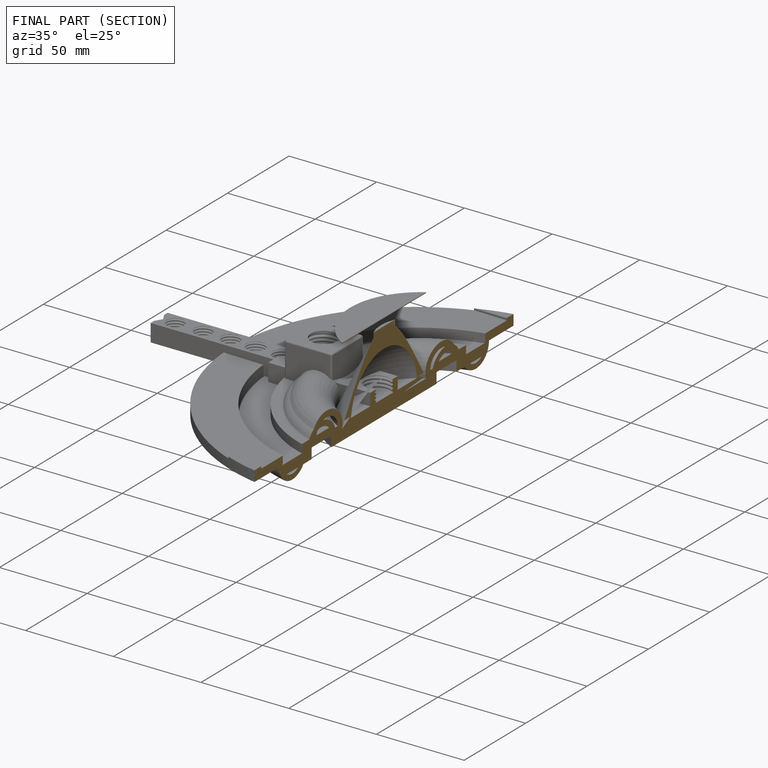
[diagram: finished part — half-section view (interior)]
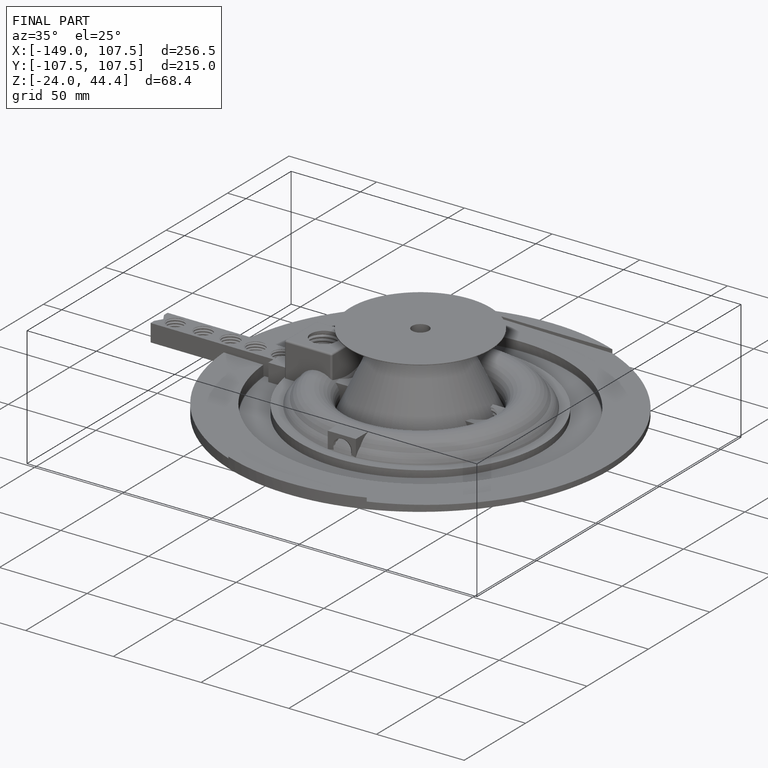
[diagram: finished part — iso view with bounding-box wireframe]
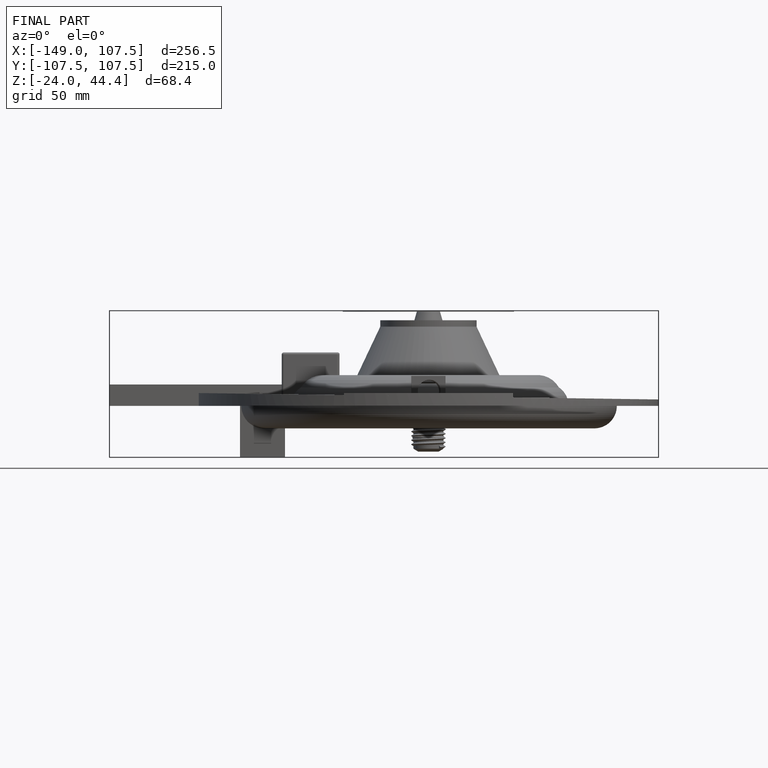
[diagram: finished part — front view with bounding-box wireframe]
